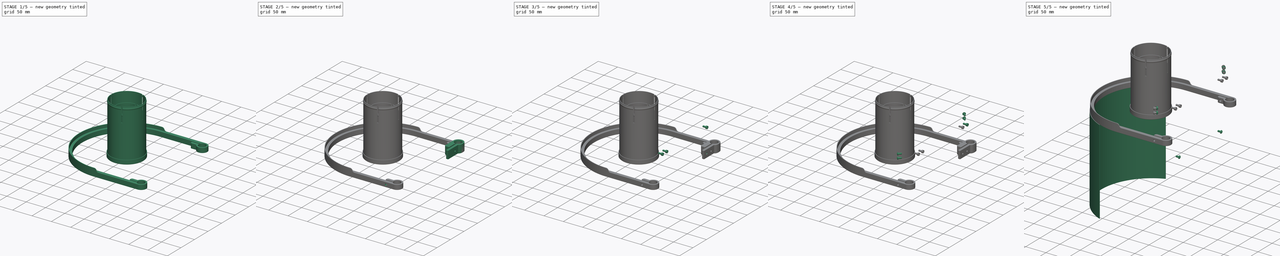
[diagram: build sequence overview — one tinted view per stage of 5, left to right]
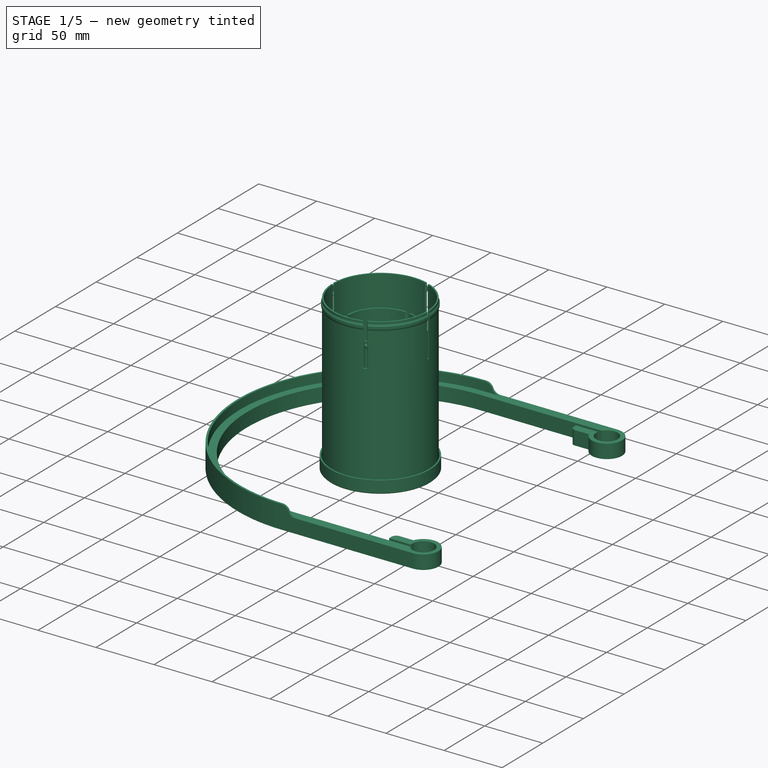
[diagram: stage 1 of 5 — iso view after this stage's code; geometry added in this stage tinted green]
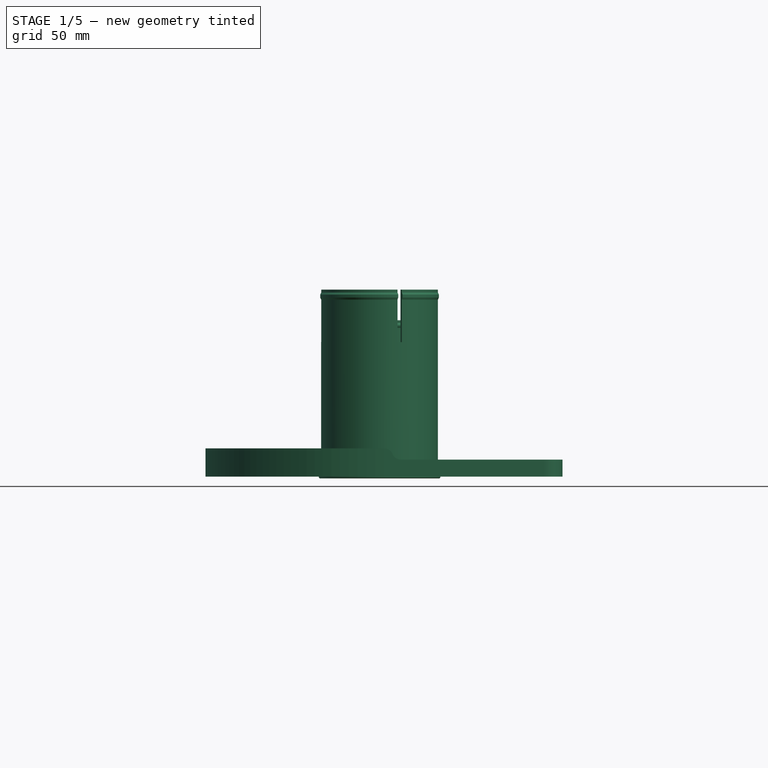
[diagram: stage 1 of 5 — front view after this stage's code; geometry added in this stage tinted green]
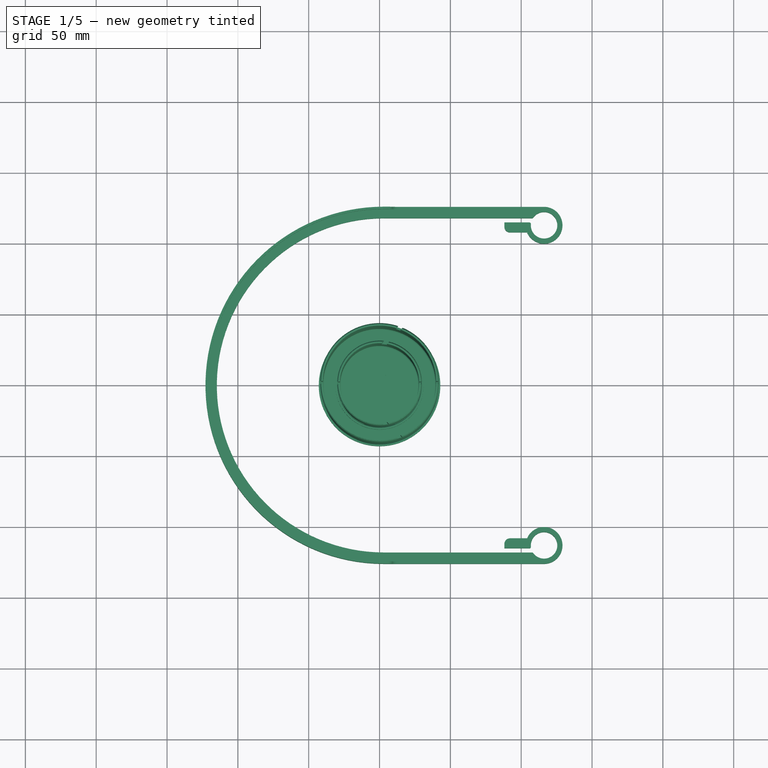
[diagram: stage 1 of 5 — top view after this stage's code; geometry added in this stage tinted green]
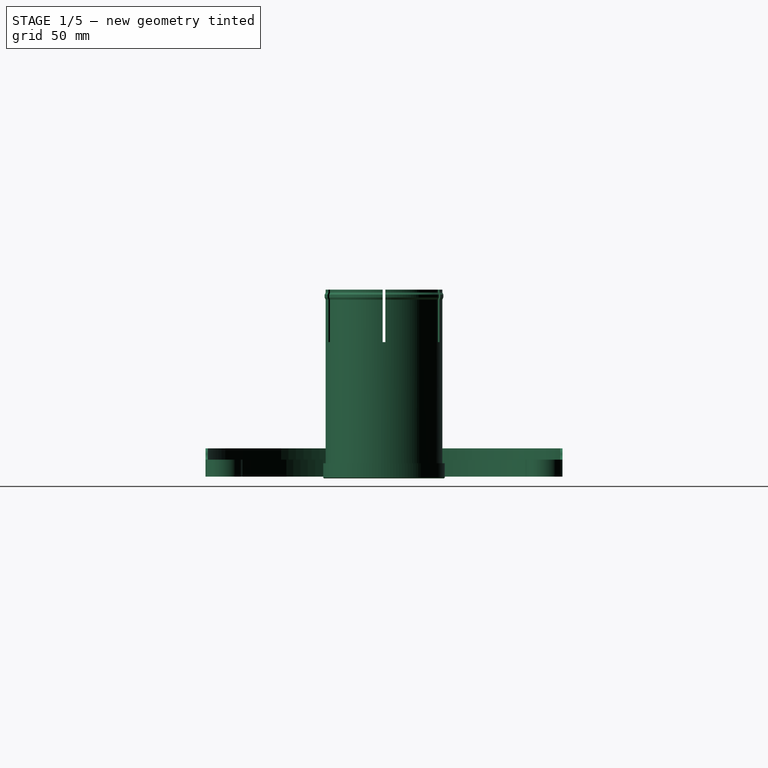
[diagram: stage 1 of 5 — right view after this stage's code; geometry added in this stage tinted green]
FCSTD DOCUMENT  (FreeCAD 0.21RUnknown)
Label: Secondary
License: All rights reserved
LicenseURL: http://en.wikipedia.org/wiki/All_rights_reserved
objects: PartDesign::CoordinateSystem×29, Sketcher::SketchObject×28, Part::FeaturePython×26, App::Link×24, PartDesign::Body×10, PartDesign::Pad×8, App::DocumentObjectGroup×7, PartDesign::ShapeBinder×7, PartDesign::Hole×6, PartDesign::Pocket×6, PartDesign::Plane×5, PartDesign::Revolution×4, PartDesign::Chamfer×3, PartDesign::Line×2, PartDesign::Groove×2, PartDesign::SubShapeBinder×1, PartDesign::Mirrored×1, App::FeaturePython×1, App::Part×1, Part::Extrusion×1
note: 168 computed .brp shape members not serialized (recipe doc carries the construction recipe); baked Part::Feature solids carry a one-line shape summary decoded from their .brp
EXTERNAL_REF file=Common.FCStd obj=Spreadsheet
EXTERNAL_REF file=Common.FCStd obj=Body022062
EXTERNAL_REF file=SecondaryMirrorCell.FCStd obj=LCS_Origin
EXTERNAL_REF file=SecondaryMirrorCell.FCStd obj=Assembly
EXTERNAL_REF file=Focuser.FCStd obj=LCS_Origin
EXTERNAL_REF file=Focuser.FCStd obj=Assembly
EXTERNAL_REF file=Focuser.FCStd obj=LCS_FocuserPlate_ZA
EXTERNAL_REF file=SecondaryMirrorCell.FCStd obj=LCS_Spider_AZ
EXTERNAL_REF file=Focuser.FCStd obj=LCS_FocuserPlate_NA
EXTERNAL_REF file=Focuser.FCStd obj=LCS_FocuserPlate_ZF
EXTERNAL_REF file=SecondaryMirrorCell.FCStd obj=LCS_Spider_FZ
EXTERNAL_REF file=Focuser.FCStd obj=LCS_FocuserPlate_NF
EXTERNAL_REF file=Common.FCStd obj=Local_CS318
EXTERNAL_REF file=Common.FCStd obj=Body022061
EXTERNAL_REF file=Common.FCStd obj=Local_CS237
EXTERNAL_REF file=Common.FCStd obj=Body005

FEATURE [PartDesign::CoordinateSystem] Local_CS270  label="LCS_LowerSideNut"
  AttacherType = Attacher::AttachEngine3D
  MapMode = 11
  Placement = pos=(118.125,74,10) rot=(0.57735,0.57735,-0.57735;4.18879rad)
  Support = -> [Hole054]
FEATURE [PartDesign::CoordinateSystem] Local_CS271  label="LCS_LowerSideBolt"
  AttacherType = Attacher::AttachEngine3D
  AttachmentOffset = pos=(0,0,1) rot=(0,0,1;0rad)
  MapMode = 11
  Placement = pos=(125.125,74,10) rot=(0.57735,-0.57735,0.57735;4.18879rad)
  Support = -> [Hole054]
  expr: .AttachmentOffset.Base.z = <<Common>>#<<Parameters>>.sec_spthick
FEATURE [PartDesign::CoordinateSystem] Local_CS272  label="LCS_LowerClampNut"
  AttacherType = Attacher::AttachEngine3D
  MapMode = 11
  Placement = pos=(103.125,90,10) rot=(0.57735,0.57735,-0.57735;4.18879rad)
  Support = -> [Hole054]
FEATURE [PartDesign::CoordinateSystem] Local_CS273  label="LCS_LowerClampBolt"
  AttacherType = Attacher::AttachEngine3D
  AttachmentOffset = pos=(0,0,1) rot=(0,0,1;0rad)
  MapMode = 11
  Placement = pos=(125.125,90,10) rot=(0.57735,-0.57735,0.57735;4.18879rad)
  Support = -> [Hole054]
  expr: .AttachmentOffset.Base.z = <<Common>>#<<Parameters>>.sec_spthick
FEATURE [PartDesign::CoordinateSystem] Local_CS274  label="LCS_LowerClamp_SidePlate"
  AttacherType = Attacher::AttachEngine3D
  AttachmentOffset = pos=(0,0,0) rot=(0,0,1;3.14159rad)
  MapMode = 11
  Placement = pos=(124.125,90,10) rot=(-0.57735,-0.57735,-0.57735;4.18879rad)
  Support = -> [Hole054]
FEATURE [PartDesign::ShapeBinder] ShapeBinder  label="UpperArc_ShapeBinder"
  Support = -> [Binder]
  TraceSupport = false
FEATURE [Sketcher::SketchObject] Sketch297  label="UpperArc_Base_Sketch"
  ExternalGeometry = -> [ShapeBinder]
  FullyConstrained = true
  MapMode = 5
  Support = -> [XY_Plane104]
  expr: Constraints[18] = <<Common>>#<<Parameters>>.sec_fillet * 2
  expr: Constraints[19] = <<Common>>#<<Parameters>>.sec_fthick
  expr: Constraints[55] = <<Common>>#<<Parameters>>.sec_sidebolt * 4
  expr: Constraints[60] = <<Common>>#<<Parameters>>.sec_fthick
  expr: Constraints[63] = <<Common>>#<<Parameters>>.sec_toparc_width
  expr: Constraints[68] = <<Common>>#<<Parameters>>.sec_fthick
  sketch-geometry (29):
    g0: LineSegment StartX=3.125 StartY=126 StartZ=0 EndX=116.125 EndY=126 EndZ=0
    g1: LineSegment StartX=3.125 StartY=118 StartZ=0 EndX=107.692 EndY=118 EndZ=0
    g2: ArcOfCircle CenterX=116.125 CenterY=113 CenterZ=0 NormalX=0 NormalY=0 NormalZ=1 AngleXU=0 Radius=13 StartAngle=3.53638 EndAngle=7.85398
    g3: ArcOfCircle CenterX=116.125 CenterY=113 CenterZ=0 NormalX=0 NormalY=0 NormalZ=1 AngleXU=0 Radius=9.35 StartAngle=3.04482 EndAngle=8.80641
    g4: LineSegment StartX=116.125 StartY=113 StartZ=0 EndX=116.125 EndY=126 EndZ=0
    g5: LineSegment StartX=105.823 StartY=115 StartZ=0 EndX=88.125 EndY=115 EndZ=0
    g6: LineSegment StartX=88.125 StartY=115 StartZ=0 EndX=88.125 EndY=112 EndZ=0
    g7: LineSegment StartX=104.125 StartY=108 StartZ=0 EndX=92.125 EndY=108 EndZ=0
    g8: ArcOfCircle CenterX=92.125 CenterY=112 CenterZ=0 NormalX=0 NormalY=0 NormalZ=1 AngleXU=0 Radius=4 StartAngle=3.14159 EndAngle=4.71239
    g9: LineSegment StartX=88.125 StartY=112 StartZ=0 EndX=92.125 EndY=112 EndZ=0
    g10: LineSegment StartX=92.125 StartY=112 StartZ=0 EndX=92.125 EndY=108 EndZ=0
    g11: LineSegment StartX=3.125 StartY=-126 StartZ=0 EndX=3.125 EndY=126 EndZ=0
    g12: ArcOfCircle CenterX=3.125 CenterY=-3.7e-15 CenterZ=0 NormalX=0 NormalY=0 NormalZ=1 AngleXU=0 Radius=126 StartAngle=1.5708 EndAngle=4.71239
    g13: ArcOfCircle CenterX=3.125 CenterY=-3.7e-15 CenterZ=0 NormalX=0 NormalY=0 NormalZ=1 AngleXU=0 Radius=118 StartAngle=1.5708 EndAngle=4.71239
    g14: ArcOfCircle CenterX=116.125 CenterY=-113 CenterZ=0 NormalX=0 NormalY=0 NormalZ=1 AngleXU=0 Radius=9.35 StartAngle=3.75997 EndAngle=9.52155
    g15: ArcOfCircle CenterX=116.125 CenterY=-113 CenterZ=0 NormalX=0 NormalY=0 NormalZ=1 AngleXU=0 Radius=13 StartAngle=4.71239 EndAngle=9.02999
    g16: LineSegment StartX=3.125 StartY=-126 StartZ=0 EndX=116.125 EndY=-126 EndZ=0
    g17: LineSegment StartX=116.125 StartY=-126 StartZ=0 EndX=116.125 EndY=-113 EndZ=0
    g18: LineSegment StartX=3.125 StartY=-118 StartZ=0 EndX=107.692 EndY=-118 EndZ=0
    g19: LineSegment StartX=104.125 StartY=-108 StartZ=0 EndX=92.125 EndY=-108 EndZ=0
    g20: LineSegment StartX=105.823 StartY=-115 StartZ=0 EndX=88.125 EndY=-115 EndZ=0
    g21: LineSegment StartX=88.125 StartY=-115 StartZ=0 EndX=88.125 EndY=-112 EndZ=0
    g22: ArcOfCircle CenterX=92.125 CenterY=-112 CenterZ=0 NormalX=0 NormalY=0 NormalZ=1 AngleXU=0 Radius=4 StartAngle=1.5708 EndAngle=3.14159
    g23: LineSegment StartX=88.125 StartY=-112 StartZ=0 EndX=92.125 EndY=-112 EndZ=0
    g24: LineSegment StartX=92.125 StartY=-108 StartZ=0 EndX=92.125 EndY=-112 EndZ=0
    g25: ArcOfCircle CenterX=107.692 CenterY=119 CenterZ=0 NormalX=0 NormalY=0 NormalZ=1 AngleXU=0 Radius=1 StartAngle=4.71239 EndAngle=5.66481
    g26: ArcOfCircle CenterX=105.823 CenterY=114 CenterZ=0 NormalX=0 NormalY=0 NormalZ=1 AngleXU=0 Radius=1 StartAngle=6.18642 EndAngle=7.85398
    g27: ArcOfCircle CenterX=105.823 CenterY=-114 CenterZ=0 NormalX=0 NormalY=0 NormalZ=1 AngleXU=0 Radius=1 StartAngle=4.71239 EndAngle=6.37995
    g28: ArcOfCircle CenterX=107.692 CenterY=-119 CenterZ=0 NormalX=0 NormalY=0 NormalZ=1 AngleXU=0 Radius=1 StartAngle=0.618373 EndAngle=1.5708
  constraints (78):
    c: Horizontal(g0)
    c: Horizontal(g1)
    c: Coincident(g3,g2)
    c: Coincident(g4,g2)
    c: Vertical(g4)
    c: Horizontal(g5)
    c: Coincident(g6,g5)
    c: Vertical(g6)
    c: Coincident(g7,g2)
    c: Horizontal(g7)
    c: Coincident(g8,g6)
    c: Coincident(g8,g7)
    c: Coincident(g9,g6)
    c: Coincident(g9,g8)
    c: Coincident(g10,g8)
    c: Coincident(g10,g7)
    c: Vertical(g10)
    c: Horizontal(g9)
    c: Radius(g8) = 4
    c: DistanceY(g6,g6) = 3
    c: Coincident(g4,g0)
    c: Coincident(g2,g0)
    c: Vertical(g11)
    c: Coincident(g11,g0)
    c: PointOnObject(g1,g11)
    c: Coincident(g12,g0)
    c: Coincident(g13,g1)
    c: Coincident(g13,g12)
    c: PointOnObject(g12,g11)
    c: Coincident(g11,g12)
    c: PointOnObject(g13,g11)
    c: Coincident(g15,g14)
    c: Coincident(g16,g12)
    c: Horizontal(g16)
    c: Coincident(g15,g16)
    c: Coincident(g17,g15)
    c: Coincident(g17,g14)
    c: Coincident(g18,g13)
    c: Horizontal(g18)
    c: Coincident(g19,g15)
    c: Horizontal(g19)
    c: Horizontal(g20)
    c: Coincident(g21,g20)
    c: Vertical(g21)
    c: Coincident(g22,g21)
    c: Coincident(g22,g19)
    c: Equal(g8,g22)
    c: Equal(g21,g6)
    c: Equal(g20,g5)
    c: Coincident(g23,g21)
    c: Coincident(g23,g22)
    c: Coincident(g24,g19)
    c: Coincident(g24,g22)
    c: Vertical(g24)
    c: Horizontal(g23)
    c: DistanceX(g6,g2) = 16
    c: Tangent(g3,g25) = 1.5708
    c: Tangent(g1,g25) = -1.5708
    c: Tangent(g5,g26) = -1.5708
    c: Tangent(g3,g26) = 1.5708
    c: DistanceY(g5,g1) = 3
    c: Equal(g26,g25)
    c: Radius(g26) = 1
    c: DistanceY(g1,g0) = 8
    c: Tangent(g20,g27) = 1.5708
    c: Tangent(g14,g27) = 1.5708
    c: Tangent(g18,g28) = 1.5708
    c: Tangent(g14,g28) = 1.5708
    c: DistanceY(g18,g20) = 3
    c: Equal(g27,g28)
    c: Equal(g27,g26)
    c: Coincident(g12,g-3)
    c: Coincident(g2,g-5)
    c: PointOnObject(g3,g-4)
    c: PointOnObject(g0,g-5)
    c: PointOnObject(g14,g-6)
    c: PointOnObject(g15,g-7)
    c: Coincident(g14,g-7)
FEATURE [Sketcher::SketchObject] Sketch298  label="UpperArc_ClampHole_Sketch"
  ExternalGeometry = -> [Sketch297]
  FullyConstrained = true
  MapMode = 5
  Placement = pos=(0,108,0) rot=(1,0,0;1.5708rad)
  expr: Constraints[0] = <<Common>>#<<Parameters>>.sec_sidebolt * 1.1
  expr: Constraints[1] = <<Common>>#<<Parameters>>.sec_toparc_height / 2
  expr: Constraints[2] = <<Common>>#<<Parameters>>.sec_sidebolt * 2
  sketch-geometry (1):
    g0: Circle CenterX=96.125 CenterY=6 CenterZ=0 NormalX=0 NormalY=0 NormalZ=1 AngleXU=0 Radius=2.2
  constraints (3):
    c: Diameter(g0) = 4.4
    c: DistanceY(g0) = 6
    c: DistanceX(g-3,g0) = 8
FEATURE [Sketcher::SketchObject] Sketch299  label="UpperArc_Tab_Sketch"
  AttachmentOffset = pos=(0,0,12) rot=(0,0,1;0rad)
  ExternalGeometry = -> [ShapeBinder]
  FullyConstrained = true
  MapMode = 5
  Placement = pos=(0,0,12) rot=(0,0,1;0rad)
  Support = -> [XY_Plane104]
  expr: .AttachmentOffset.Base.z = <<Common>>#<<Parameters>>.sec_toparc_height
  expr: Constraints[9] = <<Common>>#<<Parameters>>.sec_sidebolt * 3
  sketch-geometry (10):
    g0: ArcOfCircle CenterX=3.125 CenterY=-3.7e-15 CenterZ=0 NormalX=0 NormalY=0 NormalZ=1 AngleXU=0 Radius=126 StartAngle=1.5708 EndAngle=4.71239
    g1: ArcOfCircle CenterX=3.125 CenterY=-3.7e-15 CenterZ=0 NormalX=0 NormalY=0 NormalZ=1 AngleXU=0 Radius=124.4 StartAngle=1.5708 EndAngle=4.71239
    g2: LineSegment StartX=3.125 StartY=126 StartZ=0 EndX=15.125 EndY=126 EndZ=0
    g3: LineSegment StartX=15.125 StartY=126 StartZ=0 EndX=15.125 EndY=124.4 EndZ=0
    g4: LineSegment StartX=15.125 StartY=124.4 StartZ=0 EndX=3.125 EndY=124.4 EndZ=0
    g5: GeomPoint X=-122.875 Y=0 Z=0
    g6: LineSegment StartX=3.125 StartY=126 StartZ=0 EndX=3.125 EndY=-126 EndZ=0
    g7: LineSegment StartX=3.125 StartY=-124.4 StartZ=0 EndX=15.125 EndY=-124.4 EndZ=0
    g8: LineSegment StartX=15.125 StartY=-124.4 StartZ=0 EndX=15.125 EndY=-126 EndZ=0
    g9: LineSegment StartX=15.125 StartY=-126 StartZ=0 EndX=3.125 EndY=-126 EndZ=0
  constraints (28):
    c: Coincident(g1,g0)
    c: DistanceY(g1,g0) = 1.6
    c: Coincident(g2,g0)
    c: Horizontal(g2)
    c: Coincident(g3,g2)
    c: Vertical(g3)
    c: Coincident(g4,g3)
    c: Coincident(g4,g1)
    c: Horizontal(g4)
    c: DistanceX(g2,g2) = 12
    c: PointOnObject(g5,g-1)
    c: PointOnObject(g5,g0)
    c: Coincident(g6,g0)
    c: Vertical(g6)
    c: PointOnObject(g1,g6)
    c: PointOnObject(g1,g6)
    c: Coincident(g0,g6)
    c: PointOnObject(g0,g6)
    c: Coincident(g7,g1)
    c: Horizontal(g7)
    c: Coincident(g8,g7)
    c: Vertical(g8)
    c: Coincident(g9,g8)
    c: Coincident(g9,g0)
    c: Horizontal(g9)
    c: Equal(g7,g4)
    c: Coincident(g0,g-4)
    c: PointOnObject(g5,g-3)
FEATURE [Sketcher::SketchObject] Sketch300  label="UpperArc_Tabcurve_Sketch"
  FullyConstrained = true
  MapMode = 5
  Placement = pos=(0,0,0) rot=(1,0,0;1.5708rad)
  Support = -> [XZ_Plane105]
  expr: Constraints[23] = <<Common>>#<<Parameters>>.sec_offset_x
  expr: Constraints[24] = <<Common>>#<<Parameters>>.sec_stalkheight
  expr: Constraints[25] = <<Common>>#<<Parameters>>.sec_sidebolt * 3
  expr: Constraints[26] = <<Common>>#<<Parameters>>.sec_toparc_height
  sketch-geometry (10):
    g0: ArcOfCircle CenterX=3.125 CenterY=13.5 CenterZ=0 NormalX=0 NormalY=0 NormalZ=1 AngleXU=0 Radius=6.5 StartAngle=0.394791 EndAngle=1.5708
    g1: ArcOfCircle CenterX=15.125 CenterY=18.5 CenterZ=0 NormalX=0 NormalY=0 NormalZ=1 AngleXU=0 Radius=6.5 StartAngle=3.53638 EndAngle=4.71239
    g2: LineSegment StartX=3.125 StartY=13.5 StartZ=0 EndX=15.125 EndY=18.5 EndZ=0
    g3: LineSegment StartX=3.125 StartY=20 StartZ=0 EndX=3.125 EndY=21 EndZ=0
    g4: LineSegment StartX=3.125 StartY=21 StartZ=0 EndX=15.125 EndY=21 EndZ=0
    g5: LineSegment StartX=15.125 StartY=21 StartZ=0 EndX=15.125 EndY=12 EndZ=0
    g6: LineSegment StartX=3.125 StartY=0 StartZ=0 EndX=3.125 EndY=20 EndZ=0
    g7: LineSegment StartX=0 StartY=12 StartZ=0 EndX=15.125 EndY=12 EndZ=0
    g8: LineSegment StartX=15.125 StartY=12 StartZ=0 EndX=15.125 EndY=20 EndZ=0
    g9: LineSegment StartX=15.125 StartY=20 StartZ=0 EndX=3.125 EndY=20 EndZ=0
  constraints (30):
    c: Coincident(g1,g0)
    c: Equal(g1,g0)
    c: Coincident(g2,g0)
    c: Coincident(g2,g1)
    c: PointOnObject(g0,g2)
    c: Coincident(g3,g0)
    c: Vertical(g3)
    c: Coincident(g4,g3)
    c: Horizontal(g4)
    c: Coincident(g5,g4)
    c: Vertical(g5)
    c: DistanceY(g3,g3) = 1
    c: PointOnObject(g6,g-1)
    c: Coincident(g6,g0)
    c: Vertical(g6)
    c: PointOnObject(g7,g-2)
    c: Coincident(g7,g1)
    c: Horizontal(g7)
    c: Coincident(g8,g1)
    c: Vertical(g8)
    c: Coincident(g9,g8)
    c: Coincident(g9,g0)
    c: Horizontal(g9)
    c: DistanceX(g6) = 3.125
    c: DistanceY(g0) = 20
    c: DistanceX(g9,g9) = 12
    c: DistanceY(g7) = 12
    c: PointOnObject(g0,g6)
    c: PointOnObject(g1,g8)
    c: Coincident(g5,g1)
FEATURE [Sketcher::SketchObject] Sketch301  label="UpperArc_Cut"
  ExternalGeometry = -> [ShapeBinder]
  FullyConstrained = true
  MapMode = 5
  Support = -> [XY_Plane104]
  expr: Constraints[17] = <<Common>>#<<Parameters>>.sec_toparc_width
  expr: Constraints[24] = <<Common>>#<<Parameters>>.sec_sidebolt * 4
  expr: Constraints[25] = <<Common>>#<<Parameters>>.sec_toparc_width / 2
  sketch-geometry (14):
    g0: LineSegment StartX=-78.2845 StartY=-101.403 StartZ=0 EndX=-73.2762 EndY=-95.1647 EndZ=0
    g1: LineSegment StartX=-78.2845 StartY=101.403 StartZ=0 EndX=-73.2762 EndY=95.1647 EndZ=0
    g2: LineSegment StartX=-60.1698 StartY=104.342 StartZ=0 EndX=3.125 EndY=0 EndZ=0
    g3: LineSegment StartX=-60.1698 StartY=-104.342 StartZ=0 EndX=3.125 EndY=0 EndZ=0
    g4: ArcOfCircle CenterX=3.125 CenterY=0 CenterZ=0 NormalX=0 NormalY=0 NormalZ=1 AngleXU=0 Radius=122.039 StartAngle=2.11606 EndAngle=2.24726
    g5: ArcOfCircle CenterX=3.125 CenterY=0 CenterZ=0 NormalX=0 NormalY=0 NormalZ=1 AngleXU=0 Radius=122.039 StartAngle=4.03592 EndAngle=4.16712
    g6: ArcOfCircle CenterX=3.125 CenterY=0 CenterZ=0 NormalX=0 NormalY=0 NormalZ=1 AngleXU=0 Radius=126.039 StartAngle=1.59559 EndAngle=4.68759
    g7: LineSegment StartX=-4.9e-15 StartY=126 StartZ=0 EndX=116.125 EndY=126 EndZ=0
    g8: LineSegment StartX=116.125 StartY=126 StartZ=0 EndX=116.125 EndY=113 EndZ=0
    g9: LineSegment StartX=-73.2762 StartY=95.1647 StartZ=0 EndX=-62.8363 EndY=94.2025 EndZ=0
    g10: LineSegment StartX=-60.1698 StartY=104.342 StartZ=0 EndX=-62.8363 EndY=94.2025 EndZ=0
    g11: GeomPoint X=-75.7804 Y=98.2838 Z=0
    g12: LineSegment StartX=-73.2762 StartY=-95.1647 StartZ=0 EndX=-62.8363 EndY=-94.2025 EndZ=0
    g13: LineSegment StartX=-62.8363 StartY=-94.2025 StartZ=0 EndX=-60.1698 EndY=-104.342 EndZ=0
  constraints (37):
    c: Coincident(g2,g3)
    c: Coincident(g4,g2)
    c: Coincident(g4,g2)
    c: Coincident(g4,g1)
    c: Coincident(g5,g2)
    c: Coincident(g5,g3)
    c: Coincident(g5,g0)
    c: Coincident(g6,g2)
    c: PointOnObject(g7,g-2)
    c: Horizontal(g7)
    c: Coincident(g6,g7)
    c: Coincident(g8,g7)
    c: Vertical(g8)
    c: PointOnObject(g6,g-2)
    c: PointOnObject(g2,g1)
    c: PointOnObject(g2,g0)
    c: Equal(g0,g1)
    c: Distance(g1) = 8
    c: Coincident(g9,g1)
    c: Coincident(g10,g2)
    c: Coincident(g10,g9)
    c: Equal(g9,g10)
    c: PointOnObject(g11,g1)
    c: PointOnObject(g11,g6)
    c: Distance(g1,g2) = 16
    c: Distance(g11,g1) = 4
    c: Coincident(g12,g0)
    c: Coincident(g13,g12)
    c: Coincident(g13,g3)
    c: Equal(g13,g12)
    c: Equal(g13,g9)
    c: Equal(g2,g3)
    c: PointOnObject(g7,g-5)
    c: Coincident(g9,g-3)
    c: Coincident(g12,g-4)
    c: Coincident(g2,g-4)
    c: Coincident(g8,g-5)
FEATURE [PartDesign::Pad] Pad074  label="UpperArc_Base"
  Direction = (0,0,1)
  Length = 12
  Length2 = 10
  Profile = -> Sketch297
  ReferenceAxis = -> Sketch297 [N_Axis]
  Type = 0
  expr: Length = <<Common>>#<<Parameters>>.sec_toparc_height
FEATURE [PartDesign::Pad] Pad075  label="UpperArc_Tab"
  BaseFeature = -> Pad074
  Direction = (0,0,1)
  Length = 8
  Length2 = 10
  Profile = -> Sketch299
  ReferenceAxis = -> Sketch299 [N_Axis]
  Type = 0
  expr: Length = <<Common>>#<<Parameters>>.sec_stalkheight - <<Common>>#<<Parameters>>.sec_toparc_height
FEATURE [PartDesign::Pocket] Pocket001  label="UpperArc_Tabcurve"
  BaseFeature = -> Pad075
  Direction = (0,1,2e-16)
  Length = 5
  Length2 = 5
  Midplane = true
  Profile = -> Sketch300
  ReferenceAxis = -> Sketch300 [N_Axis]
  Type = 1
FEATURE [App::DocumentObjectGroup] GrExplode_Slice  label="Exploded Slice"
  Group = -> [Slice_child0,Slice_child1,Slice_child2]
FEATURE [PartDesign::ShapeBinder] ShapeBinder010  label="MirrorCover500_ShapeBinder_Spider"
  Support = -> [Binder]
  TraceSupport = false
FEATURE [Sketcher::SketchObject] Sketch302
  FullyConstrained = true
  MapMode = 5
  Placement = pos=(0,0,0) rot=(1,0,0;1.5708rad)
  Support = -> [XZ_Plane107]
  sketch-geometry (13):
    g0: LineSegment StartX=28 StartY=0.6 StartZ=0 EndX=28 EndY=110.443 EndZ=0
    g1: LineSegment StartX=28 StartY=110.443 StartZ=0 EndX=29.2 EndY=110.443 EndZ=0
    g2: LineSegment StartX=0 StartY=-1.2 StartZ=0 EndX=0 EndY=0 EndZ=0
    g3: LineSegment StartX=29.2 StartY=110.443 StartZ=0 EndX=29.2 EndY=108.443 EndZ=0
    g4: LineSegment StartX=29.2 StartY=105 StartZ=0 EndX=29.2 EndY=-0.6 EndZ=0
    g5: LineSegment StartX=0 StartY=0 StartZ=0 EndX=27.4 EndY=0 EndZ=0
    g6: LineSegment StartX=27.4 StartY=0 StartZ=0 EndX=28 EndY=0.6 EndZ=0
    g7: LineSegment StartX=29.2 StartY=-0.6 StartZ=0 EndX=28.6 EndY=-1.2 EndZ=0
    g8: LineSegment StartX=28.6 StartY=-1.2 StartZ=0 EndX=0 EndY=-1.2 EndZ=0
    g9: LineSegment StartX=29.2 StartY=108.443 StartZ=0 EndX=29.6454 EndY=107.672 EndZ=0
    g10: LineSegment StartX=29.2 StartY=105 StartZ=0 EndX=29.6454 EndY=105.772 EndZ=0
    g11: ArcOfCircle CenterX=28 CenterY=106.722 CenterZ=0 NormalX=0 NormalY=0 NormalZ=1 AngleXU=0 Radius=1.9 StartAngle=5.75959 EndAngle=6.80678
    g12: LineSegment StartX=28 StartY=106.722 StartZ=0 EndX=29.9 EndY=106.722 EndZ=0
  constraints (38):
    c: Coincident(g5,g-1)
    c: Coincident(g0,g6)
    c: Vertical(g0)
    c: Coincident(g1,g0)
    c: Horizontal(g1)
    c: Coincident(g3,g1)
    c: Coincident(g7,g4)
    c: Coincident(g2,g8)
    c: Coincident(g2,g5)
    c: Vertical(g2)
    c: Equal(g2,g1)
    c: DistanceY(g2,g2) = 1.2
    c: DistanceX(g0) = 28
    c: Vertical(g3)
    c: Vertical(g4)
    c: DistanceY(g3,g3) = 2
    c: PointOnObject(g4,g3)
    c: DistanceY(g4) = 105
    c: Coincident(g5,g6)
    c: Horizontal(g5)
    c: Coincident(g7,g8)
    c: Horizontal(g8)
    c: Angle(g0,g6) = 2.35619
    c: Parallel(g7,g6)
    c: Equal(g7,g6)
    c: DistanceY(g7,g4) = 0.6
    c: Coincident(g9,g3)
    c: Coincident(g10,g4)
    c: Angle(g4,g10) = 2.61799
    c: Angle(g9,g3) = 2.61799
    c: PointOnObject(g11,g0)
    c: Coincident(g12,g11)
    c: PointOnObject(g12,g11)
    c: Horizontal(g12)
    c: DistanceX(g1,g12) = 0.7
    c: Tangent(g11,g9) = 1.5708
    c: Tangent(g11,g10) = -1.5708
    c: DistanceX(g12) = 29.9
FEATURE [PartDesign::Revolution] Revolution
  Angle = 360
  Axis = (1e-16,1e-16,1)
  Base = (0,0,0)
  Placement = pos=(0,0,0) rot=(1,0,0;1.5708rad)
  Profile = -> Sketch302
  ReferenceAxis = -> Z_Axis107
FEATURE [Sketcher::SketchObject] Sketch303
  AttachmentOffset = pos=(0,0,75) rot=(0,0,1;0rad)
  ExternalGeometry = -> [ShapeBinder010,Revolution]
  FullyConstrained = true
  MapMode = 5
  Placement = pos=(0,0,75) rot=(0,0,1;0rad)
  Support = -> [XY_Plane106]
  sketch-geometry (20):
    g0: LineSegment StartX=5.49564 StartY=32.0691 StartZ=0 EndX=7.61696 EndY=29.9478 EndZ=0
    g1: LineSegment StartX=7.61696 StartY=29.9478 StartZ=0 EndX=3.51322 EndY=25.8441 EndZ=0
    g2: LineSegment StartX=3.51322 StartY=25.8441 StartZ=0 EndX=1.3919 EndY=27.9654 EndZ=0
    g3: LineSegment StartX=1.3919 StartY=27.9654 StartZ=0 EndX=5.49564 EndY=32.0691 EndZ=0
    g4: LineSegment StartX=5.49564 StartY=-32.0691 StartZ=0 EndX=7.61696 EndY=-29.9478 EndZ=0
    g5: LineSegment StartX=7.61696 StartY=-29.9478 StartZ=0 EndX=3.51322 EndY=-25.8441 EndZ=0
    g6: LineSegment StartX=3.51322 StartY=-25.8441 StartZ=0 EndX=1.3919 EndY=-27.9654 EndZ=0
    g7: LineSegment StartX=1.3919 StartY=-27.9654 StartZ=0 EndX=5.49564 EndY=-32.0691 EndZ=0
    g8: LineSegment StartX=2.51777 StartY=29.0913 StartZ=0 EndX=4.63909 EndY=26.9699 EndZ=0
    g9: GeomPoint X=3.93198 Y=27.677 Z=0
    g10: LineSegment StartX=2.51777 StartY=-29.0913 StartZ=0 EndX=4.63909 EndY=-26.9699 EndZ=0
    g11: GeomPoint X=3.93198 Y=-27.677 Z=0
    g12: LineSegment StartX=-31.2 StartY=1 StartZ=0 EndX=31.2 EndY=1 EndZ=0
    g13: LineSegment StartX=31.2 StartY=1 StartZ=0 EndX=31.2 EndY=-1 EndZ=0
    g14: LineSegment StartX=31.2 StartY=-1 StartZ=0 EndX=-31.2 EndY=-1 EndZ=0
    g15: LineSegment StartX=-31.2 StartY=-1 StartZ=0 EndX=-31.2 EndY=1 EndZ=0
    g16: GeomPoint X=-29.2 Y=0 Z=0
    g17: GeomPoint X=29.2 Y=0 Z=0
    g18: GeomPoint X=6.20275 Y=28.5336 Z=0
    g19: GeomPoint X=6.20275 Y=-28.5336 Z=0
  constraints (55):
    c: Coincident(g0,g1)
    c: Coincident(g1,g2)
    c: Coincident(g2,g3)
    c: Coincident(g3,g0)
    c: Coincident(g4,g5)
    c: Coincident(g5,g6)
    c: Coincident(g6,g7)
    c: Coincident(g7,g4)
    c: Perpendicular(g-3,g0)
    c: Perpendicular(g-3,g2)
    c: Parallel(g1,g3)
    c: Parallel(g-3,g3)
    c: Parallel(g5,g7)
    c: Parallel(g7,g-4)
    c: Parallel(g4,g6)
    c: PointOnObject(g8,g3)
    c: PointOnObject(g8,g1)
    c: Perpendicular(g-3,g8)
    c: PointOnObject(g9,g8)
    c: PointOnObject(g9,g-3)
    c: Distance(g8,g9) = 1
    c: Distance(g8,g9) = 2
    c: Perpendicular(g-4,g6)
    c: PointOnObject(g10,g5)
    c: Perpendicular(g-4,g10)
    c: PointOnObject(g11,g10)
    c: PointOnObject(g11,g-4)
    c: Distance(g10,g11) = 1
    c: Distance(g10,g11) = 2
    c: Coincident(g12,g13)
    c: Coincident(g13,g14)
    c: Coincident(g14,g15)
    c: Coincident(g15,g12)
    c: Horizontal(g12)
    c: Horizontal(g14)
    c: Vertical(g13)
    c: Symmetric(g12,g14,g-1)
    c: DistanceY(g13,g13) = 2
    c: PointOnObject(g16,g-6)
    c: PointOnObject(g17,g-1)
    c: PointOnObject(g17,g-6)
    c: DistanceX(g17,g12) = 2
    c: DistanceX(g12,g16) = 2
    c: PointOnObject(g16,g-1)
    c: PointOnObject(g2,g-5)
    c: PointOnObject(g8,g-6)
    c: PointOnObject(g18,g-6)
    c: PointOnObject(g18,g1)
    c: Distance(g18,g0) = 2
    c: PointOnObject(g6,g-5)
    c: PointOnObject(g10,g7)
    c: PointOnObject(g10,g-6)
    c: PointOnObject(g19,g5)
    c: PointOnObject(g19,g-6)
    c: Distance(g19,g4) = 2
FEATURE [PartDesign::Pocket] Pocket002
  BaseFeature = -> Revolution
  Direction = (0,0,-1)
  Length = 5
  Length2 = 5
  Placement = pos=(0,0,0) rot=(1,0,0;1.5708rad)
  Profile = -> Sketch303
  ReferenceAxis = -> Sketch303 [N_Axis]
  Reversed = true
  Type = 1
FEATURE [PartDesign::Body] Body022053  label="MirrorCover_500"
  Group = -> [ShapeBinder010,Sketch302,Revolution,Sketch303,Pocket002]
  Origin = -> Origin108
  Tip = -> Pocket002
FEATURE [Sketcher::SketchObject] Sketch304
  FullyConstrained = true
  MapMode = 5
  Placement = pos=(0,0,0) rot=(1,0,0;1.5708rad)
  Support = -> [XZ_Plane108]
  sketch-geometry (12):
    g0: LineSegment StartX=29.9 StartY=8.20854 StartZ=0 EndX=31.1 EndY=8.20854 EndZ=0
    g1: LineSegment StartX=31.1 StartY=8.20854 StartZ=0 EndX=31.1 EndY=-0.6 EndZ=0
    g2: LineSegment StartX=8.5 StartY=-1.2 StartZ=0 EndX=8.5 EndY=0 EndZ=0
    g3: LineSegment StartX=29.7565 StartY=8.06504 StartZ=0 EndX=29.9 EndY=8.20854 EndZ=0
    g4: LineSegment StartX=29.9 StartY=0.6 StartZ=0 EndX=29.9 EndY=5 EndZ=0
    g5: LineSegment StartX=29.9 StartY=5 StartZ=0 EndX=29.4546 EndY=5.77154 EndZ=0
    g6: LineSegment StartX=8.5 StartY=0 StartZ=0 EndX=29.3 EndY=0 EndZ=0
    g7: LineSegment StartX=29.3 StartY=0 StartZ=0 EndX=29.9 EndY=0.6 EndZ=0
    g8: LineSegment StartX=31.1 StartY=-0.6 StartZ=0 EndX=30.5 EndY=-1.2 EndZ=0
    g9: LineSegment StartX=30.5 StartY=-1.2 StartZ=0 EndX=8.5 EndY=-1.2 EndZ=0
    g10: LineSegment StartX=31.1 StartY=6.72154 StartZ=0 EndX=29.2 EndY=6.72154 EndZ=0
    g11: ArcOfCircle CenterX=31.1 CenterY=6.72154 CenterZ=0 NormalX=0 NormalY=0 NormalZ=1 AngleXU=0 Radius=1.9 StartAngle=2.35619 EndAngle=3.66519
  constraints (35):
    c: PointOnObject(g6,g-1)
    c: Coincident(g4,g7)
    c: Coincident(g0,g3)
    c: Coincident(g1,g0)
    c: Vertical(g1)
    c: Coincident(g8,g1)
    c: Coincident(g2,g9)
    c: Coincident(g2,g6)
    c: Horizontal(g0)
    c: Vertical(g2)
    c: Equal(g2,g0)
    c: DistanceY(g2,g2) = 1.2
    c: DistanceX(g9) = 8.5
    c: Coincident(g4,g5)
    c: Vertical(g4)
    c: PointOnObject(g0,g4)
    c: Coincident(g6,g7)
    c: Horizontal(g6)
    c: Coincident(g8,g9)
    c: Horizontal(g9)
    c: DistanceY(g6,g4) = 5
    c: Equal(g8,g7)
    c: Parallel(g8,g7)
    c: Angle(g4,g7) = 2.35619
    c: DistanceY(g8,g1) = 0.6
    c: PointOnObject(g10,g1)
    c: Horizontal(g10)
    c: Coincident(g11,g10)
    c: PointOnObject(g10,g11)
    c: Tangent(g11,g5) = 1.5708
    c: DistanceX(g10) = 29.2
    c: Tangent(g11,g3) = 1.5708
    c: Angle(g3,g0) = 2.35619
    c: DistanceX(g10,g0) = 0.7
    c: Angle(g5,g4) = 2.61799
FEATURE [PartDesign::Revolution] Revolution001
  Angle = 360
  Axis = (1e-16,1e-16,1)
  Base = (0,0,0)
  Placement = pos=(0,0,0) rot=(1,0,0;1.5708rad)
  Profile = -> Sketch304
  ReferenceAxis = -> Z_Axis108
  Reversed = true
FEATURE [PartDesign::ShapeBinder] ShapeBinder011  label="MirrorCover625_ShapeBinder_Spider"
  Support = -> [Binder]
  TraceSupport = false
FEATURE [Sketcher::SketchObject] Sketch305
  FullyConstrained = true
  MapMode = 5
  Placement = pos=(0,0,0) rot=(1,0,0;1.5708rad)
  Support = -> [XZ_Plane107]
  sketch-geometry (12):
    g0: LineSegment StartX=40 StartY=0.6 StartZ=0 EndX=40 EndY=132 EndZ=0
    g1: LineSegment StartX=40 StartY=132 StartZ=0 EndX=41.2 EndY=132 EndZ=0
    g2: LineSegment StartX=0 StartY=-1.2 StartZ=0 EndX=0 EndY=0 EndZ=0
    g3: LineSegment StartX=41.2 StartY=132 StartZ=0 EndX=41.2 EndY=130 EndZ=0
    g4: LineSegment StartX=41.2 StartY=130 StartZ=0 EndX=41.9 EndY=128.5 EndZ=0
    g5: LineSegment StartX=41.9 StartY=128.5 StartZ=0 EndX=41.9 EndY=126.5 EndZ=0
    g6: LineSegment StartX=41.9 StartY=126.5 StartZ=0 EndX=41.2 EndY=125 EndZ=0
    g7: LineSegment StartX=41.2 StartY=125 StartZ=0 EndX=41.2 EndY=-0.6 EndZ=0
    g8: LineSegment StartX=0 StartY=0 StartZ=0 EndX=39.4 EndY=0 EndZ=0
    g9: LineSegment StartX=39.4 StartY=0 StartZ=0 EndX=40 EndY=0.6 EndZ=0
    g10: LineSegment StartX=41.2 StartY=-0.6 StartZ=0 EndX=40.6 EndY=-1.2 EndZ=0
    g11: LineSegment StartX=40.6 StartY=-1.2 StartZ=0 EndX=0 EndY=-1.2 EndZ=0
  constraints (36):
    c: Coincident(g8,g-1)
    c: Coincident(g0,g9)
    c: Vertical(g0)
    c: Coincident(g1,g0)
    c: Horizontal(g1)
    c: Coincident(g3,g1)
    c: Coincident(g10,g7)
    c: Coincident(g2,g11)
    c: Coincident(g2,g8)
    c: Vertical(g2)
    c: DistanceY(g2,g2) = 1.2
    c: DistanceX(g0) = 40
    c: Coincident(g3,g4)
    c: Vertical(g3)
    c: Coincident(g4,g5)
    c: Coincident(g5,g6)
    c: Vertical(g5)
    c: Coincident(g6,g7)
    c: Vertical(g7)
    c: DistanceY(g5,g5) = 2
    c: Equal(g4,g6)
    c: DistanceY(g3,g3) = 2
    c: PointOnObject(g6,g3)
    c: DistanceX(g3,g4) = 0.7
    c: DistanceY(g6,g5) = 1.5
    c: DistanceY(g6) = 125
    c: DistanceX(g5) = 41.9
    c: Equal(g1,g2)
    c: Coincident(g8,g9)
    c: Horizontal(g8)
    c: Coincident(g10,g11)
    c: Horizontal(g11)
    c: Angle(g0,g9) = 2.35619
    c: Parallel(g10,g9)
    c: DistanceY(g10,g7) = 0.6
    c: Equal(g9,g10)
FEATURE [PartDesign::Revolution] Revolution002
  Angle = 360
  Axis = (1e-16,1e-16,1)
  Base = (0,0,0)
  Placement = pos=(0,0,0) rot=(1,0,0;1.5708rad)
  Profile = -> Sketch305
  ReferenceAxis = -> Z_Axis107
FEATURE [Sketcher::SketchObject] Sketch306
  AttachmentOffset = pos=(0,0,95) rot=(0,0,1;0rad)
  ExternalGeometry = -> [ShapeBinder011,Revolution002]
  FullyConstrained = true
  MapMode = 5
  Placement = pos=(0,0,95) rot=(0,0,1;0rad)
  Support = -> [XY_Plane106]
  sketch-geometry (18):
    g0: LineSegment StartX=14.1566 StartY=40.7301 StartZ=0 EndX=16.2779 EndY=38.6088 EndZ=0
    g1: LineSegment StartX=16.2779 StartY=38.6088 StartZ=0 EndX=13.8038 EndY=36.1347 EndZ=0
    g2: LineSegment StartX=13.8038 StartY=36.1347 StartZ=0 EndX=11.6825 EndY=38.256 EndZ=0
    g3: LineSegment StartX=11.6825 StartY=38.256 StartZ=0 EndX=14.1566 EndY=40.7301 EndZ=0
    g4: LineSegment StartX=14.1566 StartY=-40.7301 StartZ=0 EndX=16.2779 EndY=-38.6088 EndZ=0
    g5: LineSegment StartX=16.2779 StartY=-38.6088 StartZ=0 EndX=13.8038 EndY=-36.1347 EndZ=0
    g6: LineSegment StartX=13.8038 StartY=-36.1347 StartZ=0 EndX=11.6825 EndY=-38.256 EndZ=0
    g7: LineSegment StartX=11.6825 StartY=-38.256 StartZ=0 EndX=14.1566 EndY=-40.7301 EndZ=0
    g8: LineSegment StartX=13.8582 StartY=40.4317 StartZ=0 EndX=15.9795 EndY=38.3104 EndZ=0
    g9: GeomPoint X=15.2724 Y=39.0175 Z=0
    g10: LineSegment StartX=13.8582 StartY=-40.4317 StartZ=0 EndX=15.9795 EndY=-38.3104 EndZ=0
    g11: GeomPoint X=15.2724 Y=-39.0175 Z=0
    g12: LineSegment StartX=-41.9 StartY=1 StartZ=0 EndX=41.9 EndY=1 EndZ=0
    g13: LineSegment StartX=41.9 StartY=1 StartZ=0 EndX=41.9 EndY=-1 EndZ=0
    g14: LineSegment StartX=41.9 StartY=-1 StartZ=0 EndX=-41.9 EndY=-1 EndZ=0
    g15: LineSegment StartX=-41.9 StartY=-1 StartZ=0 EndX=-41.9 EndY=1 EndZ=0
    g16: GeomPoint X=-41.9 Y=0 Z=0
    g17: GeomPoint X=41.9 Y=0 Z=0
  constraints (51):
    c: Coincident(g0,g1)
    c: Coincident(g1,g2)
    c: Coincident(g2,g3)
    c: Coincident(g3,g0)
    c: Coincident(g4,g5)
    c: Coincident(g5,g6)
    c: Coincident(g6,g7)
    c: Coincident(g7,g4)
    c: Perpendicular(g-3,g0)
    c: Perpendicular(g-3,g2)
    c: Parallel(g1,g3)
    c: Parallel(g-3,g3)
    c: Parallel(g5,g7)
    c: Parallel(g7,g-4)
    c: Parallel(g4,g6)
    c: PointOnObject(g8,g3)
    c: PointOnObject(g8,g1)
    c: Perpendicular(g-3,g8)
    c: PointOnObject(g9,g8)
    c: PointOnObject(g9,g-3)
    c: Distance(g8,g9) = 1
    c: Distance(g8,g9) = 2
    c: PointOnObject(g2,g-5)
    c: Perpendicular(g-4,g6)
    c: PointOnObject(g6,g-5)
    c: PointOnObject(g10,g7)
    c: PointOnObject(g10,g5)
    c: Perpendicular(g-4,g10)
    c: PointOnObject(g11,g10)
    c: PointOnObject(g11,g-4)
    c: Distance(g10,g11) = 1
    c: Distance(g10,g11) = 2
    c: PointOnObject(g4,g-6)
    c: PointOnObject(g11,g-6)
    c: PointOnObject(g0,g-6)
    c: PointOnObject(g9,g-6)
    c: Coincident(g12,g13)
    c: Coincident(g13,g14)
    c: Coincident(g14,g15)
    c: Coincident(g15,g12)
    c: Horizontal(g12)
    c: Horizontal(g14)
    c: Vertical(g13)
    c: Symmetric(g12,g14,g-1)
    c: DistanceY(g13,g13) = 2
    c: PointOnObject(g16,g15)
    c: PointOnObject(g16,g-6)
    c: PointOnObject(g16,g-1)
    c: PointOnObject(g17,g13)
    c: PointOnObject(g17,g-1)
    c: PointOnObject(g17,g-6)
FEATURE [PartDesign::Pocket] Pocket003
  BaseFeature = -> Revolution002
  Direction = (0,0,-1)
  Length = 5
  Length2 = 5
  Placement = pos=(0,0,0) rot=(1,0,0;1.5708rad)
  Profile = -> Sketch306
  ReferenceAxis = -> Sketch306 [N_Axis]
  Reversed = true
  Type = 1
FEATURE [PartDesign::Body] Body022055  label="MirrorCover_625"
  Group = -> [ShapeBinder011,Sketch305,Revolution002,Sketch306,Pocket003]
  Origin = -> Origin110
  Placement = pos=(-3.125,0,0) rot=(0,0,1;0rad)
  Tip = -> Pocket003
  expr: .Placement.Base.x = -<<Common>>#<<Parameters>>.sec_offset_x
FEATURE [Sketcher::SketchObject] Sketch307
  FullyConstrained = true
  MapMode = 5
  Placement = pos=(0,0,0) rot=(1,0,0;1.5708rad)
  Support = -> [XZ_Plane108]
  sketch-geometry (11):
    g0: LineSegment StartX=41.7 StartY=9.5 StartZ=0 EndX=42.9 EndY=9.5 EndZ=0
    g1: LineSegment StartX=42.9 StartY=9.5 StartZ=0 EndX=42.9 EndY=-0.6 EndZ=0
    g2: LineSegment StartX=8.5 StartY=-1.2 StartZ=0 EndX=8.5 EndY=0 EndZ=0
    g3: LineSegment StartX=41.2 StartY=8.5 StartZ=0 EndX=41.7 EndY=9.5 EndZ=0
    g4: LineSegment StartX=41.2 StartY=6.5 StartZ=0 EndX=41.2 EndY=8.5 EndZ=0
    g5: LineSegment StartX=41.7 StartY=0.6 StartZ=0 EndX=41.7 EndY=5 EndZ=0
    g6: LineSegment StartX=41.7 StartY=5 StartZ=0 EndX=41.2 EndY=6.5 EndZ=0
    g7: LineSegment StartX=8.5 StartY=0 StartZ=0 EndX=41.1 EndY=0 EndZ=0
    g8: LineSegment StartX=41.1 StartY=0 StartZ=0 EndX=41.7 EndY=0.6 EndZ=0
    g9: LineSegment StartX=42.9 StartY=-0.6 StartZ=0 EndX=42.3 EndY=-1.2 EndZ=0
    g10: LineSegment StartX=42.3 StartY=-1.2 StartZ=0 EndX=8.5 EndY=-1.2 EndZ=0
  constraints (33):
    c: PointOnObject(g7,g-1)
    c: Coincident(g5,g8)
    c: Coincident(g0,g3)
    c: Coincident(g1,g0)
    c: Vertical(g1)
    c: Coincident(g9,g1)
    c: Coincident(g2,g10)
    c: Coincident(g2,g7)
    c: Horizontal(g0)
    c: Vertical(g2)
    c: DistanceY(g2,g2) = 1.2
    c: DistanceX(g10) = 8.5
    c: Coincident(g4,g3)
    c: Coincident(g6,g4)
    c: Vertical(g4)
    c: Coincident(g5,g6)
    c: Vertical(g5)
    c: DistanceY(g4,g4) = 2
    c: DistanceX(g3,g0) = 0.5
    c: PointOnObject(g0,g5)
    c: DistanceY(g3,g0) = 1
    c: DistanceY(g6,g6) = 1.5
    c: DistanceX(g4) = 41.2
    c: Equal(g0,g2)
    c: Coincident(g7,g8)
    c: Horizontal(g7)
    c: Coincident(g9,g10)
    c: Horizontal(g10)
    c: DistanceY(g7,g5) = 5
    c: Equal(g9,g8)
    c: Parallel(g8,g9)
    c: Angle(g5,g8) = 2.35619
    c: DistanceY(g9,g1) = 0.6
FEATURE [PartDesign::Revolution] Revolution003
  Angle = 360
  Axis = (1e-16,1e-16,1)
  Base = (0,0,0)
  Placement = pos=(0,0,0) rot=(1,0,0;1.5708rad)
  Profile = -> Sketch307
  ReferenceAxis = -> Z_Axis108
  Reversed = true
FEATURE [Sketcher::SketchObject] Sketch308
  AttachmentOffset = pos=(0,0,5) rot=(0,0,1;0rad)
  ExternalGeometry = -> [Revolution003]
  FullyConstrained = true
  MapMode = 5
  Placement = pos=(0,0,5) rot=(0,0,1;0rad)
  Support = -> [XY_Plane107]
  sketch-geometry (17):
    g0: ArcOfCircle CenterX=1.1e-15 CenterY=1.1e-15 CenterZ=0 NormalX=0 NormalY=0 NormalZ=1 AngleXU=0 Radius=41.7 StartAngle=0.392699 EndAngle=1.1781
    g1: LineSegment StartX=38.5258 StartY=15.9579 StartZ=0 EndX=22.5679 EndY=0 EndZ=0
    g2: LineSegment StartX=22.5679 StartY=1.8e-15 StartZ=0 EndX=38.5258 EndY=-15.9579 EndZ=0
    g3: ArcOfCircle CenterX=1.1e-15 CenterY=1.1e-15 CenterZ=0 NormalX=0 NormalY=0 NormalZ=1 AngleXU=0 Radius=41.7 StartAngle=5.10509 EndAngle=5.89049
    g4: LineSegment StartX=15.9579 StartY=-38.5258 StartZ=0 EndX=1.8e-15 EndY=-22.5679 EndZ=0
    g5: LineSegment StartX=1.8e-15 StartY=-22.5679 StartZ=0 EndX=-15.9579 EndY=-38.5258 EndZ=0
    g6: ArcOfCircle CenterX=1.1e-15 CenterY=1.1e-15 CenterZ=0 NormalX=0 NormalY=0 NormalZ=1 AngleXU=0 Radius=41.7 StartAngle=3.53429 EndAngle=4.31969
    g7: LineSegment StartX=-38.5258 StartY=-15.9579 StartZ=0 EndX=-22.5679 EndY=0 EndZ=0
    g8: LineSegment StartX=-22.5679 StartY=0 StartZ=0 EndX=-38.5258 EndY=15.9579 EndZ=0
    g9: ArcOfCircle CenterX=1.1e-15 CenterY=1.1e-15 CenterZ=0 NormalX=0 NormalY=0 NormalZ=1 AngleXU=0 Radius=41.7 StartAngle=1.9635 EndAngle=2.74889
    g10: LineSegment StartX=-15.9579 StartY=38.5258 StartZ=0 EndX=0 EndY=22.5679 EndZ=0
    g11: LineSegment StartX=0 StartY=22.5679 StartZ=0 EndX=15.9579 EndY=38.5258 EndZ=0
    g12: LineSegment StartX=-15.9579 StartY=38.5258 StartZ=0 EndX=15.9579 EndY=38.5258 EndZ=0
    g13: LineSegment StartX=38.5258 StartY=15.9579 StartZ=0 EndX=38.5258 EndY=-15.9579 EndZ=0
    g14: LineSegment StartX=15.9579 StartY=-38.5258 StartZ=0 EndX=-15.9579 EndY=-38.5258 EndZ=0
    g15: LineSegment StartX=-38.5258 StartY=-15.9579 StartZ=0 EndX=-38.5258 EndY=15.9579 EndZ=0
    g16: LineSegment StartX=-38.5258 StartY=15.9579 StartZ=0 EndX=-15.9579 EndY=38.5258 EndZ=0
  constraints (46):
    c: Coincident(g0,g-3)
    c: Coincident(g1,g0)
    c: Perpendicular(g1,g2)
    c: Coincident(g2,g1)
    c: Equal(g2,g1)
    c: Coincident(g3,g0)
    c: Coincident(g3,g2)
    c: Coincident(g4,g3)
    c: Coincident(g5,g4)
    c: Coincident(g6,g0)
    c: Coincident(g6,g5)
    c: Coincident(g7,g6)
    c: Coincident(g8,g7)
    c: Coincident(g9,g0)
    c: Coincident(g9,g8)
    c: Coincident(g10,g9)
    c: Coincident(g11,g10)
    c: Coincident(g11,g0)
    c: Coincident(g12,g9)
    c: Coincident(g12,g0)
    c: Coincident(g13,g0)
    c: Coincident(g13,g2)
    c: Coincident(g14,g3)
    c: Coincident(g14,g5)
    c: Coincident(g15,g6)
    c: Coincident(g15,g8)
    c: Equal(g14,g15)
    c: Equal(g15,g13)
    c: Equal(g13,g12)
    c: Equal(g11,g10)
    c: Equal(g8,g7)
    c: Equal(g5,g4)
    c: Equal(g2,g5)
    c: Equal(g5,g8)
    c: Equal(g8,g11)
    c: PointOnObject(g2,g-3)
    c: PointOnObject(g5,g-3)
    c: PointOnObject(g8,g-3)
    c: PointOnObject(g0,g-3)
    c: PointOnObject(g10,g-2)
    c: PointOnObject(g7,g-1)
    c: PointOnObject(g1,g-1)
    c: PointOnObject(g4,g-2)
    c: Coincident(g16,g8)
    c: Coincident(g16,g9)
    c: Equal(g16,g12)
FEATURE [PartDesign::Pocket] Pocket004
  BaseFeature = -> Revolution003
  Direction = (0,0,-1)
  Length = 5
  Length2 = 5
  Placement = pos=(0,0,0) rot=(1,0,0;1.5708rad)
  Profile = -> Sketch308
  ReferenceAxis = -> Sketch308 [N_Axis]
  Reversed = true
  Type = 1
FEATURE [PartDesign::Body] Body022056  label="MirrorCoverCap_625"
  Group = -> [Sketch307,Revolution003,Sketch308,Pocket004]
  Origin = -> Origin111
  Tip = -> Pocket004
FEATURE [Sketcher::SketchObject] Sketch309
  AttachmentOffset = pos=(0,0,5) rot=(0,0,1;0rad)
  ExternalGeometry = -> [Revolution001]
  FullyConstrained = true
  MapMode = 5
  Placement = pos=(0,0,5) rot=(0,0,1;0rad)
  Support = -> [XY_Plane107]
  sketch-geometry (17):
    g0: ArcOfCircle CenterX=1e-16 CenterY=1e-16 CenterZ=0 NormalX=0 NormalY=0 NormalZ=1 AngleXU=0 Radius=29.9 StartAngle=0.392699 EndAngle=1.1781
    g1: LineSegment StartX=27.624 StartY=11.4422 StartZ=0 EndX=16.1818 EndY=0 EndZ=0
    g2: LineSegment StartX=16.1818 StartY=0 StartZ=0 EndX=27.624 EndY=-11.4422 EndZ=0
    g3: ArcOfCircle CenterX=1e-16 CenterY=1e-16 CenterZ=0 NormalX=0 NormalY=0 NormalZ=1 AngleXU=0 Radius=29.9 StartAngle=5.10509 EndAngle=5.89049
    g4: LineSegment StartX=11.4422 StartY=-27.624 StartZ=0 EndX=0 EndY=-16.1818 EndZ=0
    g5: LineSegment StartX=0 StartY=-16.1818 StartZ=0 EndX=-11.4422 EndY=-27.624 EndZ=0
    g6: ArcOfCircle CenterX=1e-16 CenterY=1e-16 CenterZ=0 NormalX=0 NormalY=0 NormalZ=1 AngleXU=0 Radius=29.9 StartAngle=3.53429 EndAngle=4.31969
    g7: LineSegment StartX=-27.624 StartY=-11.4422 StartZ=0 EndX=-16.1818 EndY=0 EndZ=0
    g8: LineSegment StartX=-16.1818 StartY=0 StartZ=0 EndX=-27.624 EndY=11.4422 EndZ=0
    g9: ArcOfCircle CenterX=1e-16 CenterY=1e-16 CenterZ=0 NormalX=0 NormalY=0 NormalZ=1 AngleXU=0 Radius=29.9 StartAngle=1.9635 EndAngle=2.74889
    g10: LineSegment StartX=-11.4422 StartY=27.624 StartZ=0 EndX=0 EndY=16.1818 EndZ=0
    g11: LineSegment StartX=0 StartY=16.1818 StartZ=0 EndX=11.4422 EndY=27.624 EndZ=0
    g12: LineSegment StartX=-11.4422 StartY=27.624 StartZ=0 EndX=11.4422 EndY=27.624 EndZ=0
    g13: LineSegment StartX=27.624 StartY=11.4422 StartZ=0 EndX=27.624 EndY=-11.4422 EndZ=0
    g14: LineSegment StartX=11.4422 StartY=-27.624 StartZ=0 EndX=-11.4422 EndY=-27.624 EndZ=0
    g15: LineSegment StartX=-27.624 StartY=-11.4422 StartZ=0 EndX=-27.624 EndY=11.4422 EndZ=0
    g16: LineSegment StartX=-27.624 StartY=11.4422 StartZ=0 EndX=-11.4422 EndY=27.624 EndZ=0
  constraints (46):
    c: Coincident(g1,g0)
    c: Perpendicular(g1,g2)
    c: Coincident(g2,g1)
    c: Equal(g2,g1)
    c: Coincident(g3,g0)
    c: Coincident(g3,g2)
    c: Coincident(g4,g3)
    c: Coincident(g5,g4)
    c: Coincident(g6,g0)
    c: Coincident(g6,g5)
    c: Coincident(g7,g6)
    c: Coincident(g8,g7)
    c: Coincident(g9,g0)
    c: Coincident(g9,g8)
    c: Coincident(g10,g9)
    c: Coincident(g11,g10)
    c: Coincident(g11,g0)
    c: Coincident(g12,g9)
    c: Coincident(g12,g0)
    c: Coincident(g13,g0)
    c: Coincident(g13,g2)
    c: Coincident(g14,g3)
    c: Coincident(g14,g5)
    c: Coincident(g15,g6)
    c: Coincident(g15,g8)
    c: Equal(g14,g15)
    c: Equal(g15,g13)
    c: Equal(g13,g12)
    c: Equal(g11,g10)
    c: Equal(g8,g7)
    c: Equal(g5,g4)
    c: Equal(g2,g5)
    c: Equal(g5,g8)
    c: Equal(g8,g11)
    c: PointOnObject(g10,g-2)
    c: PointOnObject(g7,g-1)
    c: PointOnObject(g1,g-1)
    c: PointOnObject(g4,g-2)
    c: Coincident(g16,g8)
    c: Coincident(g16,g9)
    c: Equal(g16,g12)
    c: PointOnObject(g2,g-3)
    c: PointOnObject(g5,g-3)
    c: PointOnObject(g8,g-3)
    c: PointOnObject(g0,g-3)
    c: Coincident(g0,g-3)
FEATURE [PartDesign::Pocket] Pocket005
  BaseFeature = -> Revolution001
  Direction = (0,0,-1)
  Length = 5
  Length2 = 5
  Placement = pos=(0,0,0) rot=(1,0,0;1.5708rad)
  Profile = -> Sketch309
  ReferenceAxis = -> Sketch309 [N_Axis]
  Reversed = true
  Type = 1
FEATURE [PartDesign::Body] Body022054  label="MirrorCoverCap_500"
  Group = -> [Sketch304,Revolution001,Sketch309,Pocket005]
  Origin = -> Origin109
  Tip = -> Pocket005
FEATURE [App::DocumentObjectGroup] Group002  label="Extras"
  Group = -> [Body022053,Body022054,Body022055,Body022056]

RESOLVED EXTERNAL PARTS (link-assembly join: the EXTERNAL_REF files above that resolve inside this repo's crawl, each included once):
---- part Common.FCStd = doc fcstd_f532bfd99702 (72826 chars; too large to inline — full recipe in that document) ----
---- part Focuser.FCStd = doc fcstd_2cfa7f147fb8 (96601 chars; too large to inline — full recipe in that document) ----
---- part SecondaryMirrorCell.FCStd = doc fcstd_5a9ebd944cdc (159434 chars; too large to inline — full recipe in that document) ----
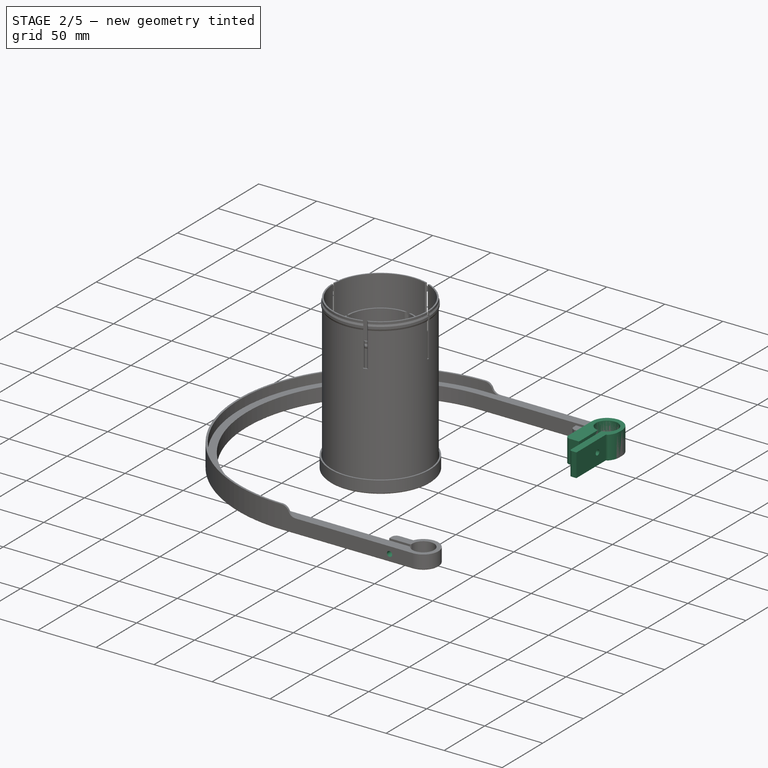
[diagram: stage 2 of 5 — iso view after this stage's code; geometry added in this stage tinted green]
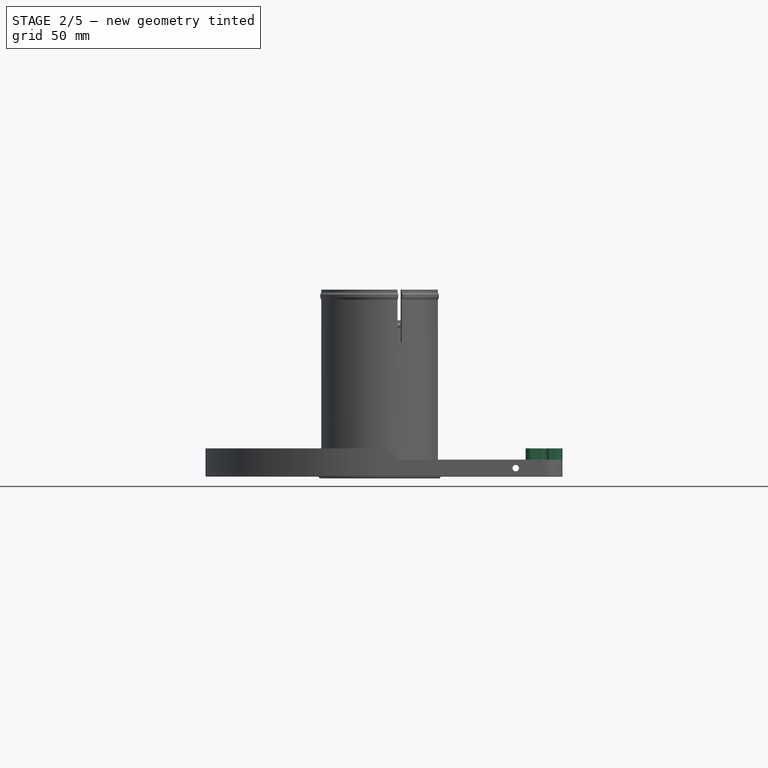
[diagram: stage 2 of 5 — front view after this stage's code; geometry added in this stage tinted green]
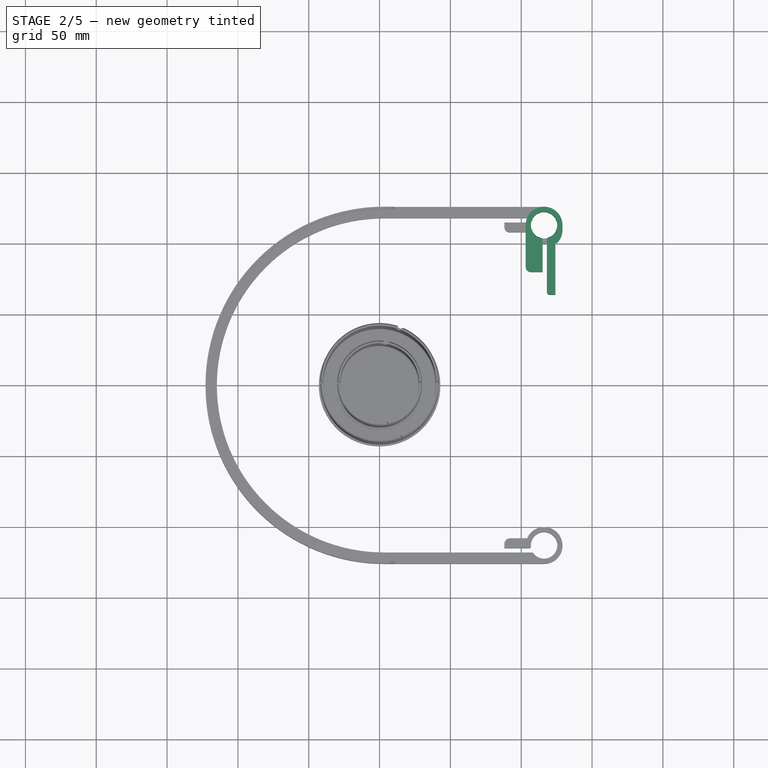
[diagram: stage 2 of 5 — top view after this stage's code; geometry added in this stage tinted green]
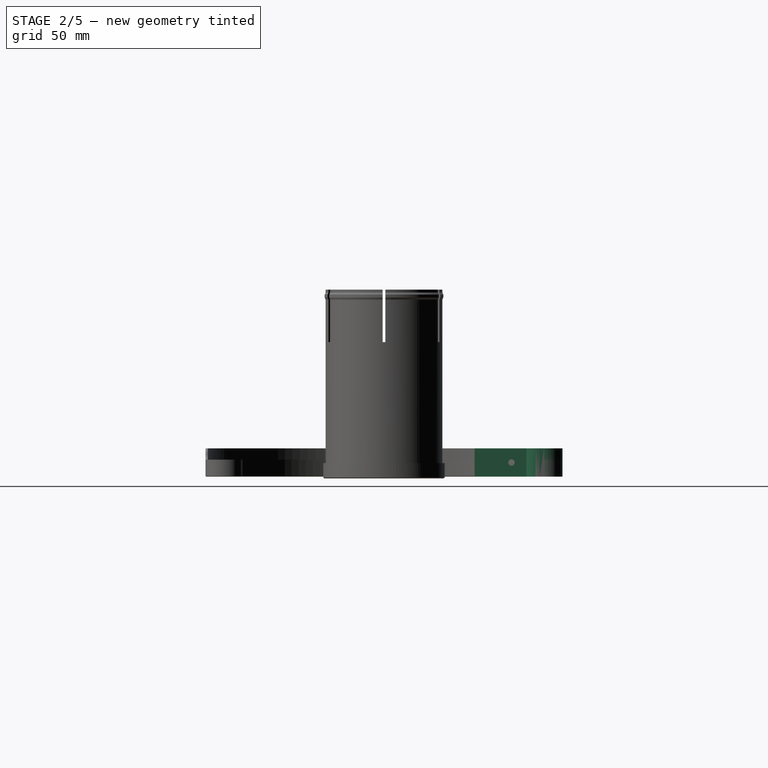
[diagram: stage 2 of 5 — right view after this stage's code; geometry added in this stage tinted green]
FEATURE [PartDesign::Plane] DatumPlane026  label="UpperClamp_DatumPlane_Spider"
  Length = 236.529
  MapMode = 14
  Placement = pos=(-11.8725,11.8725,0) rot=(-0.281085,0.678598,0.678598;3.68962rad)
  ResizeMode = 0
  Support = -> [ShapeBinder002,Z_Axis060]
  Width = 70.7729
FEATURE [Sketcher::SketchObject] Sketch087  label="UpperClamp_SpiderHole_Sketch"
  ExternalGeometry = -> [ShapeBinder002]
  FullyConstrained = true
  MapMode = 5
  Placement = pos=(-11.8725,11.8725,0) rot=(-0.281085,0.678598,0.678598;3.68962rad)
  Support = -> [DatumPlane026]
  expr: Constraints[0] = <<Common>>#<<Parameters>>.sec_collbolt * 1.1
  expr: Constraints[2] = <<Common>>#<<Parameters>>.sec_stalkheight / 2
  expr: Constraints[7] = <<Common>>#<<Parameters>>.sec_stalkheight / 4
  expr: Constraints[8] = <<Common>>#<<Parameters>>.sec_sidebolt * 1.25 + <<Common>>#<<Parameters>>.sec_spiderwidth * 1.5
  sketch-geometry (3):
    g0: Circle CenterX=-154.901 CenterY=5 CenterZ=0 NormalX=0 NormalY=0 NormalZ=1 AngleXU=0 Radius=2.2
    g1: Circle CenterX=-154.901 CenterY=15 CenterZ=0 NormalX=0 NormalY=0 NormalZ=1 AngleXU=0 Radius=2.2
    g2: LineSegment StartX=-154.901 StartY=15 StartZ=0 EndX=-154.901 EndY=0 EndZ=0
  constraints (9):
    c: Diameter(g0) = 4.4
    c: Equal(g0,g1)
    c: DistanceY(g0,g1) = 10
    c: Coincident(g2,g1)
    c: PointOnObject(g2,g-1)
    c: PointOnObject(g0,g2)
    c: Vertical(g2)
    c: DistanceY(g2,g0) = 5
    c: DistanceX(g-3,g2) = 6.5
FEATURE [PartDesign::Plane] DatumPlane032  label="UpperClamp_DatumPlane_SpiderNut"
  AttachmentOffset = pos=(0,0,-3) rot=(0,0,1;0rad)
  Length = 236.529
  MapMode = 5
  Placement = pos=(-9.75121,9.75121,0) rot=(-0.281085,0.678598,0.678598;3.68962rad)
  ResizeMode = 0
  Support = -> [DatumPlane026]
  Width = 70.7729
  expr: .AttachmentOffset.Base.z = -<<Common>>#<<Parameters>>.sec_fthick
FEATURE [PartDesign::ShapeBinder] ShapeBinder008  label="LowerClamp_ShapeBinder"
  Support = -> [Binder]
  TraceSupport = false
FEATURE [PartDesign::Plane] DatumPlane049  label="LowerClamp_DatumPlane_Inner"
  Length = 168.378
  MapMode = 14
  Placement = pos=(103.125,0,0) rot=(0.57735,-0.57735,-0.57735;2.0944rad)
  ResizeMode = 0
  Support = -> [ShapeBinder008,Z_Axis102]
  Width = 67.3781
FEATURE [PartDesign::Plane] DatumPlane050  label="LowerClamp_DatumPlane_Outer"
  AttachmentOffset = pos=(0,0,0) rot=(0,0,1;1.5708rad)
  Length = 67.3781
  MapMode = 14
  Placement = pos=(129.125,0,0) rot=(0.707107,0,0.707107;3.14159rad)
  ResizeMode = 0
  Support = -> [ShapeBinder008,Z_Axis102]
  Width = 168.378
FEATURE [Sketcher::SketchObject] Sketch213  label="LowerClamp_Base_Sketch"
  ExternalGeometry = -> [ShapeBinder008]
  FullyConstrained = true
  MapMode = 5
  Support = -> [XY_Plane101]
  expr: .Constraints.ClampGap = <<Common>>#<<Parameters>>.sec_fthick
  expr: Constraints[17] = <<Common>>#<<Parameters>>.sec_fillet * 2
  expr: Constraints[22] = <<Common>>#<<Parameters>>.sec_spthick
  expr: Constraints[34] = <<Common>>#<<Parameters>>.sec_fthick - <<Common>>#<<Parameters>>.pri_tol
  expr: Constraints[35] = <<Common>>#<<Parameters>>.sec_sidebolt_y - <<Common>>#<<Parameters>>.sec_sidebolt * 6
  expr: Constraints[36] = <<Common>>#<<Parameters>>.sec_fillet
  expr: Constraints[40] = <<Common>>#<<Parameters>>.sec_sidebolt * 4
  expr: Constraints[48] = <<Common>>#<<Parameters>>.sec_fthick * 2
  expr: Constraints[49] = <<Common>>#<<Parameters>>.sec_fillet / 2
  sketch-geometry (18):
    g0: ArcOfCircle CenterX=116.125 CenterY=113 CenterZ=0 NormalX=0 NormalY=0 NormalZ=1 AngleXU=0 Radius=9.35 StartAngle=5.00646 EndAngle=10.8011
    g1: ArcOfCircle CenterX=116.125 CenterY=113 CenterZ=0 NormalX=0 NormalY=0 NormalZ=1 AngleXU=0 Radius=13 StartAngle=1.5e-15 EndAngle=3.14159
    g2: LineSegment StartX=129.125 StartY=113 StartZ=0 EndX=129.125 EndY=109.881 EndZ=0
    g3: LineSegment StartX=118.125 StartY=103.094 StartZ=0 EndX=118.125 EndY=66 EndZ=0
    g4: LineSegment StartX=115.125 StartY=102.845 StartZ=0 EndX=115.125 EndY=80 EndZ=0
    g5: LineSegment StartX=103.125 StartY=113 StartZ=0 EndX=103.125 EndY=84 EndZ=0
    g6: ArcOfCircle CenterX=116.125 CenterY=109.881 CenterZ=0 NormalX=0 NormalY=0 NormalZ=1 AngleXU=0 Radius=13 StartAngle=5.47707 EndAngle=6.28319
    g7: ArcOfCircle CenterX=107.125 CenterY=84 CenterZ=0 NormalX=0 NormalY=0 NormalZ=1 AngleXU=0 Radius=4 StartAngle=3.14159 EndAngle=4.71239
    g8: LineSegment StartX=107.125 StartY=80 StartZ=0 EndX=115.125 EndY=80 EndZ=0
    g9: LineSegment StartX=120.125 StartY=64 StartZ=0 EndX=124.125 EndY=64 EndZ=0
    g10: LineSegment StartX=107.125 StartY=84 StartZ=0 EndX=103.125 EndY=84 EndZ=0
    g11: LineSegment StartX=107.125 StartY=84 StartZ=0 EndX=107.125 EndY=80 EndZ=0
    g12: ArcOfCircle CenterX=120.125 CenterY=66 CenterZ=0 NormalX=0 NormalY=0 NormalZ=1 AngleXU=0 Radius=2 StartAngle=3.14159 EndAngle=4.71239
    g13: LineSegment StartX=124.125 StartY=64 StartZ=0 EndX=124.125 EndY=100.5 EndZ=0
    g14: LineSegment StartX=124.125 StartY=100.5 StartZ=0 EndX=125.125 EndY=100.5 EndZ=0
    g15: LineSegment StartX=103.125 StartY=113 StartZ=0 EndX=129.125 EndY=113 EndZ=0
    g16: ArcOfCircle CenterX=114.125 CenterY=102.845 CenterZ=0 NormalX=0 NormalY=0 NormalZ=1 AngleXU=0 Radius=1 StartAngle=5.9e-15 EndAngle=1.37634
    g17: ArcOfCircle CenterX=119.125 CenterY=103.094 CenterZ=0 NormalX=0 NormalY=0 NormalZ=1 AngleXU=0 Radius=1 StartAngle=1.86487 EndAngle=3.14159
  constraints (50):
    c: Vertical(g2)
    c: Vertical(g3)
    c: Vertical(g4)
    c: Vertical(g5)
    c: Coincident(g7,g5)
    c: Coincident(g8,g7)
    c: Coincident(g8,g4)
    c: Coincident(g10,g7)
    c: Coincident(g10,g5)
    c: Horizontal(g10)
    c: Coincident(g11,g10)
    c: Coincident(g11,g7)
    c: Vertical(g11)
    c: Horizontal(g9)
    c: Horizontal(g8)
    c: Tangent(g3,g12) = -1.5708
    c: Tangent(g9,g12) = -1.5708
    c: Radius(g7) = 4
    c: Coincident(g13,g9)
    c: Vertical(g13)
    c: Coincident(g14,g13)
    c: Horizontal(g14)
    c: DistanceX(g14,g14) = 1
    c: Coincident(g0,g1)
    c: Coincident(g0,g-4)
    c: Equal(g0,g-3)
    c: Equal(g1,g-4)
    c: Coincident(g15,g1)
    c: Coincident(g15,g1)
    c: PointOnObject(g-4,g15)
    c: Horizontal(g15)
    c: Coincident(g5,g15)
    c: Coincident(g2,g15)
    c: PointOnObject(g-5,g13)
    c: DistanceY(g13,g-5) = 2.5
    c: DistanceY(g3) = 66
    c: Radius(g12) = 2
    c: Coincident(g6,g14)
    c: Equal(g-4,g6)
    c: Tangent(g6,g2) = 1.5708
    c: DistanceY(g9,g4) = 16
    c: DistanceX(g5,g3) = 15  'ClampSpace'
    c: DistanceX(g4,g3) = 3  'ClampGap'
    c: Tangent(g4,g16) = 1.5708
    c: Tangent(g0,g16) = 1.5708
    c: Tangent(g3,g17) = -1.5708
    c: Tangent(g0,g17) = 1.5708
    c: Equal(g17,g16)
    c: DistanceX(g3,g9) = 6
    c: Radius(g16) = 1
FEATURE [PartDesign::Pad] Pad057  label="LowerClamp_Base"
  Direction = (0,0,1)
  Length = 20
  Length2 = 100
  Profile = -> Sketch213
  Type = 0
  expr: Length = <<Common>>#<<Parameters>>.sec_clampheight
FEATURE [Sketcher::SketchObject] Sketch286  label="LowerClamp_ClampBump_Sketch"
  AttachmentOffset = pos=(0,0,10) rot=(0,0,1;0rad)
  ExternalGeometry = -> [ShapeBinder008]
  FullyConstrained = true
  MapMode = 5
  Placement = pos=(0,0,10) rot=(0,0,1;0rad)
  Support = -> [XY_Plane101]
  expr: .AttachmentOffset.Base.z = <<Common>>#<<Parameters>>.sec_stalkheight / 2
  expr: Constraints[54] = <<Common>>#<<Parameters>>.sec_poledia
  sketch-geometry (26):
    g0: LineSegment StartX=107.487 StartY=116.578 StartZ=0 EndX=124.763 EndY=109.422 EndZ=0
    g1: LineSegment StartX=112.547 StartY=121.638 StartZ=0 EndX=119.703 EndY=104.362 EndZ=0
    g2: LineSegment StartX=119.703 StartY=121.638 StartZ=0 EndX=112.547 EndY=104.362 EndZ=0
    g3: LineSegment StartX=124.763 StartY=116.578 StartZ=0 EndX=107.487 EndY=109.422 EndZ=0
    g4: LineSegment StartX=107.487 StartY=116.578 StartZ=0 EndX=112.547 EndY=121.638 EndZ=0
    g5: LineSegment StartX=112.547 StartY=121.638 StartZ=0 EndX=119.703 EndY=121.638 EndZ=0
    g6: LineSegment StartX=119.703 StartY=121.638 StartZ=0 EndX=124.763 EndY=116.578 EndZ=0
    g7: LineSegment StartX=124.763 StartY=116.578 StartZ=0 EndX=124.763 EndY=109.422 EndZ=0
    g8: ArcOfCircle CenterX=119.703 CenterY=104.362 CenterZ=0 NormalX=0 NormalY=0 NormalZ=1 AngleXU=0 Radius=0.35 StartAngle=0.411417 EndAngle=3.51557
    g9: ArcOfCircle CenterX=124.763 CenterY=109.422 CenterZ=0 NormalX=0 NormalY=0 NormalZ=1 AngleXU=0 Radius=0.35 StartAngle=1.19681 EndAngle=4.30097
    g10: ArcOfCircle CenterX=124.763 CenterY=116.578 CenterZ=0 NormalX=0 NormalY=0 NormalZ=1 AngleXU=0 Radius=0.35 StartAngle=1.98221 EndAngle=5.08637
    g11: ArcOfCircle CenterX=119.703 CenterY=121.638 CenterZ=0 NormalX=0 NormalY=0 NormalZ=1 AngleXU=0 Radius=0.35 StartAngle=2.76761 EndAngle=5.87177
    g12: ArcOfCircle CenterX=112.547 CenterY=121.638 CenterZ=0 NormalX=0 NormalY=0 NormalZ=1 AngleXU=0 Radius=0.35 StartAngle=3.55301 EndAngle=6.65717
    g13: ArcOfCircle CenterX=107.487 CenterY=116.578 CenterZ=0 NormalX=0 NormalY=0 NormalZ=1 AngleXU=0 Radius=0.35 StartAngle=4.33841 EndAngle=7.44256
    g14: ArcOfCircle CenterX=107.487 CenterY=109.422 CenterZ=0 NormalX=0 NormalY=0 NormalZ=1 AngleXU=0 Radius=0.35 StartAngle=5.12381 EndAngle=8.22796
    g15: ArcOfCircle CenterX=112.547 CenterY=104.362 CenterZ=0 NormalX=0 NormalY=0 NormalZ=1 AngleXU=0 Radius=0.35 StartAngle=5.9092 EndAngle=9.01336
    g16: ArcOfCircle CenterX=116.125 CenterY=113 CenterZ=0 NormalX=0 NormalY=0 NormalZ=1 AngleXU=0 Radius=9.35 StartAngle=5.06765 EndAngle=5.14252
    g17: ArcOfCircle CenterX=116.125 CenterY=113 CenterZ=0 NormalX=0 NormalY=0 NormalZ=1 AngleXU=0 Radius=9.35 StartAngle=5.85305 EndAngle=5.92792
    g18: ArcOfCircle CenterX=116.125 CenterY=113 CenterZ=0 NormalX=0 NormalY=0 NormalZ=1 AngleXU=0 Radius=9.35 StartAngle=0.355264 EndAngle=0.430134
    g19: ArcOfCircle CenterX=116.125 CenterY=113 CenterZ=0 NormalX=0 NormalY=0 NormalZ=1 AngleXU=0 Radius=9.35 StartAngle=1.14066 EndAngle=1.21553
    g20: ArcOfCircle CenterX=116.125 CenterY=113 CenterZ=0 NormalX=0 NormalY=0 NormalZ=1 AngleXU=0 Radius=9.35 StartAngle=1.92606 EndAngle=2.00093
    g21: ArcOfCircle CenterX=116.125 CenterY=113 CenterZ=0 NormalX=0 NormalY=0 NormalZ=1 AngleXU=0 Radius=9.35 StartAngle=2.71146 EndAngle=2.78633
    g22: ArcOfCircle CenterX=116.125 CenterY=113 CenterZ=0 NormalX=0 NormalY=0 NormalZ=1 AngleXU=0 Radius=9.35 StartAngle=3.49686 EndAngle=3.57173
    g23: ArcOfCircle CenterX=116.125 CenterY=113 CenterZ=0 NormalX=0 NormalY=0 NormalZ=1 AngleXU=0 Radius=9.35 StartAngle=4.28225 EndAngle=4.35713
    g24: GeomPoint X=119.569 Y=104.685 Z=0
    g25: GeomPoint X=112.681 Y=121.315 Z=0
  constraints (76):
    c: Coincident(g4,g0)
    c: Coincident(g5,g1)
    c: Coincident(g6,g2)
    c: Coincident(g7,g3)
    c: Coincident(g4,g1)
    c: Coincident(g5,g2)
    c: Coincident(g6,g3)
    c: Equal(g4,g5)
    c: Equal(g5,g6)
    c: Coincident(g7,g0)
    c: Equal(g7,g5)
    c: Horizontal(g5)
    c: Coincident(g8,g1)
    c: Coincident(g9,g0)
    c: Coincident(g10,g3)
    c: Coincident(g11,g2)
    c: Coincident(g12,g1)
    c: Coincident(g13,g0)
    c: Coincident(g14,g3)
    c: Coincident(g15,g2)
    c: Coincident(g16,g8)
    c: Coincident(g16,g8)
    c: Coincident(g17,g16)
    c: Coincident(g17,g9)
    c: Coincident(g17,g9)
    c: Coincident(g18,g16)
    c: Coincident(g18,g10)
    c: Coincident(g18,g10)
    c: Coincident(g19,g16)
    c: Coincident(g19,g11)
    c: Coincident(g19,g11)
    c: Coincident(g20,g16)
    c: Coincident(g20,g12)
    c: Coincident(g20,g12)
    c: Coincident(g21,g16)
    c: Coincident(g21,g13)
    c: Coincident(g21,g13)
    c: Coincident(g22,g16)
    c: Coincident(g22,g14)
    c: Coincident(g22,g14)
    c: Coincident(g23,g16)
    c: Coincident(g23,g15)
    c: Coincident(g23,g15)
    c: Equal(g8,g9)
    c: Equal(g9,g10)
    c: Equal(g10,g11)
    c: Equal(g11,g12)
    c: Equal(g12,g13)
    c: Equal(g13,g14)
    c: Equal(g14,g15)
    c: PointOnObject(g24,g8)
    c: PointOnObject(g24,g1)
    c: PointOnObject(g25,g12)
    c: PointOnObject(g25,g1)
    c: Distance(g25,g24) = 18
    c: PointOnObject(g16,g0)
    c: PointOnObject(g16,g1)
    c: PointOnObject(g16,g2)
    c: PointOnObject(g16,g3)
    c: PointOnObject(g15,g-3)
    c: PointOnObject(g14,g-3)
    c: PointOnObject(g13,g-3)
    c: PointOnObject(g12,g-3)
    c: PointOnObject(g11,g-3)
    c: PointOnObject(g10,g-3)
    c: PointOnObject(g9,g-3)
    c: PointOnObject(g8,g-3)
    c: PointOnObject(g8,g-3)
    c: PointOnObject(g15,g-3)
    c: PointOnObject(g14,g-3)
    c: PointOnObject(g13,g-3)
    c: PointOnObject(g12,g-3)
    c: PointOnObject(g11,g-3)
    c: PointOnObject(g10,g-3)
    c: PointOnObject(g9,g-3)
    c: Coincident(g16,g-3)
FEATURE [Sketcher::SketchObject] Sketch287  label="LowerClamp_BumpGrad_Sketch"
  AttachmentOffset = pos=(0,0,0) rot=(1,0,0;1.5708rad)
  ExternalGeometry = -> [ShapeBinder008]
  FullyConstrained = true
  MapMode = 11
  Placement = pos=(116.125,113,0) rot=(0.57735,0.57735,0.57735;2.0944rad)
  Support = -> [ShapeBinder008]
  expr: Constraints[21] = <<Common>>#<<Parameters>>.sec_clampheight
  expr: Constraints[23] = <<Common>>#<<Parameters>>.sec_poledia / 2
  expr: Constraints[24] = <<Common>>#<<Parameters>>.sec_clamptol * 5
  sketch-geometry (10):
    g0: LineSegment StartX=0 StartY=0 StartZ=0 EndX=0 EndY=20 EndZ=0
    g1: LineSegment StartX=0 StartY=20 StartZ=0 EndX=9.75 EndY=20 EndZ=0
    g2: LineSegment StartX=0 StartY=0 StartZ=0 EndX=9.75 EndY=0 EndZ=0
    g3: LineSegment StartX=9.75 StartY=20 StartZ=0 EndX=9.35 EndY=19.6 EndZ=0
    g4: LineSegment StartX=9.35 StartY=19.6 StartZ=0 EndX=9.35 EndY=19.2 EndZ=0
    g5: LineSegment StartX=9.35 StartY=19.2 StartZ=0 EndX=9 EndY=15.7 EndZ=0
    g6: LineSegment StartX=9 StartY=15.7 StartZ=0 EndX=9 EndY=4.3 EndZ=0
    g7: LineSegment StartX=9 StartY=4.3 StartZ=0 EndX=9.35 EndY=0.8 EndZ=0
    g8: LineSegment StartX=9.35 StartY=0.8 StartZ=0 EndX=9.35 EndY=0.4 EndZ=0
    g9: LineSegment StartX=9.35 StartY=0.4 StartZ=0 EndX=9.75 EndY=0 EndZ=0
  constraints (29):
    c: Coincident(g0,g-1)
    c: Vertical(g0)
    c: Coincident(g1,g0)
    c: Horizontal(g1)
    c: Coincident(g2,g0)
    c: Horizontal(g2)
    c: Coincident(g3,g1)
    c: Coincident(g4,g3)
    c: Vertical(g4)
    c: Coincident(g5,g4)
    c: Coincident(g6,g5)
    c: Vertical(g6)
    c: Coincident(g7,g6)
    c: Coincident(g8,g7)
    c: Vertical(g8)
    c: Coincident(g9,g8)
    c: Coincident(g9,g2)
    c: Equal(g9,g3)
    c: Equal(g8,g4)
    c: Equal(g5,g7)
    c: Equal(g2,g1)
    c: DistanceY(g0,g0) = 20
    c: DistanceY(g4,g4) = 0.4
    c: DistanceX(g5) = 9
    c: DistanceY(g5,g4) = 3.5
    c: Angle(g1,g3) = 0.785398
    c: DistanceY(g3,g1) = 0.4
    c: PointOnObject(g-3,g8)
    c: PointOnObject(g-3,g4)
FEATURE [PartDesign::Line] DatumLine001  label="LowerClamp_DatumLine_Pole"
  AttacherType = Attacher::AttachEngineLine
  Length = 20
  MapMode = 19
  Placement = pos=(116.125,113,0) rot=(0,0,1;0rad)
  ResizeMode = 0
  Support = -> [ShapeBinder008]
FEATURE [PartDesign::Pad] Pad073  label="LowerClamp_ClampBump"
  BaseFeature = -> Pad057
  Direction = (0,0,1)
  Length = 18.4
  Length2 = 10
  Midplane = true
  Profile = -> Sketch286
  ReferenceAxis = -> Sketch286 [N_Axis]
  Type = 0
  expr: Length = <<Common>>#<<Parameters>>.sec_clampheight - 1.6
FEATURE [PartDesign::Groove] Groove001  label="LowerClamp_BumpGrad"
  Angle = 360
  Axis = (0,0,1)
  Base = (116.125,113,0)
  BaseFeature = -> Pad073
  Profile = -> Sketch287
  ReferenceAxis = -> DatumLine001
FEATURE [PartDesign::Hole] Hole053  label="LowerClamp_ClampNut"
  BaseFeature = -> Groove001
  CustomThreadClearance = 0
  Depth = 141.688
  DepthType = 1
  Diameter = 4.5
  DrillForDepth = false
  DrillPoint = 1
  DrillPointAngle = 118
  HoleCutCountersinkAngle = 90
  HoleCutCustomValues = false
  HoleCutDepth = 4
  HoleCutDiameter = 5.6
  HoleCutType = 1
  ModelThread = false
  Profile = -> Sketch216
  Tapered = false
  TaperedAngle = 90
  ThreadClass = 0
  ThreadDepth = 141.688
  ThreadDepthType = 0
  ThreadDirection = 0
  ThreadFit = 0
  ThreadSize = 11
  ThreadType = 1
  Threaded = false
  UseCustomThreadClearance = false
  expr: HoleCutDiameter = <<Common>>#<<Parameters>>.acc_M4Bore
FEATURE [PartDesign::Hole] Hole055  label="UpperArc_ClampHole"
  BaseFeature = -> Pocket001
  CustomThreadClearance = 0
  Depth = 720.915
  DepthType = 1
  Diameter = 4.5
  DrillForDepth = false
  DrillPoint = 1
  DrillPointAngle = 118
  HoleCutCountersinkAngle = 90
  HoleCutCustomValues = false
  HoleCutDepth = 4
  HoleCutDiameter = 5.6
  HoleCutType = 1
  ModelThread = false
  Profile = -> Sketch298
  Tapered = false
  TaperedAngle = 90
  ThreadClass = 0
  ThreadDepth = 720.915
  ThreadDepthType = 0
  ThreadDirection = 0
  ThreadFit = 0
  ThreadSize = 11
  ThreadType = 1
  Threaded = false
  UseCustomThreadClearance = false
  expr: HoleCutDiameter = <<Common>>#<<Parameters>>.acc_M4Bore
FEATURE [PartDesign::Mirrored] Mirrored  label="UpperArc_Mirrored"
  BaseFeature = -> Hole055
  MirrorPlane = -> XZ_Plane105
  Originals = -> [Hole055]
FEATURE [PartDesign::Body] Body022048  label="LowerClamp"
  Group = -> [Sketch213,Pad057,DatumPlane049,Sketch214,Sketch215,DatumPlane050,Sketch216,Local_CS270,Local_CS271,Local_CS272,Local_CS273,Local_CS274,ShapeBinder008,Sketch286,Sketch287,DatumLine001,Pad073,Groove001,Hole053,Hole054,Chamfer001]
  Origin = -> Origin102
  Placement = pos=(-3.125,0,781) rot=(0,0,1;0rad)
  Tip = -> Chamfer001
  expr: .Placement.Base.x = -<<Common>>#<<Parameters>>.sec_offset_x
  expr: .Placement.Base.z = <<Common>>#<<Parameters>>.datum_sec_lowerclamp
FEATURE [PartDesign::Chamfer] Chamfer002  label="UpperArc_Chamfer"
  Angle = 45
  Base = -> Mirrored [Face3]
  BaseFeature = -> Mirrored
  ChamferType = 0
  FlipDirection = false
  Size = 0.4
  Size2 = 1
  SupportTransform = false
  UseAllEdges = false
FEATURE [PartDesign::Body] Body022052  label="UpperArc"
  Group = -> [ShapeBinder,Sketch297,Sketch298,Sketch299,Sketch300,Sketch301,Pad074,Pad075,Pocket001,Hole055,Mirrored,Local_CS,Local_CS292,Local_CS293,Local_CS294,Local_CS295,Local_CS296,Chamfer002]
  Origin = -> Origin106
  Placement = pos=(-3.125,0,916) rot=(0,0,1;0rad)
  Tip = -> Chamfer002
  expr: .Placement.Base.x = -<<Common>>#<<Parameters>>.sec_offset_x
  expr: .Placement.Base.z = <<Common>>#<<Parameters>>.datum_sec_upperhub + <<Common>>#<<Parameters>>.sec_stalkheight
FEATURE [App::DocumentObjectGroup] Parts
  Group = -> [Body011,Body022007,Body022048,Body022050,Body,Body022052]
FEATURE [Part::Extrusion] Extrude
  Base = -> Sketch301
  Dir = (0,0,1)
  DirMode = 2
  FaceMakerClass = Part::FaceMakerBullseye
  LengthFwd = 50
  LengthRev = 0
  Solid = false
  Symmetric = true
FEATURE [Part::FeaturePython] Slice  # WARN: FeaturePython — macro-defined, semantics opaque (R4)
  Base = -> Chamfer002
  Mode = 1
  Tolerance = 0
  Tools = -> [Extrude]
FEATURE [Part::FeaturePython] Slice_child0  label="Slice.0"  # WARN: FeaturePython — macro-defined, semantics opaque (R4)
  Base = -> Slice
  FilterType = 1
  Invert = false
  OverrideMaxVal = 0
  WindowFrom = 80
  WindowTo = 100
  items = 0
FEATURE [Part::FeaturePython] Slice_child1  label="Slice.1"  # WARN: FeaturePython — macro-defined, semantics opaque (R4)
  Base = -> Slice
  FilterType = 1
  Invert = false
  OverrideMaxVal = 0
  WindowFrom = 80
  WindowTo = 100
  items = 1
FEATURE [Part::FeaturePython] Slice_child2  label="Slice.2"  # WARN: FeaturePython — macro-defined, semantics opaque (R4)
  Base = -> Slice
  FilterType = 1
  Invert = false
  OverrideMaxVal = 0
  WindowFrom = 80
  WindowTo = 100
  items = 2
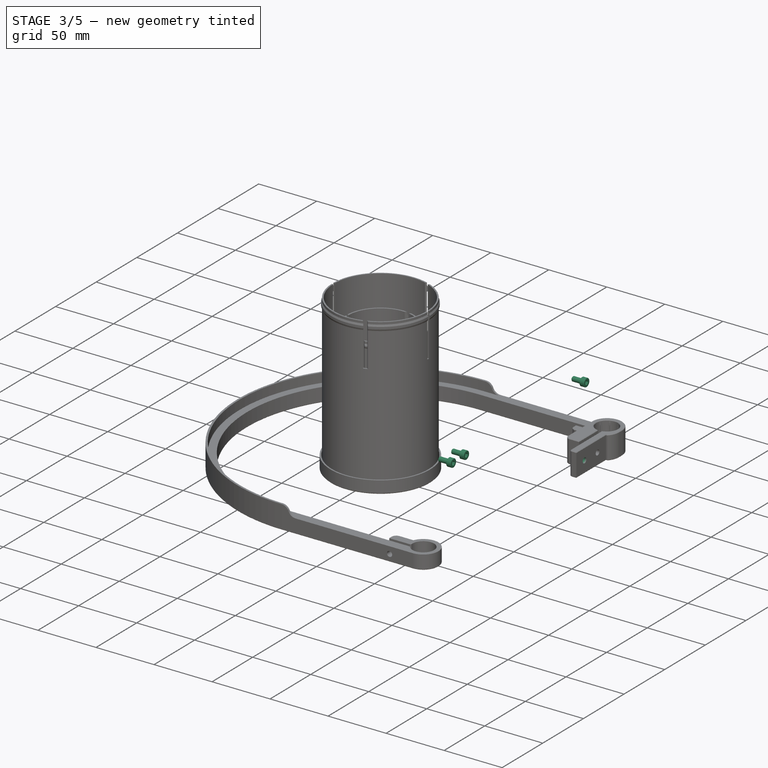
[diagram: stage 3 of 5 — iso view after this stage's code; geometry added in this stage tinted green]
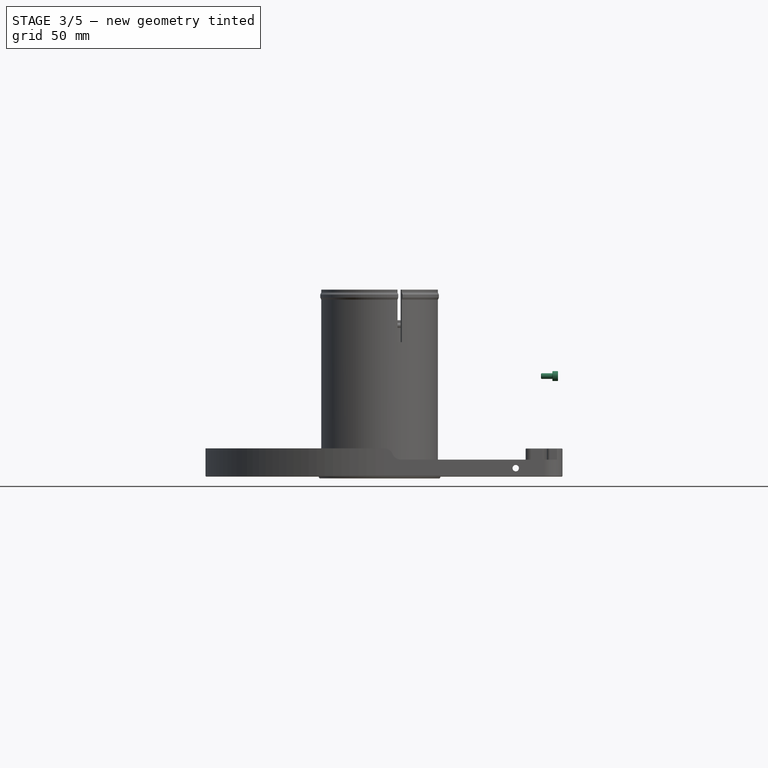
[diagram: stage 3 of 5 — front view after this stage's code; geometry added in this stage tinted green]
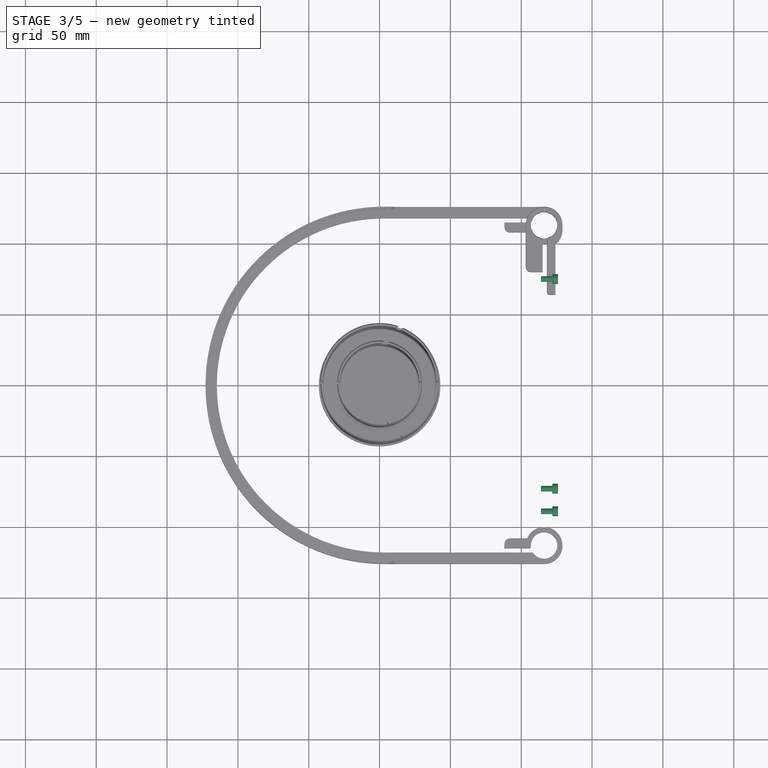
[diagram: stage 3 of 5 — top view after this stage's code; geometry added in this stage tinted green]
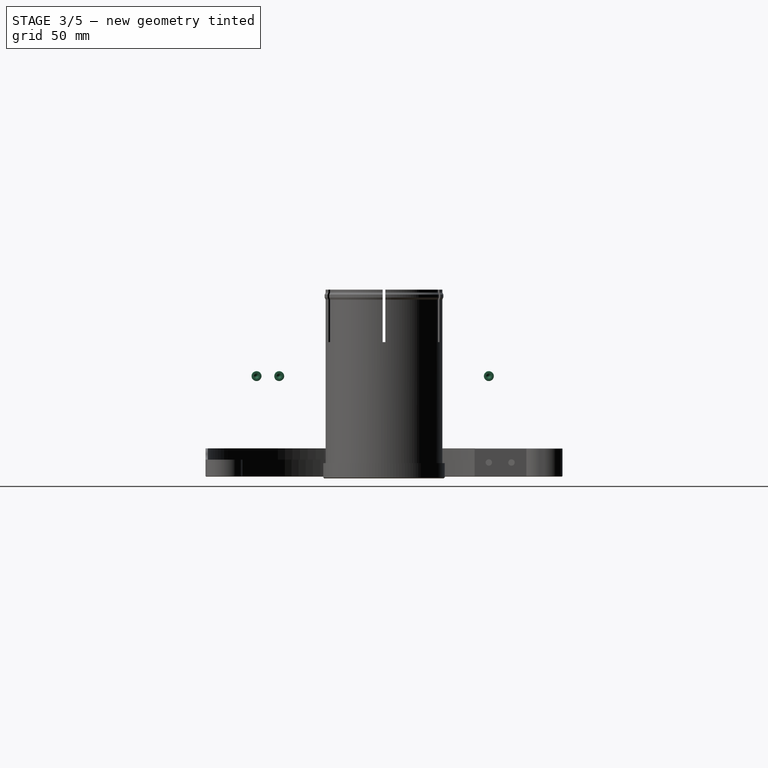
[diagram: stage 3 of 5 — right view after this stage's code; geometry added in this stage tinted green]
FEATURE [PartDesign::CoordinateSystem] Local_CS146  label="LCS_Vane_HubZF"
  AttacherType = Attacher::AttachEngine3D
  MapMode = 11
  Placement = pos=(-8.43122,-16.728,15) rot=(0.281085,0.678598,-0.678598;3.68962rad)
  Support = -> [Hole032]
FEATURE [PartDesign::CoordinateSystem] Local_CS147  label="LCS_Vane_HubZA"
  AttacherType = Attacher::AttachEngine3D
  MapMode = 11
  Placement = pos=(-7.72411,-16.0209,15) rot=(-0.862856,0.357407,-0.357407;1.71777rad)
  Support = -> [Hole032]
FEATURE [PartDesign::CoordinateSystem] Local_CS148  label="LCS_Vane_HubNF"
  AttacherType = Attacher::AttachEngine3D
  MapMode = 11
  Placement = pos=(-8.43122,-16.728,5) rot=(0.281085,0.678598,-0.678598;3.68962rad)
  Support = -> [Hole032]
FEATURE [PartDesign::CoordinateSystem] Local_CS149  label="LCS_Vane_HubNA"
  AttacherType = Attacher::AttachEngine3D
  MapMode = 11
  Placement = pos=(-7.72411,-16.0209,5) rot=(-0.862856,0.357407,-0.357407;1.71777rad)
  Support = -> [Hole032]
FEATURE [PartDesign::CoordinateSystem] Local_CS150  label="LCS_Vane_ClampZF"
  AttacherType = Attacher::AttachEngine3D
  MapMode = 11
  Placement = pos=(96.9516,-122.111,15) rot=(0.281085,0.678598,-0.678598;3.68962rad)
  Support = -> [Hole032]
FEATURE [PartDesign::CoordinateSystem] Local_CS151  label="LCS_Vane_ClampZA"
  AttacherType = Attacher::AttachEngine3D
  MapMode = 11
  Placement = pos=(97.6587,-121.404,15) rot=(-0.862856,0.357407,-0.357407;1.71777rad)
  Support = -> [Hole032]
FEATURE [PartDesign::CoordinateSystem] Local_CS152  label="LCS_Vane_ClampNF"
  AttacherType = Attacher::AttachEngine3D
  MapMode = 11
  Placement = pos=(96.9516,-122.111,5) rot=(0.281085,0.678598,-0.678598;3.68962rad)
  Support = -> [Hole032]
FEATURE [PartDesign::CoordinateSystem] Local_CS153  label="LCS_Vane_ClampNA"
  AttacherType = Attacher::AttachEngine3D
  MapMode = 11
  Placement = pos=(97.6587,-121.404,5) rot=(-0.862856,0.357407,-0.357407;1.71777rad)
  Support = -> [Hole032]
FEATURE [PartDesign::Body] Body011  label="SpiderVane"
  Group = -> [Sketch075,Pad011,Sketch076,Local_CS146,Local_CS147,Local_CS148,Local_CS149,Local_CS150,Local_CS151,Local_CS152,Local_CS153,Hole032,ShapeBinder001]
  Origin = -> Origin013
  Placement = pos=(-3.125,0,896) rot=(0,0,1;0rad)
  Tip = -> Hole032
  expr: .Placement.Base.x = -<<Common>>#<<Parameters>>.sec_offset_x
  expr: .Placement.Base.z = <<Common>>#<<Parameters>>.datum_sec_upperhub
FEATURE [PartDesign::ShapeBinder] ShapeBinder002  label="UpperClamp_ShapeBinder_Spider"
  Support = -> [Binder]
  TraceSupport = false
FEATURE [Sketcher::SketchObject] Sketch086  label="UpperClamp_Structure_Sketch"
  ExternalGeometry = -> [ShapeBinder002]
  FullyConstrained = true
  MapMode = 5
  Support = -> [XY_Plane060]
  expr: Constraints[18] = <<Common>>#<<Parameters>>.sec_fthick - <<Common>>#<<Parameters>>.pri_tol
  expr: Constraints[19] = <<Common>>#<<Parameters>>.sec_spthick
  expr: Constraints[31] = <<Common>>#<<Parameters>>.sec_fthick + 4 - <<Common>>#<<Parameters>>.sec_sidebolt * 1.25
  expr: Constraints[38] = <<Common>>#<<Parameters>>.sec_fillet
  expr: Constraints[39] = <<Common>>#<<Parameters>>.sec_sidebolt * 5.5
  expr: Constraints[40] = <<Common>>#<<Parameters>>.sec_fillet
  expr: Constraints[47] = <<Common>>#<<Parameters>>.sec_fthick / 2
  expr: Constraints[58] = <<Common>>#<<Parameters>>.sec_fillet / 2
  expr: Constraints[59] = <<Common>>#<<Parameters>>.sec_fthick * 1.5
  expr: Constraints[60] = <<Common>>#<<Parameters>>.sec_fthick * 2
  expr: Constraints[68] = <<Common>>#<<Parameters>>.sec_sidebolt_y
  expr: Constraints[6] = <<Common>>#<<Parameters>>.sec_sidebolt * 2.5 + <<Common>>#<<Parameters>>.sec_spiderwidth * 1.5
  expr: Constraints[70] = <<Common>>#<<Parameters>>.sec_fthick * 2
  expr: Constraints[88] = <<Common>>#<<Parameters>>.sec_sidebolt * 3.5 - <<Common>>#<<Parameters>>.sec_fillet
  expr: Constraints[93] = <<Common>>#<<Parameters>>.sec_sidebolt_y - <<Common>>#<<Parameters>>.sec_sidebolt * 6
  sketch-geometry (34):
    g0: LineSegment StartX=124.125 StartY=100.5 StartZ=0 EndX=124.125 EndY=64 EndZ=0
    g1: LineSegment StartX=118.125 StartY=103.094 StartZ=0 EndX=118.125 EndY=86 EndZ=0
    g2: ArcOfCircle CenterX=116.125 CenterY=113 CenterZ=0 NormalX=0 NormalY=0 NormalZ=1 AngleXU=0 Radius=13 StartAngle=0 EndAngle=1.5708
    g3: LineSegment StartX=116.125 StartY=126 StartZ=0 EndX=102.255 EndY=126 EndZ=0
    g4: LineSegment StartX=94.1232 StartY=117.868 StartZ=0 EndX=106.508 EndY=104.253 EndZ=0
    g5: LineSegment StartX=102.255 StartY=126 StartZ=0 EndX=94.1232 EndY=117.868 EndZ=0
    g6: LineSegment StartX=120.125 StartY=64 StartZ=0 EndX=124.125 EndY=64 EndZ=0
    g7: LineSegment StartX=116.125 StartY=126 StartZ=0 EndX=116.125 EndY=113 EndZ=0
    g8: LineSegment StartX=116.125 StartY=113 StartZ=0 EndX=129.125 EndY=113 EndZ=0
    g9: LineSegment StartX=124.125 StartY=100.5 StartZ=0 EndX=125.125 EndY=100.5 EndZ=0
    g10: LineSegment StartX=129.125 StartY=113 StartZ=0 EndX=129.125 EndY=109.881 EndZ=0
    g11: ArcOfCircle CenterX=116.125 CenterY=109.881 CenterZ=0 NormalX=0 NormalY=0 NormalZ=1 AngleXU=0 Radius=13 StartAngle=5.47707 EndAngle=6.28319
    g12: LineSegment StartX=116.125 StartY=109.881 StartZ=0 EndX=129.125 EndY=109.881 EndZ=0
    g13: LineSegment StartX=102.255 StartY=126 StartZ=0 EndX=92.709 EndY=116.454 EndZ=0
    g14: LineSegment StartX=92.709 StartY=116.454 StartZ=0 EndX=111.539 EndY=97.6238 EndZ=0
    g15: LineSegment StartX=112.125 StartY=96.2096 StartZ=0 EndX=112.125 EndY=83.6569 EndZ=0
    g16: LineSegment StartX=116.625 StartY=102.662 StartZ=0 EndX=116.625 EndY=86 EndZ=0
    g17: ArcOfCircle CenterX=120.125 CenterY=66 CenterZ=0 NormalX=0 NormalY=0 NormalZ=1 AngleXU=0 Radius=2 StartAngle=3.14159 EndAngle=4.71239
    g18: ArcOfCircle CenterX=110.125 CenterY=96.2096 CenterZ=0 NormalX=0 NormalY=0 NormalZ=1 AngleXU=0 Radius=2 StartAngle=1.6e-15 EndAngle=0.785398
    g19: ArcOfCircle CenterX=116.125 CenterY=113 CenterZ=0 NormalX=0 NormalY=0 NormalZ=1 AngleXU=0 Radius=9.35 StartAngle=5.00646 EndAngle=10.9472
    g20: LineSegment StartX=118.125 StartY=86 StartZ=0 EndX=116.625 EndY=86 EndZ=0
    g21: LineSegment StartX=118.125 StartY=66 StartZ=0 EndX=120.125 EndY=66 EndZ=0
    g22: LineSegment StartX=120.125 StartY=66 StartZ=0 EndX=120.125 EndY=64 EndZ=0
    g23: ArcOfCircle CenterX=115.625 CenterY=102.662 CenterZ=0 NormalX=0 NormalY=0 NormalZ=1 AngleXU=0 Radius=1 StartAngle=1.2e-15 EndAngle=1.52247
    g24: ArcOfCircle CenterX=119.125 CenterY=103.094 CenterZ=0 NormalX=0 NormalY=0 NormalZ=1 AngleXU=0 Radius=1 StartAngle=1.86487 EndAngle=3.14159
    g25: LineSegment StartX=112.125 StartY=90 StartZ=0 EndX=116.625 EndY=90 EndZ=0
    g26: ArcOfCircle CenterX=114.125 CenterY=83.6569 CenterZ=0 NormalX=0 NormalY=0 NormalZ=1 AngleXU=0 Radius=2 StartAngle=3.14159 EndAngle=3.92699
    g27: ArcOfCircle CenterX=116.125 CenterY=76 CenterZ=0 NormalX=0 NormalY=0 NormalZ=1 AngleXU=0 Radius=2 StartAngle=-1.8e-15 EndAngle=0.785398
    g28: LineSegment StartX=112.711 StartY=82.2426 StartZ=0 EndX=117.539 EndY=77.4142 EndZ=0
    g29: LineSegment StartX=118.125 StartY=76 StartZ=0 EndX=118.125 EndY=66 EndZ=0
    g30: LineSegment StartX=112.125 StartY=83.6569 StartZ=0 EndX=114.125 EndY=83.6569 EndZ=0
    g31: LineSegment StartX=114.125 StartY=83.6569 StartZ=0 EndX=112.711 EndY=82.2426 EndZ=0
    g32: LineSegment StartX=117.539 StartY=77.4142 StartZ=0 EndX=116.125 EndY=76 EndZ=0
    g33: LineSegment StartX=116.125 StartY=76 StartZ=0 EndX=118.125 EndY=76 EndZ=0
  constraints (96):
    c: Vertical(g0)
    c: Vertical(g1)
    c: Coincident(g3,g2)
    c: Horizontal(g3)
    c: Coincident(g5,g3)
    c: Coincident(g5,g4)
    c: Distance(g5) = 11.5
    c: Horizontal(g6)
    c: Vertical(g7)
    c: Coincident(g7,g2)
    c: PointOnObject(g4,g-6)
    c: Parallel(g5,g-6)
    c: Coincident(g2,g-4)
    c: PointOnObject(g0,g-5)
    c: Coincident(g8,g2)
    c: Horizontal(g8)
    c: Coincident(g9,g0)
    c: Horizontal(g9)
    c: DistanceY(g0,g-5) = 2.5
    c: DistanceX(g9,g9) = 1
    c: Coincident(g10,g2)
    c: Vertical(g10)
    c: Coincident(g11,g10)
    c: Coincident(g11,g9)
    c: Coincident(g12,g11)
    c: Coincident(g12,g10)
    c: Horizontal(g12)
    c: Equal(g11,g2)
    c: PointOnObject(g2,g-4)
    c: Coincident(g13,g3)
    c: PointOnObject(g13,g-6)
    c: Distance(g13,g4) = 2
    c: Coincident(g14,g13)
    c: Tangent(g4,g-4)
    c: PointOnObject(g4,g-4)
    c: Perpendicular(g-6,g14)
    c: Vertical(g15)
    c: Vertical(g16)
    c: Radius(g17) = 2
    c: DistanceY(g6,g16) = 22
    c: Radius(g18) = 2
    c: Tangent(g18,g15) = 1.5708
    c: Tangent(g18,g14) = 1.5708
    c: Coincident(g19,g2)
    c: Coincident(g20,g1)
    c: Coincident(g20,g16)
    c: Horizontal(g20)
    c: DistanceX(g20,g20) = 1.5
    c: Coincident(g17,g6)
    c: Coincident(g21,g17)
    c: Horizontal(g21)
    c: Coincident(g22,g17)
    c: Coincident(g22,g6)
    c: Vertical(g22)
    c: Coincident(g7,g2)
    c: Coincident(g7,g8)
    c: Tangent(g19,g23) = 1.5708
    c: Tangent(g16,g23) = 1.5708
    c: Radius(g23) = 1
    c: DistanceX(g15,g16) = 4.5
    c: DistanceX(g1,g0) = 6
    c: Tangent(g19,g24) = 1.5708
    c: Tangent(g1,g24) = -1.5708
    c: Equal(g24,g23)
    c: PointOnObject(g19,g-3)
    c: PointOnObject(g25,g15)
    c: Horizontal(g25)
    c: PointOnObject(g25,g16)
    c: DistanceY(g25) = 90
    c: Coincident(g17,g21)
    c: DistanceX(g17,g0) = 6
    c: Coincident(g26,g15)
    c: Coincident(g28,g26)
    c: Coincident(g28,g27)
    c: Coincident(g29,g27)
    c: Coincident(g29,g17)
    c: Vertical(g29)
    c: Coincident(g30,g15)
    c: Coincident(g30,g26)
    c: Coincident(g31,g26)
    c: Coincident(g31,g26)
    c: Coincident(g32,g27)
    c: Coincident(g32,g27)
    c: Coincident(g33,g27)
    c: Coincident(g33,g27)
    c: Horizontal(g33)
    c: Horizontal(g30)
    c: Equal(g26,g27)
    c: DistanceY(g6,g27) = 12
    c: Perpendicular(g28,g32)
    c: Perpendicular(g28,g31)
    c: Angle(g30,g31) = 0.785398
    c: DistanceX(g15,g17) = 6  'ClampHeight'
    c: DistanceY(g17) = 66
    c: Coincident(g6,g0)
    c: Equal(g27,g17)
FEATURE [PartDesign::Plane] DatumPlane025  label="UpperClamp_DatumPlane_Side"
  AttachmentOffset = pos=(0,0,0) rot=(0,0,1;1.5708rad)
  Length = 67.3781
  MapMode = 14
  Placement = pos=(124.125,0,0) rot=(0.707107,0,0.707107;3.14159rad)
  ResizeMode = 0
  Support = -> [ShapeBinder002,X_Axis060]
  Width = 168.378
FEATURE [Sketcher::SketchObject] Sketch085  label="UpperClamp_SideHole_Sketch"
  FullyConstrained = true
  MapMode = 5
  Placement = pos=(124.125,0,0) rot=(0.707107,0,0.707107;3.14159rad)
  Support = -> [DatumPlane025]
  expr: Constraints[0] = <<Common>>#<<Parameters>>.sec_sidebolt * 1.1
  expr: Constraints[5] = <<Common>>#<<Parameters>>.sec_stalkheight / 2
  expr: Constraints[6] = <<Common>>#<<Parameters>>.sec_sidebolt * 4
  expr: Constraints[7] = <<Common>>#<<Parameters>>.sec_sidebolt_y
  sketch-geometry (3):
    g0: Circle CenterX=10 CenterY=-74 CenterZ=0 NormalX=0 NormalY=0 NormalZ=1 AngleXU=0 Radius=2.2
    g1: Circle CenterX=10 CenterY=-90 CenterZ=0 NormalX=0 NormalY=0 NormalZ=1 AngleXU=0 Radius=2.2
    g2: LineSegment StartX=10 StartY=-74 StartZ=0 EndX=10 EndY=-90 EndZ=0
  constraints (8):
    c: Diameter(g0) = 4.4
    c: Equal(g0,g1)
    c: Coincident(g2,g0)
    c: Coincident(g2,g1)
    c: Vertical(g2)
    c: DistanceX(g2) = 10
    c: DistanceY(g2,g2) = 16
    c: DistanceY(g1,g-1) = 90
FEATURE [PartDesign::Pad] Pad031  label="UpperClamp_Structure"
  Direction = (0,0,1)
  Length = 20
  Length2 = 100
  Profile = -> Sketch086
  Type = 0
  expr: Length = <<Common>>#<<Parameters>>.sec_stalkheight
FEATURE [PartDesign::Body] Body022050  label="Shroud"
  Group = -> [ShapeBinder009,Local_CS291,Sketch217,Pad058]
  Origin = -> Origin104
  Placement = pos=(-3.125,0,936) rot=(0,0,1;0rad)
  Tip = -> Pad058
  expr: .Placement.Base.x = -<<Common>>#<<Parameters>>.sec_offset_x
  expr: .Placement.Base.z = <<Common>>#<<Parameters>>.datum_sec_upperhub + <<Common>>#<<Parameters>>.sec_stalkheight + <<Common>>#<<Parameters>>.sec_toparc_height + 8
FEATURE [Sketcher::SketchObject] Sketch284  label="UpperClamp_SpiderNut_Sketch"
  AttachmentOffset = pos=(0,0,-3) rot=(0,0,1;0rad)
  ExternalGeometry = -> [Sketch087]
  FullyConstrained = true
  MapMode = 5
  Placement = pos=(-9.75121,9.75121,0) rot=(-0.281085,0.678598,0.678598;3.68962rad)
  Support = -> [DatumPlane026]
  expr: Constraints[14] = 7 + Common#<<Parameters>>.acc_FDMtol
  expr: Constraints[28] = <<Common>>#<<Parameters>>.sec_stalkheight / 4 + 1
  sketch-geometry (21):
    g0: LineSegment StartX=-158.551 StartY=21 StartZ=0 EndX=-158.551 EndY=11.35 EndZ=0
    g1: LineSegment StartX=-158.551 StartY=11.35 StartZ=0 EndX=-151.251 EndY=11.35 EndZ=0
    g2: LineSegment StartX=-151.251 StartY=11.35 StartZ=0 EndX=-151.251 EndY=21 EndZ=0
    g3: LineSegment StartX=-151.251 StartY=21 StartZ=0 EndX=-158.551 EndY=21 EndZ=0
    g4: LineSegment StartX=-158.551 StartY=-1 StartZ=0 EndX=-158.551 EndY=8.65 EndZ=0
    g5: LineSegment StartX=-158.551 StartY=8.65 StartZ=0 EndX=-151.251 EndY=8.65 EndZ=0
    g6: LineSegment StartX=-151.251 StartY=8.65 StartZ=0 EndX=-151.251 EndY=-1 EndZ=0
    g7: LineSegment StartX=-151.251 StartY=-1 StartZ=0 EndX=-158.551 EndY=-1 EndZ=0
    g8: LineSegment StartX=-154.901 StartY=15 StartZ=0 EndX=-154.901 EndY=5 EndZ=0
    g9: LineSegment StartX=-158.551 StartY=8.65 StartZ=0 EndX=-154.901 EndY=5 EndZ=0
    g10: LineSegment StartX=-154.901 StartY=15 StartZ=0 EndX=-151.251 EndY=11.35 EndZ=0
    g11: LineSegment StartX=-158.551 StartY=21 StartZ=0 EndX=-158.551 EndY=12.8927 EndZ=0
    g12: LineSegment StartX=-151.251 StartY=21 StartZ=0 EndX=-151.251 EndY=12.8927 EndZ=0
    g13: LineSegment StartX=-151.251 StartY=-1 StartZ=0 EndX=-151.251 EndY=7.10733 EndZ=0
    g14: LineSegment StartX=-158.551 StartY=-1 StartZ=0 EndX=-158.551 EndY=7.10733 EndZ=0
    g15: LineSegment StartX=-158.551 StartY=7.10733 StartZ=0 EndX=-154.901 EndY=9.21466 EndZ=0
    g16: LineSegment StartX=-151.251 StartY=7.10733 StartZ=0 EndX=-154.901 EndY=9.21466 EndZ=0
    g17: LineSegment StartX=-158.551 StartY=12.8927 StartZ=0 EndX=-154.901 EndY=10.7853 EndZ=0
    g18: LineSegment StartX=-151.251 StartY=12.8927 StartZ=0 EndX=-154.901 EndY=10.7853 EndZ=0
    g19: LineSegment StartX=-154.901 StartY=15 StartZ=0 EndX=-151.251 EndY=12.8927 EndZ=0
    g20: LineSegment StartX=-151.251 StartY=7.10733 StartZ=0 EndX=-154.901 EndY=5 EndZ=0
  constraints (55):
    c: Vertical(g0)
    c: Coincident(g2,g1)
    c: Vertical(g2)
    c: Coincident(g3,g2)
    c: Coincident(g3,g0)
    c: Vertical(g4)
    c: Coincident(g6,g5)
    c: Vertical(g6)
    c: Coincident(g7,g6)
    c: Coincident(g7,g4)
    c: Horizontal(g3)
    c: Equal(g3,g7)
    c: Horizontal(g7)
    c: Equal(g4,g0)
    c: DistanceX(g3,g3) = 7.3
    c: Coincident(g5,g4)
    c: Coincident(g1,g0)
    c: Horizontal(g5)
    c: Symmetric(g0,g1,g8)
    c: PointOnObject(g4,g0)
    c: Coincident(g8,g-4)
    c: Coincident(g8,g-3)
    c: Coincident(g9,g4)
    c: Coincident(g9,g8)
    c: Coincident(g10,g8)
    c: Coincident(g10,g1)
    c: Equal(g9,g10)
    c: Angle(g8,g10) = 0.785398
    c: DistanceY(g8,g2) = 6
    c: Coincident(g11,g3)
    c: Vertical(g11)
    c: Coincident(g12,g3)
    c: Vertical(g12)
    c: Coincident(g13,g7)
    c: Vertical(g13)
    c: Coincident(g14,g7)
    c: Vertical(g14)
    c: Coincident(g15,g14)
    c: PointOnObject(g15,g8)
    c: Coincident(g16,g13)
    c: Coincident(g16,g15)
    c: Coincident(g17,g11)
    c: PointOnObject(g17,g8)
    c: Coincident(g18,g12)
    c: Coincident(g18,g17)
    c: Equal(g18,g17)
    c: Equal(g17,g15)
    c: Equal(g15,g16)
    c: Angle(g18,g17) = 2.0944
    c: Coincident(g19,g8)
    c: Coincident(g19,g12)
    c: Coincident(g20,g13)
    c: Coincident(g20,g8)
    c: Equal(g20,g16)
    c: Equal(g18,g19)
FEATURE [PartDesign::Body] Body  label="SpiderHub_Dummy"
  Group = -> [Binder]
  Origin = -> Origin
  Placement = pos=(-3.125,0,896) rot=(0,0,1;0rad)
  expr: .Placement.Base.x = -<<Common>>#<<Parameters>>.sec_offset_x
  expr: .Placement.Base.z = <<Common>>#<<Parameters>>.datum_sec_upperhub
FEATURE [Sketcher::SketchObject] Sketch  label="UpperClamp_ClampBump_Sketch"
  AttachmentOffset = pos=(0,0,10) rot=(0,0,1;0rad)
  ExternalGeometry = -> [ShapeBinder002]
  FullyConstrained = true
  MapMode = 5
  Placement = pos=(0,0,10) rot=(0,0,1;0rad)
  Support = -> [XY_Plane060]
  expr: .AttachmentOffset.Base.z = <<Common>>#<<Parameters>>.sec_stalkheight / 2
  expr: Constraints[70] = <<Common>>#<<Parameters>>.sec_poledia
  sketch-geometry (26):
    g0: LineSegment StartX=107.487 StartY=116.578 StartZ=0 EndX=124.763 EndY=109.422 EndZ=0
    g1: LineSegment StartX=112.547 StartY=121.638 StartZ=0 EndX=119.703 EndY=104.362 EndZ=0
    g2: LineSegment StartX=119.703 StartY=121.638 StartZ=0 EndX=112.547 EndY=104.362 EndZ=0
    g3: LineSegment StartX=124.763 StartY=116.578 StartZ=0 EndX=107.487 EndY=109.422 EndZ=0
    g4: LineSegment StartX=107.487 StartY=116.578 StartZ=0 EndX=112.547 EndY=121.638 EndZ=0
    g5: LineSegment StartX=112.547 StartY=121.638 StartZ=0 EndX=119.703 EndY=121.638 EndZ=0
    g6: LineSegment StartX=119.703 StartY=121.638 StartZ=0 EndX=124.763 EndY=116.578 EndZ=0
    g7: LineSegment StartX=124.763 StartY=116.578 StartZ=0 EndX=124.763 EndY=109.422 EndZ=0
    g8: ArcOfCircle CenterX=119.703 CenterY=104.362 CenterZ=0 NormalX=0 NormalY=0 NormalZ=1 AngleXU=0 Radius=0.35 StartAngle=0.411417 EndAngle=3.51557
    g9: ArcOfCircle CenterX=124.763 CenterY=109.422 CenterZ=0 NormalX=0 NormalY=0 NormalZ=1 AngleXU=0 Radius=0.35 StartAngle=1.19681 EndAngle=4.30097
    g10: ArcOfCircle CenterX=124.763 CenterY=116.578 CenterZ=0 NormalX=0 NormalY=0 NormalZ=1 AngleXU=0 Radius=0.35 StartAngle=1.98221 EndAngle=5.08637
    g11: ArcOfCircle CenterX=119.703 CenterY=121.638 CenterZ=0 NormalX=0 NormalY=0 NormalZ=1 AngleXU=0 Radius=0.35 StartAngle=2.76761 EndAngle=5.87177
    g12: ArcOfCircle CenterX=112.547 CenterY=121.638 CenterZ=0 NormalX=0 NormalY=0 NormalZ=1 AngleXU=0 Radius=0.35 StartAngle=3.55301 EndAngle=6.65717
    g13: ArcOfCircle CenterX=107.487 CenterY=116.578 CenterZ=0 NormalX=0 NormalY=0 NormalZ=1 AngleXU=0 Radius=0.35 StartAngle=4.33841 EndAngle=7.44256
    g14: ArcOfCircle CenterX=107.487 CenterY=109.422 CenterZ=0 NormalX=0 NormalY=0 NormalZ=1 AngleXU=0 Radius=0.35 StartAngle=5.12381 EndAngle=8.22796
    g15: ArcOfCircle CenterX=112.547 CenterY=104.362 CenterZ=0 NormalX=0 NormalY=0 NormalZ=1 AngleXU=0 Radius=0.35 StartAngle=5.9092 EndAngle=9.01336
    g16: ArcOfCircle CenterX=116.125 CenterY=113 CenterZ=0 NormalX=0 NormalY=0 NormalZ=1 AngleXU=0 Radius=9.35 StartAngle=5.06765 EndAngle=5.14252
    g17: ArcOfCircle CenterX=116.125 CenterY=113 CenterZ=0 NormalX=0 NormalY=0 NormalZ=1 AngleXU=0 Radius=9.35 StartAngle=5.85305 EndAngle=5.92792
    g18: ArcOfCircle CenterX=116.125 CenterY=113 CenterZ=0 NormalX=0 NormalY=0 NormalZ=1 AngleXU=0 Radius=9.35 StartAngle=0.355264 EndAngle=0.430134
    g19: ArcOfCircle CenterX=116.125 CenterY=113 CenterZ=0 NormalX=0 NormalY=0 NormalZ=1 AngleXU=0 Radius=9.35 StartAngle=1.14066 EndAngle=1.21553
    g20: ArcOfCircle CenterX=116.125 CenterY=113 CenterZ=0 NormalX=0 NormalY=0 NormalZ=1 AngleXU=0 Radius=9.35 StartAngle=1.92606 EndAngle=2.00093
    g21: ArcOfCircle CenterX=116.125 CenterY=113 CenterZ=0 NormalX=0 NormalY=0 NormalZ=1 AngleXU=0 Radius=9.35 StartAngle=2.71146 EndAngle=2.78633
    g22: ArcOfCircle CenterX=116.125 CenterY=113 CenterZ=0 NormalX=0 NormalY=0 NormalZ=1 AngleXU=0 Radius=9.35 StartAngle=3.49686 EndAngle=3.57173
    g23: ArcOfCircle CenterX=116.125 CenterY=113 CenterZ=0 NormalX=0 NormalY=0 NormalZ=1 AngleXU=0 Radius=9.35 StartAngle=4.28225 EndAngle=4.35713
    g24: GeomPoint X=119.569 Y=104.685 Z=0
    g25: GeomPoint X=112.681 Y=121.315 Z=0
  constraints (76):
    c: PointOnObject(g0,g-3)
    c: PointOnObject(g0,g-3)
    c: PointOnObject(g1,g-3)
    c: PointOnObject(g1,g-3)
    c: PointOnObject(g2,g-3)
    c: PointOnObject(g2,g-3)
    c: PointOnObject(g3,g-3)
    c: PointOnObject(g3,g-3)
    c: Coincident(g4,g0)
    c: Coincident(g5,g1)
    c: Coincident(g6,g2)
    c: Coincident(g7,g3)
    c: Coincident(g4,g1)
    c: Coincident(g5,g2)
    c: Coincident(g6,g3)
    c: Equal(g4,g5)
    c: Equal(g5,g6)
    c: Coincident(g7,g0)
    c: Equal(g7,g5)
    c: Horizontal(g5)
    c: Coincident(g8,g1)
    c: PointOnObject(g8,g-3)
    c: Coincident(g9,g0)
    c: PointOnObject(g9,g-3)
    c: Coincident(g10,g3)
    c: PointOnObject(g10,g-3)
    c: Coincident(g11,g2)
    c: PointOnObject(g11,g-3)
    c: Coincident(g12,g1)
    c: PointOnObject(g12,g-3)
    c: Coincident(g13,g0)
    c: PointOnObject(g13,g-3)
    c: Coincident(g14,g3)
    c: PointOnObject(g14,g-3)
    c: Coincident(g15,g2)
    c: PointOnObject(g15,g-3)
    c: Coincident(g16,g8)
    c: Coincident(g16,g8)
    c: Coincident(g17,g16)
    c: Coincident(g17,g9)
    c: Coincident(g17,g9)
    c: Coincident(g18,g16)
    c: Coincident(g18,g10)
    c: Coincident(g18,g10)
    c: Coincident(g19,g16)
    c: Coincident(g19,g11)
    c: Coincident(g19,g11)
    c: Coincident(g20,g16)
    c: Coincident(g20,g12)
    c: Coincident(g20,g12)
    c: Coincident(g21,g16)
    c: Coincident(g21,g13)
    c: Coincident(g21,g13)
    c: Coincident(g22,g16)
    c: Coincident(g22,g14)
    c: Coincident(g22,g14)
    c: Coincident(g23,g16)
    c: Coincident(g23,g15)
    c: Coincident(g23,g15)
    c: Equal(g8,g9)
    c: Equal(g9,g10)
    c: Equal(g10,g11)
    c: Equal(g11,g12)
    c: Equal(g12,g13)
    c: Equal(g13,g14)
    c: Equal(g14,g15)
    c: PointOnObject(g24,g8)
    c: PointOnObject(g24,g1)
    c: PointOnObject(g25,g12)
    c: PointOnObject(g25,g1)
    c: Distance(g25,g24) = 18
    c: PointOnObject(g16,g0)
    c: PointOnObject(g16,g1)
    c: PointOnObject(g16,g2)
    c: PointOnObject(g16,g3)
    c: Coincident(g16,g-3)
FEATURE [PartDesign::Pad] Pad  label="UpperClamp_ClampBump"
  BaseFeature = -> Pad031
  Direction = (0,0,1)
  Length = 18.4
  Length2 = 10
  Midplane = true
  Profile = -> Sketch
  ReferenceAxis = -> Sketch [N_Axis]
  Type = 0
  expr: Length = <<Common>>#<<Parameters>>.sec_stalkheight - 1.6
FEATURE [Sketcher::SketchObject] Sketch285  label="UpperClamp_BumpGrad_Sketch"
  AttachmentOffset = pos=(0,0,0) rot=(1,0,0;1.5708rad)
  ExternalGeometry = -> [ShapeBinder002]
  FullyConstrained = true
  MapMode = 11
  Placement = pos=(116.125,113,0) rot=(0.57735,0.57735,0.57735;2.0944rad)
  Support = -> [ShapeBinder002]
  expr: Constraints[21] = <<Common>>#<<Parameters>>.sec_stalkheight
  expr: Constraints[25] = <<Common>>#<<Parameters>>.sec_poledia / 2
  expr: Constraints[26] = <<Common>>#<<Parameters>>.sec_clamptol * 5
  sketch-geometry (10):
    g0: LineSegment StartX=0 StartY=0 StartZ=0 EndX=0 EndY=20 EndZ=0
    g1: LineSegment StartX=0 StartY=20 StartZ=0 EndX=9.75 EndY=20 EndZ=0
    g2: LineSegment StartX=0 StartY=0 StartZ=0 EndX=9.75 EndY=0 EndZ=0
    g3: LineSegment StartX=9.75 StartY=20 StartZ=0 EndX=9.35 EndY=19.6 EndZ=0
    g4: LineSegment StartX=9.35 StartY=19.6 StartZ=0 EndX=9.35 EndY=19.2 EndZ=0
    g5: LineSegment StartX=9.35 StartY=19.2 StartZ=0 EndX=9 EndY=15.7 EndZ=0
    g6: LineSegment StartX=9 StartY=15.7 StartZ=0 EndX=9 EndY=4.3 EndZ=0
    g7: LineSegment StartX=9 StartY=4.3 StartZ=0 EndX=9.35 EndY=0.8 EndZ=0
    g8: LineSegment StartX=9.35 StartY=0.8 StartZ=0 EndX=9.35 EndY=0.4 EndZ=0
    g9: LineSegment StartX=9.35 StartY=0.4 StartZ=0 EndX=9.75 EndY=0 EndZ=0
  constraints (29):
    c: Coincident(g0,g-1)
    c: Vertical(g0)
    c: Coincident(g1,g0)
    c: Horizontal(g1)
    c: Coincident(g2,g0)
    c: Horizontal(g2)
    c: Coincident(g3,g1)
    c: Coincident(g4,g3)
    c: Vertical(g4)
    c: Coincident(g5,g4)
    c: Coincident(g6,g5)
    c: Vertical(g6)
    c: Coincident(g7,g6)
    c: Coincident(g8,g7)
    c: Vertical(g8)
    c: Coincident(g9,g8)
    c: Coincident(g9,g2)
    c: Equal(g9,g3)
    c: Equal(g8,g4)
    c: Equal(g5,g7)
    c: Equal(g2,g1)
    c: DistanceY(g0,g0) = 20
    c: DistanceY(g4,g4) = 0.4
    c: PointOnObject(g-3,g4)
    c: PointOnObject(g-3,g8)
    c: DistanceX(g5) = 9
    c: DistanceY(g5,g4) = 3.5
    c: Angle(g1,g3) = 0.785398
    c: DistanceY(g3,g1) = 0.4
FEATURE [PartDesign::Line] DatumLine  label="UpperClamp_DatumLine_Pole"
  AttacherType = Attacher::AttachEngineLine
  Length = 20
  MapMode = 19
  Placement = pos=(116.125,113,0) rot=(0,0,1;0rad)
  ResizeMode = 0
  Support = -> [ShapeBinder002]
FEATURE [PartDesign::Groove] Groove  label="UpperClamp_BumpGrad"
  Angle = 360
  Axis = (0,0,1)
  Base = (116.125,113,0)
  BaseFeature = -> Pad
  Profile = -> Sketch285
  ReferenceAxis = -> DatumLine
FEATURE [PartDesign::Hole] Hole  label="UpperClamp_SideHole"
  BaseFeature = -> Groove
  CustomThreadClearance = 0
  Depth = 150.759
  DepthType = 1
  Diameter = 4.5
  DrillForDepth = false
  DrillPoint = 1
  DrillPointAngle = 118
  HoleCutCountersinkAngle = 90
  HoleCutCustomValues = false
  HoleCutDepth = 4
  HoleCutDiameter = 5.6
  HoleCutType = 1
  ModelThread = false
  Profile = -> Sketch085
  Tapered = false
  TaperedAngle = 90
  ThreadClass = 0
  ThreadDepth = 150.759
  ThreadDepthType = 0
  ThreadDirection = 0
  ThreadFit = 0
  ThreadSize = 11
  ThreadType = 1
  Threaded = false
  UseCustomThreadClearance = false
  expr: HoleCutDiameter = <<Common>>#<<Parameters>>.acc_M4Bore
FEATURE [PartDesign::CoordinateSystem] Local_CS176  label="LCS_UpperClampNut_I"
  AttacherType = Attacher::AttachEngine3D
  MapMode = 11
  Placement = pos=(124.125,90,10) rot=(0.57735,-0.57735,-0.57735;2.0944rad)
  Support = -> [Hole]
FEATURE [PartDesign::CoordinateSystem] Local_CS177  label="LCS_UpperClampNut_O"
  AttacherType = Attacher::AttachEngine3D
  MapMode = 11
  Placement = pos=(124.125,74,10) rot=(0.57735,-0.57735,-0.57735;2.0944rad)
  Support = -> [Hole]
FEATURE [PartDesign::CoordinateSystem] Local_CS178  label="LCS_UpperClampBolt_I"
  AttacherType = Attacher::AttachEngine3D
  AttachmentOffset = pos=(0,0,1) rot=(0,0,1;0rad)
  MapMode = 11
  Placement = pos=(125.125,90,10) rot=(0.57735,0.57735,0.57735;2.0944rad)
  Support = -> [Hole]
  expr: .AttachmentOffset.Base.z = <<Common>>#<<Parameters>>.sec_spthick
FEATURE [PartDesign::CoordinateSystem] Local_CS179  label="LCS_UpperClampBolt_O"
  AttacherType = Attacher::AttachEngine3D
  AttachmentOffset = pos=(0,0,1) rot=(0,0,1;0rad)
  MapMode = 11
  Placement = pos=(125.125,74,10) rot=(0.57735,0.57735,0.57735;2.0944rad)
  Support = -> [Hole]
  expr: .AttachmentOffset.Base.z = <<Common>>#<<Parameters>>.sec_spthick
FEATURE [PartDesign::CoordinateSystem] Local_CS181  label="LCS_UpperClampPlate"
  AttacherType = Attacher::AttachEngine3D
  MapMode = 11
  Placement = pos=(124.125,90,10) rot=(0.57735,0.57735,0.57735;2.0944rad)
  Support = -> [Hole]
FEATURE [PartDesign::Hole] Hole052  label="UpperClamp_SpiderHole"
  BaseFeature = -> Hole
  CustomThreadClearance = 0
  Depth = 8
  DepthType = 0
  Diameter = 4.5
  DrillForDepth = false
  DrillPoint = 1
  DrillPointAngle = 118
  HoleCutCountersinkAngle = 90
  HoleCutCustomValues = false
  HoleCutDepth = 0
  HoleCutDiameter = 6.1
  HoleCutType = 0
  ModelThread = false
  Profile = -> Sketch087
  Tapered = false
  TaperedAngle = 90
  ThreadClass = 0
  ThreadDepth = 8
  ThreadDepthType = 0
  ThreadDirection = 0
  ThreadFit = 0
  ThreadSize = 11
  ThreadType = 1
  Threaded = false
  UseCustomThreadClearance = false
FEATURE [PartDesign::CoordinateSystem] Local_CS175  label="LCS_ClampSpider_Z"
  AttacherType = Attacher::AttachEngine3D
  MapMode = 11
  Placement = pos=(97.6587,121.404,15) rot=(-0.862856,-0.357407,0.357407;1.71777rad)
  Support = -> [Hole052]
FEATURE [PartDesign::Pocket] Pocket  label="UpperClamp_SpiderNut"
  BaseFeature = -> Hole052
  Direction = (0.707107,-0.707107,0)
  Length = 3.5
  Length2 = 5
  Profile = -> Sketch284
  ReferenceAxis = -> Sketch284 [N_Axis]
  Type = 0
FEATURE [PartDesign::Hole] Hole054  label="LowerClamp_PlateNut"
  BaseFeature = -> Hole053
  CustomThreadClearance = 0
  Depth = 141.688
  DepthType = 1
  Diameter = 4.5
  DrillForDepth = false
  DrillPoint = 1
  DrillPointAngle = 118
  HoleCutCountersinkAngle = 90
  HoleCutCustomValues = false
  HoleCutDepth = 4
  HoleCutDiameter = 5.6
  HoleCutType = 1
  ModelThread = false
  Profile = -> Sketch215
  Tapered = false
  TaperedAngle = 90
  ThreadClass = 0
  ThreadDepth = 141.688
  ThreadDepthType = 0
  ThreadDirection = 0
  ThreadFit = 0
  ThreadSize = 11
  ThreadType = 1
  Threaded = false
  UseCustomThreadClearance = false
  expr: HoleCutDiameter = <<Common>>#<<Parameters>>.acc_M4Bore
FEATURE [Part::FeaturePython] Screw011  label="M4x8-Screw209"  # Fasteners workbench fastener (typed FeaturePython)
  AttachedBy = Origin
  AttachedTo = UpperClamp_A#Local_CS179
  Placement = pos=(122,74,71) rot=(0.57735,0.57735,0.57735;2.0944rad)
  SolverId = Asm4EE
  diameter = 5
  invert = false
  leftHanded = false
  length = 1
  lengthCustom = 8
  matchOuter = false
  offset = 0
  thread = false
  type = 45
  expr: Placement = UpperClamp_A.Placement * Local_CS179.Placement * AttachmentOffset
FEATURE [Part::FeaturePython] Screw012  label="M4x8-Screw210"  # Fasteners workbench fastener (typed FeaturePython)
  AttachedBy = Origin
  AttachedTo = UpperClamp_F#Local_CS178
  Placement = pos=(122,-90,71) rot=(0.57735,-0.57735,0.57735;4.18879rad)
  SolverId = Asm4EE
  diameter = 5
  invert = false
  leftHanded = false
  length = 1
  lengthCustom = 8
  matchOuter = false
  offset = 0
  thread = false
  type = 45
  expr: Placement = UpperClamp_F.Placement * Local_CS178.Placement * AttachmentOffset
FEATURE [Part::FeaturePython] Screw013  label="M4x8-Screw211"  # Fasteners workbench fastener (typed FeaturePython)
  AttachedBy = Origin
  AttachedTo = UpperClamp_F#Local_CS179
  Placement = pos=(122,-74,71) rot=(0.57735,-0.57735,0.57735;4.18879rad)
  SolverId = Asm4EE
  diameter = 5
  invert = false
  leftHanded = false
  length = 1
  lengthCustom = 8
  matchOuter = false
  offset = 0
  thread = false
  type = 45
  expr: Placement = UpperClamp_F.Placement * Local_CS179.Placement * AttachmentOffset
FEATURE [App::Link] GBT834_M4x25
  AttachedBy = #Local_CS237
  AttachedTo = LowerClamp_A#Local_CS273
  LinkPlacement = pos=(122,90,-44) rot=(0.707107,0,0.707107;3.14159rad)
  LinkedObject = -> <external Common.FCStd>#Body005
  Placement = pos=(122,90,-44) rot=(0.707107,0,0.707107;3.14159rad)
  SolverId = Asm4EE
  expr: Placement = LowerClamp_A.Placement * Local_CS273.Placement * AttachmentOffset * Common#Local_CS237.Placement ^ -1
FEATURE [App::Link] GBT834_1
  AttachedBy = #Local_CS237
  AttachedTo = LowerClamp_F#Local_CS273
  LinkPlacement = pos=(122,-90,-44) rot=(0,-1,0;4.71239rad)
  LinkedObject = -> <external Common.FCStd>#Body005
  Placement = pos=(122,-90,-44) rot=(0,-1,0;4.71239rad)
  SolverId = Asm4EE
  expr: Placement = LowerClamp_F.Placement * Local_CS273.Placement * AttachmentOffset * Common#Local_CS237.Placement ^ -1
FEATURE [App::Link] GBT834_2
  AttachedBy = #Local_CS237
  AttachedTo = UpperArc#Local_CS292
  LinkPlacement = pos=(93,126,87) rot=(0,0.707107,0.707107;3.14159rad)
  LinkedObject = -> <external Common.FCStd>#Body005
  Placement = pos=(93,126,87) rot=(0,0.707107,0.707107;3.14159rad)
  SolverId = Asm4EE
  expr: Placement = UpperArc.Placement * Local_CS292.Placement * AttachmentOffset * Common#Local_CS237.Placement ^ -1
FEATURE [App::Link] GBT834_3
  AttachedBy = #Local_CS237
  AttachedTo = UpperArc#Local_CS294
  LinkPlacement = pos=(93,-126,87) rot=(0,0.707107,-0.707107;3.14159rad)
  LinkedObject = -> <external Common.FCStd>#Body005
  Placement = pos=(93,-126,87) rot=(0,0.707107,-0.707107;3.14159rad)
  SolverId = Asm4EE
  expr: Placement = UpperArc.Placement * Local_CS294.Placement * AttachmentOffset * Common#Local_CS237.Placement ^ -1
FEATURE [App::Part] Assembly
  AssemblyType = Part::Link
  DrawingName = Secondary.FCStd
  Group = -> [LCS_Origin,Constraints,Variables,Configurations,SecondaryMirrorCell,Focuser,UpperClamp_A,SpiderVane_A,LowerClamp_A,UpperClamp_F,SpiderVane_F,LowerClamp_F,UpperArc,Shroud,Insert_M4_Short,Insert_M4_Short_2,Insert_M4_Short_1,Insert_M4_Short_3,Insert_M4_Short_4,Insert_M4_Short_5,Insert_M4_Short_6,Insert_M4_Short_7,Insert_M4_Short_8,Insert_M4_Short_9,Nut,Nut001,Nut002,Nut003,Nut004,Nut005,Nut006,+19 more]
  Origin = -> Origin107
  PartID = Secondary
  Type = Assembly
FEATURE [PartDesign::Chamfer] Chamfer  label="UpperClamp_Chamfer"
  Angle = 45
  Base = -> Pocket [Edge53,Edge50,Edge51,Edge52,Edge46,Edge44,Edge42,Edge40,Edge38,Edge12,Edge6,Edge4,Edge48,Edge49,Edge47,Edge45,Edge43,Edge41,Edge39,Edge37,Edge60,Edge59,Edge57,Edge13,Edge15,Edge17,Edge19,Edge21,Edge23,Edge25,Edge36,Edge35,Edge33,Edge5,Edge3,Edge11,Edge24,Edge22,Edge14,Edge16,+6 more]
  BaseFeature = -> Pocket
  ChamferType = 0
  FlipDirection = false
  Size = 0.4
  Size2 = 1
  SupportTransform = false
  UseAllEdges = false
FEATURE [PartDesign::Body] Body022007  label="UpperClamp"
  Group = -> [Sketch085,Sketch086,DatumPlane025,Pad031,Sketch087,Local_CS175,Local_CS176,Local_CS177,Local_CS178,Local_CS179,Local_CS181,DatumPlane026,ShapeBinder002,DatumPlane032,Local_CS275,Local_CS290,Sketch284,Sketch,Pad,Sketch285,DatumLine,Groove,Hole,Hole052,Pocket,Chamfer]
  Origin = -> Origin060
  Placement = pos=(-3.125,0,896) rot=(0,0,1;0rad)
  Tip = -> Chamfer
  expr: .Placement.Base.x = -<<Common>>#<<Parameters>>.sec_offset_x
  expr: .Placement.Base.z = <<Common>>#<<Parameters>>.datum_sec_upperhub
FEATURE [PartDesign::Chamfer] Chamfer001  label="LowerClamp_Chamfer"
  Angle = 45
  Base = -> Hole054 [Edge84,Edge85,Edge86,Edge87,Edge88,Edge89,Edge90,Edge91,Edge92,Edge93,Edge94,Edge95,Edge63,Edge62,Edge64,Edge65,Edge71,Edge70,Edge72,Edge73,Edge69,Edge68,Edge67,Edge66]
  BaseFeature = -> Hole054
  ChamferType = 0
  FlipDirection = false
  Size = 0.4
  Size2 = 1
  SupportTransform = false
  UseAllEdges = false
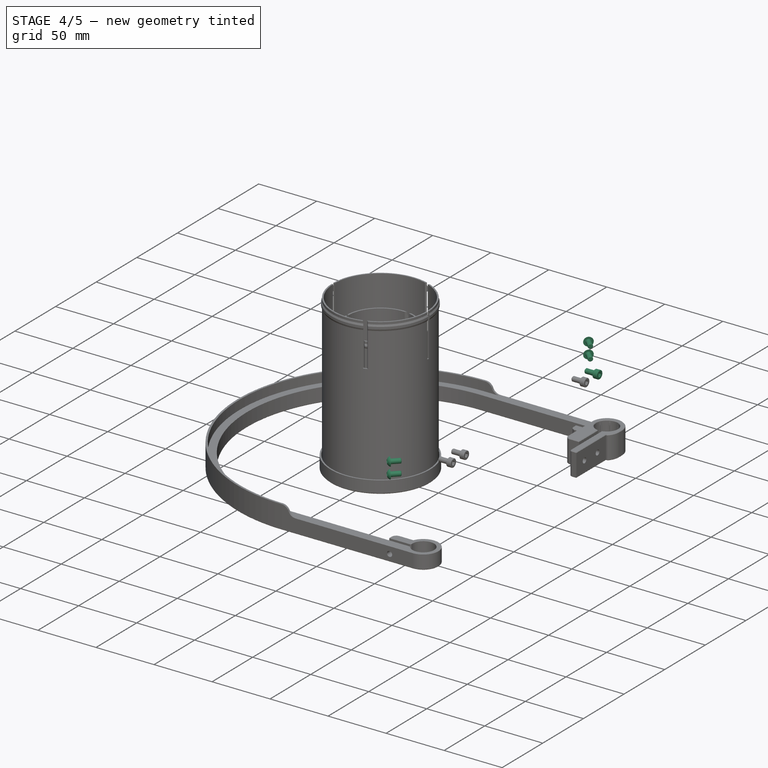
[diagram: stage 4 of 5 — iso view after this stage's code; geometry added in this stage tinted green]
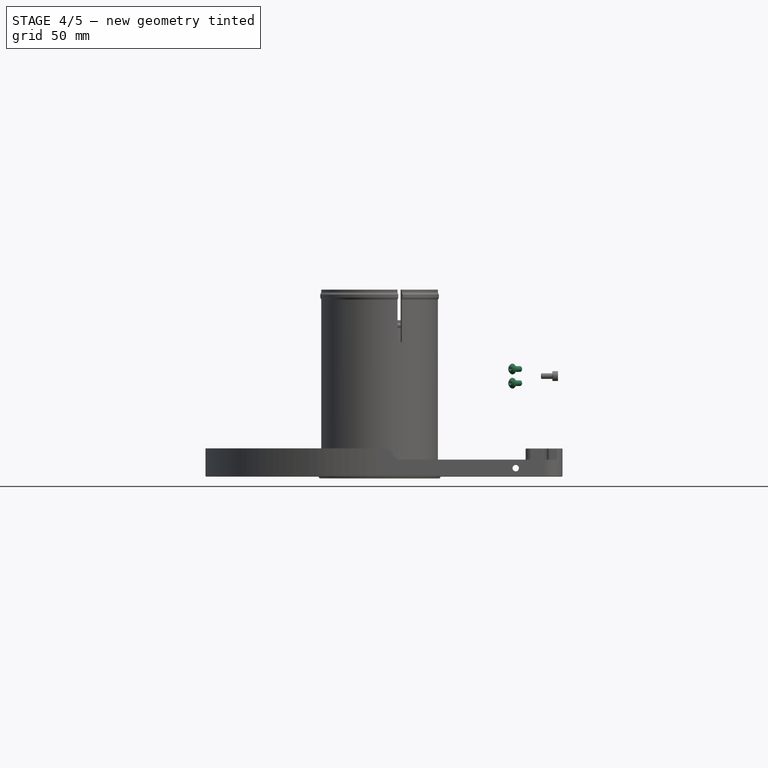
[diagram: stage 4 of 5 — front view after this stage's code; geometry added in this stage tinted green]
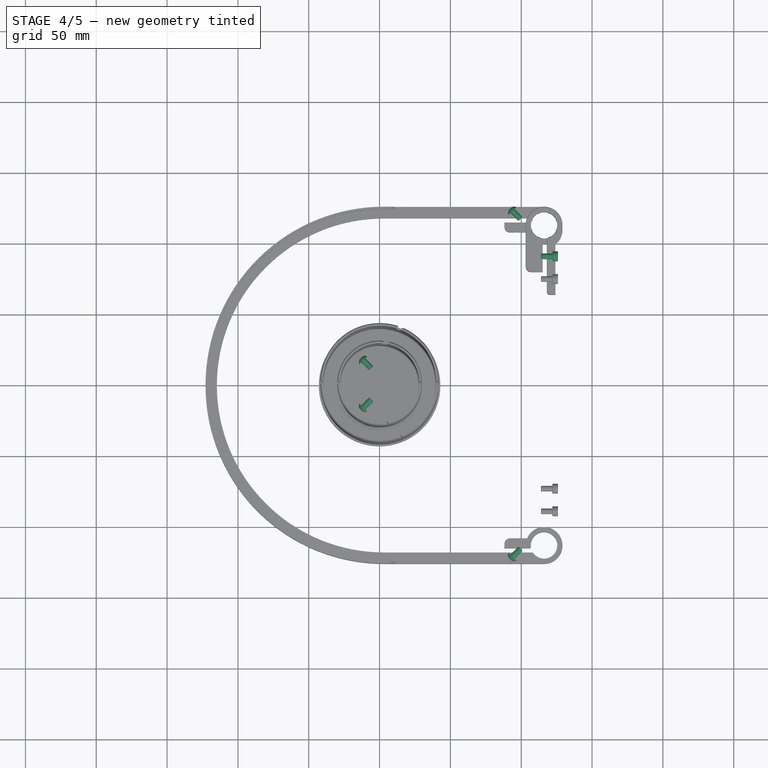
[diagram: stage 4 of 5 — top view after this stage's code; geometry added in this stage tinted green]
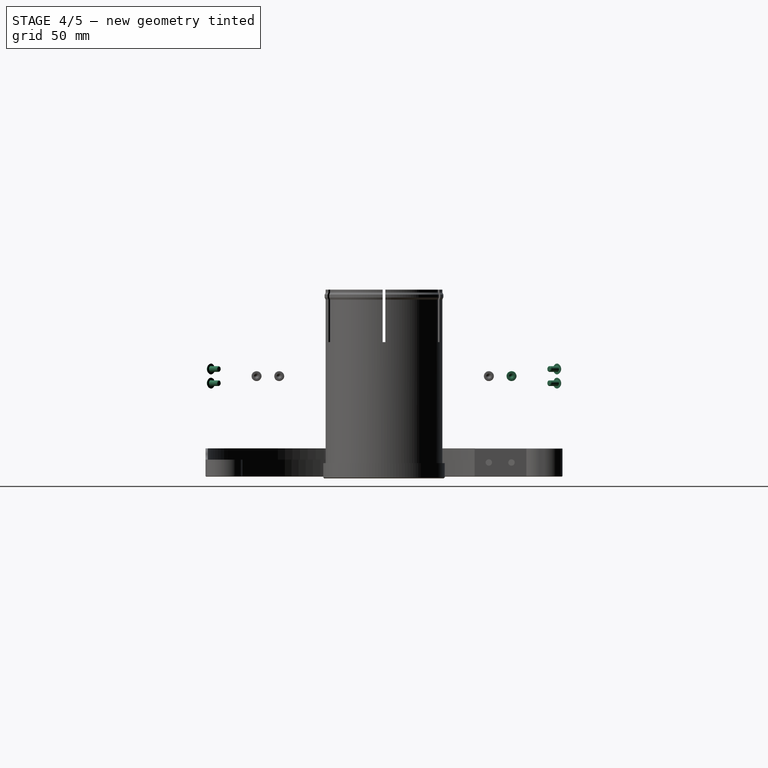
[diagram: stage 4 of 5 — right view after this stage's code; geometry added in this stage tinted green]
FEATURE [App::DocumentObjectGroup] Group  label="OldParts"
FEATURE [App::DocumentObjectGroup] Group001  label="Secondary"
FEATURE [PartDesign::SubShapeBinder] Binder
  BindCopyOnChange = 0
  BindMode = 0
  ClaimChildren = false
  Context = -> Body [Binder.]
  Fuse = false
  MakeFace = true
  OffsetFill = false
  OffsetIntersection = false
  OffsetJoinType = 0
  OffsetOpenResult = false
  PartialLoad = false
  Relative = true
  Support = -> [<external Common.FCStd>#Body022062[Sketch289.]]
  _Version = 2
FEATURE [PartDesign::ShapeBinder] ShapeBinder001  label="SpiderVane_ShapeBinder_Spider"
  Support = -> [Binder]
  TraceSupport = false
FEATURE [Sketcher::SketchObject] Sketch075  label="SpiderVane_Base_Sketch"
  ExternalGeometry = -> [ShapeBinder001]
  FullyConstrained = true
  MapMode = 5
  Support = -> [XY_Plane013]
  expr: Constraints[13] = <<Common>>#<<Parameters>>.sec_spiderwidth * 1.5
  expr: Constraints[5] = <<Common>>#<<Parameters>>.sec_spiderwidth
  expr: Constraints[6] = <<Common>>#<<Parameters>>.sec_sidebolt * 2.5
  sketch-geometry (5):
    g0: LineSegment StartX=-11.9668 StartY=-13.1925 StartZ=0 EndX=100.487 EndY=-125.646 EndZ=0
    g1: LineSegment StartX=100.487 StartY=-125.646 StartZ=0 EndX=101.194 EndY=-124.939 EndZ=0
    g2: LineSegment StartX=-11.9668 StartY=-13.1925 StartZ=0 EndX=-11.2596 EndY=-12.4854 EndZ=0
    g3: GeomPoint X=-4.18858 Y=-19.5565 Z=0
    g4: LineSegment StartX=-11.2596 StartY=-12.4854 StartZ=0 EndX=101.194 EndY=-124.939 EndZ=0
  constraints (15):
    c: Coincident(g2,g0)
    c: Perpendicular(g0,g2)
    c: Coincident(g0,g1)
    c: Coincident(g4,g2)
    c: Coincident(g4,g1)
    c: Distance(g1) = 1
    c: Distance(g2,g3) = 10
    c: Perpendicular(g4,g1)
    c: Parallel(g0,g4)
    c: PointOnObject(g3,g-3)
    c: PointOnObject(g3,g-5)
    c: PointOnObject(g2,g-3)
    c: PointOnObject(g1,g-3)
    c: Distance(g1,g-4) = 1.5
    c: Block(g1)
FEATURE [PartDesign::Pad] Pad011  label="SpiderVane_Base"
  Direction = (0,0,1)
  Length = 20
  Length2 = 100
  Profile = -> Sketch075
  Type = 0
  expr: Length = <<Common>>#<<Parameters>>.sec_stalkheight
FEATURE [Sketcher::SketchObject] Sketch076  label="SpiderVane_Hole_Sketch"
  ExternalGeometry = -> [Pad011]
  FullyConstrained = true
  MapMode = 5
  Placement = pos=(-12.5796,-12.5796,0) rot=(0.862856,-0.357407,-0.357407;1.71777rad)
  Support = -> [Pad011]
  expr: Constraints[0] = <<Common>>#<<Parameters>>.sec_collbolt * 1.1
  expr: Constraints[10] = <<Common>>#<<Parameters>>.sec_stalkheight / 2
  expr: Constraints[11] = <<Common>>#<<Parameters>>.sec_stalkheight / 2
  expr: Constraints[14] = <<Common>>#<<Parameters>>.sec_stalkheight / 4
  expr: Constraints[15] = <<Common>>#<<Parameters>>.sec_stalkheight / 4
  expr: Constraints[16] = <<Common>>#<<Parameters>>.sec_sidebolt * 1.25
  expr: Constraints[17] = <<Common>>#<<Parameters>>.sec_sidebolt * 1.25
  sketch-geometry (6):
    g0: Circle CenterX=5.86674 CenterY=15 CenterZ=0 NormalX=0 NormalY=0 NormalZ=1 AngleXU=0 Radius=2.2
    g1: Circle CenterX=5.86674 CenterY=5 CenterZ=0 NormalX=0 NormalY=0 NormalZ=1 AngleXU=0 Radius=2.2
    g2: Circle CenterX=154.901 CenterY=15 CenterZ=0 NormalX=0 NormalY=0 NormalZ=1 AngleXU=0 Radius=2.2
    g3: Circle CenterX=154.901 CenterY=5 CenterZ=0 NormalX=0 NormalY=0 NormalZ=1 AngleXU=0 Radius=2.2
    g4: LineSegment StartX=5.86674 StartY=15 StartZ=0 EndX=5.86674 EndY=0 EndZ=0
    g5: LineSegment StartX=154.901 StartY=15 StartZ=0 EndX=154.901 EndY=0 EndZ=0
  constraints (18):
    c: Diameter(g2) = 4.4
    c: Equal(g2,g3)
    c: Equal(g2,g0)
    c: Equal(g2,g1)
    c: Coincident(g4,g0)
    c: PointOnObject(g4,g-1)
    c: Vertical(g4)
    c: Coincident(g5,g2)
    c: PointOnObject(g5,g-1)
    c: Vertical(g5)
    c: DistanceY(g1,g0) = 10
    c: DistanceY(g3,g2) = 10
    c: PointOnObject(g1,g4)
    c: PointOnObject(g3,g5)
    c: DistanceY(g4,g1) = 5
    c: DistanceY(g5,g3) = 5
    c: DistanceX(g-3,g4) = 5
    c: DistanceX(g5,g-4) = 5
FEATURE [PartDesign::Hole] Hole032  label="SpiderVane_Hole"
  BaseFeature = -> Pad011
  CustomThreadClearance = 0
  Depth = 25
  DepthType = 1
  Diameter = 4.3
  DrillForDepth = false
  DrillPoint = 1
  DrillPointAngle = 118
  HoleCutCountersinkAngle = 90
  HoleCutCustomValues = false
  HoleCutDepth = 0
  HoleCutDiameter = 6.1
  HoleCutType = 0
  ModelThread = false
  Profile = -> Sketch076
  Tapered = false
  TaperedAngle = 90
  ThreadClass = 0
  ThreadDepth = 23.5
  ThreadDepthType = 0
  ThreadDirection = 0
  ThreadFit = 1
  ThreadSize = 11
  ThreadType = 1
  Threaded = false
  UseCustomThreadClearance = false
FEATURE [Part::FeaturePython] Screw002  label="M4x8-Screw200"  # Fasteners workbench fastener (typed FeaturePython)
  AttachedBy = Origin
  AttachedTo = SpiderVane_A#Local_CS147
  Placement = pos=(-11.5562,16.728,76) rot=(0.862856,0.357407,-0.357407;4.56541rad)
  SolverId = Asm4EE
  diameter = 2
  invert = false
  leftHanded = false
  length = 1
  lengthCustom = 8
  matchOuter = false
  offset = 0
  thread = false
  type = 51
  expr: Placement = SpiderVane_A.Placement * Local_CS147.Placement * AttachmentOffset
FEATURE [Part::FeaturePython] Screw003  label="M4x8-Screw201"  # Fasteners workbench fastener (typed FeaturePython)
  AttachedBy = Origin
  AttachedTo = SpiderVane_A#Local_CS149
  Placement = pos=(-11.5562,16.728,66) rot=(0.862856,0.357407,-0.357407;4.56541rad)
  SolverId = Asm4EE
  diameter = 2
  invert = false
  leftHanded = false
  length = 1
  lengthCustom = 8
  matchOuter = false
  offset = 0
  thread = false
  type = 51
  expr: Placement = SpiderVane_A.Placement * Local_CS149.Placement * AttachmentOffset
FEATURE [Part::FeaturePython] Screw004  label="M4x8-Screw202"  # Fasteners workbench fastener (typed FeaturePython)
  AttachedBy = Origin
  AttachedTo = SpiderVane_A#Local_CS151
  Placement = pos=(93.8266,122.111,76) rot=(0.862856,0.357407,-0.357407;4.56541rad)
  SolverId = Asm4EE
  diameter = 2
  invert = false
  leftHanded = false
  length = 1
  lengthCustom = 8
  matchOuter = false
  offset = 0
  thread = false
  type = 51
  expr: Placement = SpiderVane_A.Placement * Local_CS151.Placement * AttachmentOffset
FEATURE [Part::FeaturePython] Screw005  label="M4x8-Screw203"  # Fasteners workbench fastener (typed FeaturePython)
  AttachedBy = Origin
  AttachedTo = SpiderVane_A#Local_CS153
  Placement = pos=(93.8266,122.111,66) rot=(0.862856,0.357407,-0.357407;4.56541rad)
  SolverId = Asm4EE
  diameter = 2
  invert = false
  leftHanded = false
  length = 1
  lengthCustom = 8
  matchOuter = false
  offset = 0
  thread = false
  type = 51
  expr: Placement = SpiderVane_A.Placement * Local_CS153.Placement * AttachmentOffset
FEATURE [Part::FeaturePython] Screw006  label="M4x8-Screw204"  # Fasteners workbench fastener (typed FeaturePython)
  AttachedBy = Origin
  AttachedTo = SpiderVane_F#Local_CS146
  Placement = pos=(-11.5562,-16.728,76) rot=(-0.281085,-0.678598,0.678598;2.59356rad)
  SolverId = Asm4EE
  diameter = 2
  invert = false
  leftHanded = false
  length = 1
  lengthCustom = 8
  matchOuter = false
  offset = 0
  thread = false
  type = 51
  expr: Placement = SpiderVane_F.Placement * Local_CS146.Placement * AttachmentOffset
FEATURE [Part::FeaturePython] Screw007  label="M4x8-Screw205"  # Fasteners workbench fastener (typed FeaturePython)
  AttachedBy = Origin
  AttachedTo = SpiderVane_F#Local_CS148
  Placement = pos=(-11.5562,-16.728,66) rot=(-0.281085,-0.678598,0.678598;2.59356rad)
  SolverId = Asm4EE
  diameter = 2
  invert = false
  leftHanded = false
  length = 1
  lengthCustom = 8
  matchOuter = false
  offset = 0
  thread = false
  type = 51
  expr: Placement = SpiderVane_F.Placement * Local_CS148.Placement * AttachmentOffset
FEATURE [Part::FeaturePython] Screw008  label="M4x8-Screw206"  # Fasteners workbench fastener (typed FeaturePython)
  AttachedBy = Origin
  AttachedTo = SpiderVane_F#Local_CS150
  Placement = pos=(93.8266,-122.111,76) rot=(-0.281085,-0.678598,0.678598;2.59356rad)
  SolverId = Asm4EE
  diameter = 2
  invert = false
  leftHanded = false
  length = 1
  lengthCustom = 8
  matchOuter = false
  offset = 0
  thread = false
  type = 51
  expr: Placement = SpiderVane_F.Placement * Local_CS150.Placement * AttachmentOffset
FEATURE [Part::FeaturePython] Screw009  label="M4x8-Screw207"  # Fasteners workbench fastener (typed FeaturePython)
  AttachedBy = Origin
  AttachedTo = SpiderVane_F#Local_CS152
  Placement = pos=(93.8266,-122.111,66) rot=(-0.281085,-0.678598,0.678598;2.59356rad)
  SolverId = Asm4EE
  diameter = 2
  invert = false
  leftHanded = false
  length = 1
  lengthCustom = 8
  matchOuter = false
  offset = 0
  thread = false
  type = 51
  expr: Placement = SpiderVane_F.Placement * Local_CS152.Placement * AttachmentOffset
FEATURE [Part::FeaturePython] Screw010  label="M4x8-Screw208"  # Fasteners workbench fastener (typed FeaturePython)
  AttachedBy = Origin
  AttachedTo = UpperClamp_A#Local_CS178
  Placement = pos=(122,90,71) rot=(0.57735,0.57735,0.57735;2.0944rad)
  SolverId = Asm4EE
  diameter = 5
  invert = false
  leftHanded = false
  length = 1
  lengthCustom = 8
  matchOuter = false
  offset = 0
  thread = false
  type = 45
  expr: Placement = UpperClamp_A.Placement * Local_CS178.Placement * AttachmentOffset
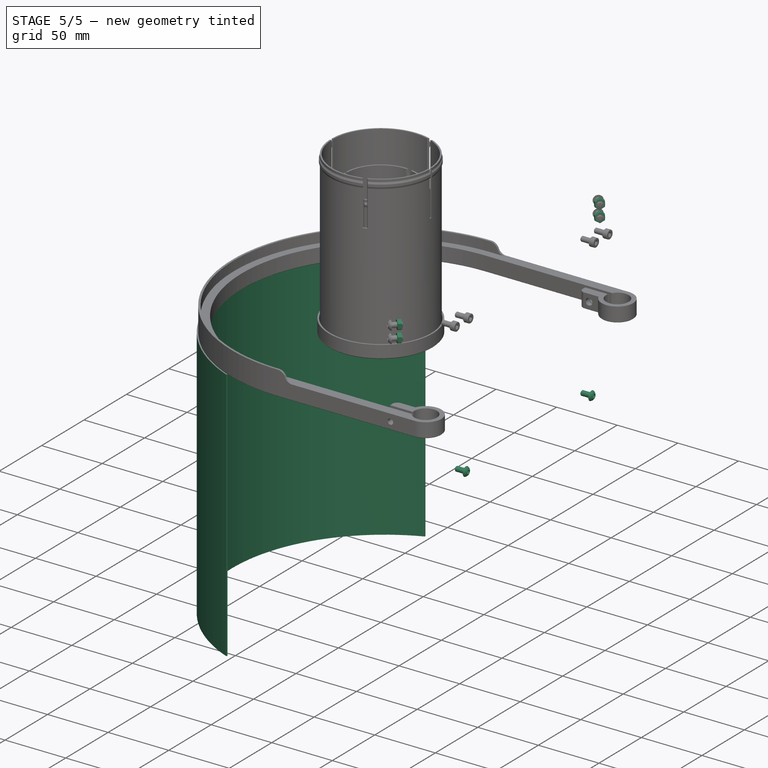
[diagram: stage 5 of 5 — iso view after this stage's code; geometry added in this stage tinted green]
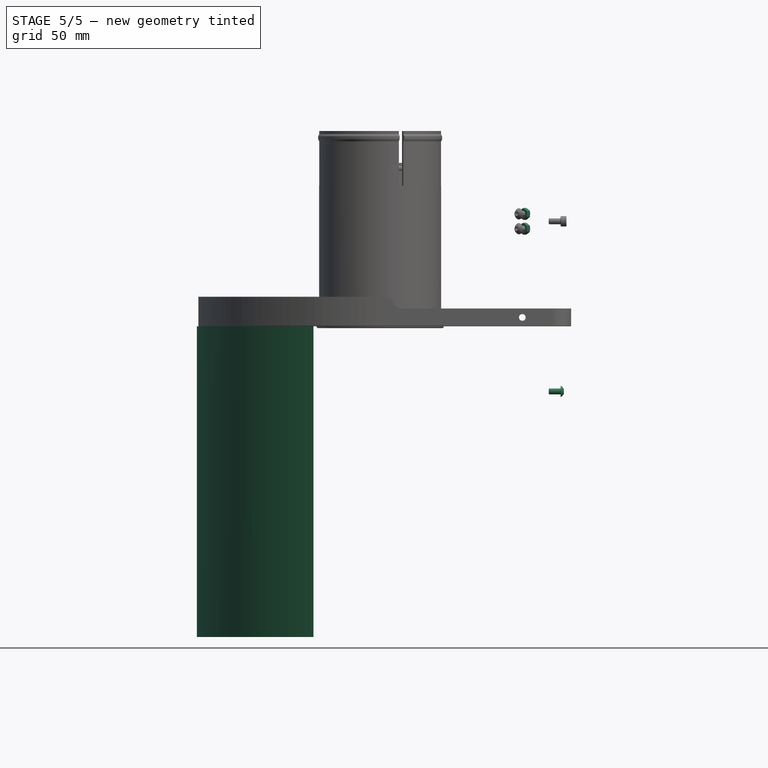
[diagram: stage 5 of 5 — front view after this stage's code; geometry added in this stage tinted green]
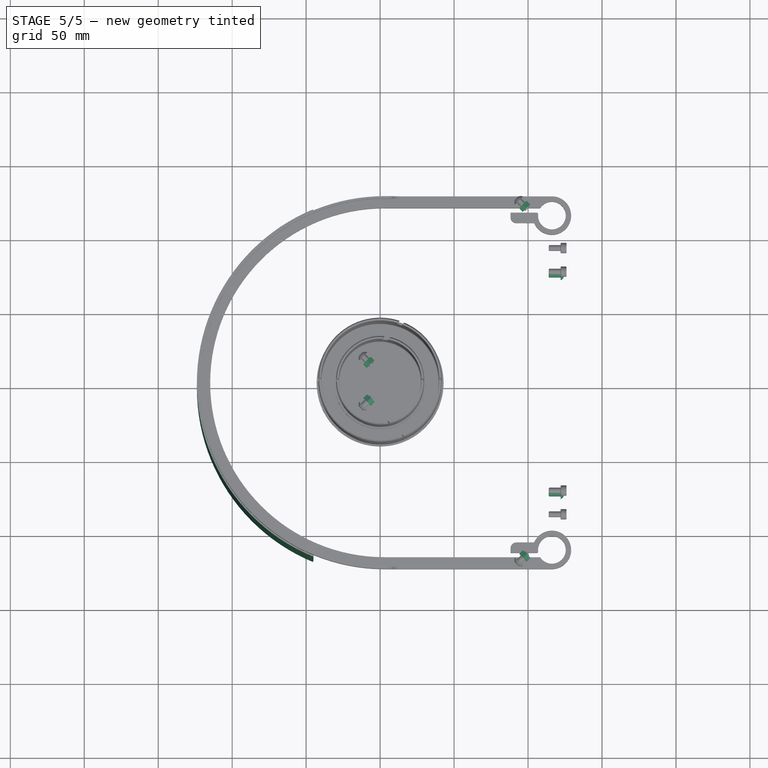
[diagram: stage 5 of 5 — top view after this stage's code; geometry added in this stage tinted green]
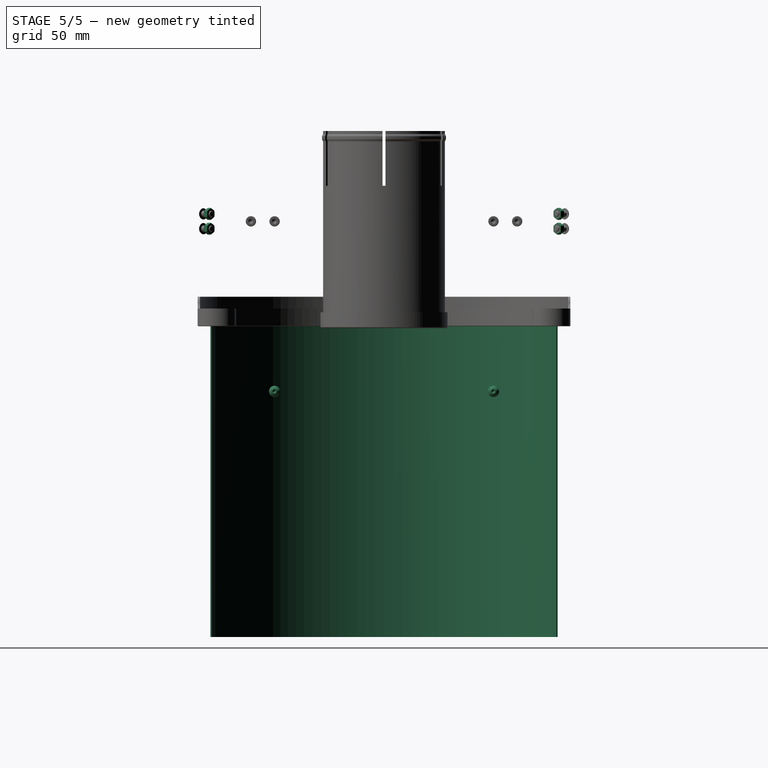
[diagram: stage 5 of 5 — right view after this stage's code; geometry added in this stage tinted green]
FEATURE [Sketcher::SketchObject] Sketch214  label="LowerClamp_SideHoles_Sketch"
  FullyConstrained = true
  MapMode = 5
  Placement = pos=(129.125,0,0) rot=(0.707107,0,0.707107;3.14159rad)
  Support = -> [DatumPlane050]
  expr: Constraints[0] = <<Common>>#<<Parameters>>.sec_sidebolt * 1.1
  expr: Constraints[2] = -<<Common>>#<<Parameters>>.sec_sidebolt_y
  expr: Constraints[3] = <<Common>>#<<Parameters>>.sec_sidebolt * 4
  expr: Constraints[7] = <<Common>>#<<Parameters>>.sec_clampheight / 2
  sketch-geometry (3):
    g0: Circle CenterX=10 CenterY=-90 CenterZ=0 NormalX=0 NormalY=0 NormalZ=1 AngleXU=0 Radius=2.2
    g1: Circle CenterX=10 CenterY=-74 CenterZ=0 NormalX=0 NormalY=0 NormalZ=1 AngleXU=0 Radius=2.2
    g2: LineSegment StartX=10 StartY=-74 StartZ=0 EndX=10 EndY=-90 EndZ=0
  constraints (8):
    c: Diameter(g1) = 4.4
    c: Equal(g1,g0)
    c: DistanceY(g0) = -90
    c: DistanceY(g0,g1) = 16
    c: Coincident(g2,g1)
    c: Coincident(g2,g0)
    c: Vertical(g2)
    c: DistanceX(g2) = 10
FEATURE [Sketcher::SketchObject] Sketch215  label="LowerClamp_PlateNut_Sketch"
  AttachmentOffset = pos=(0,0,-15) rot=(0,0,1;0rad)
  FullyConstrained = true
  MapMode = 5
  Placement = pos=(118.125,0,0) rot=(0.57735,-0.57735,-0.57735;2.0944rad)
  Support = -> [DatumPlane049]
  expr: .AttachmentOffset.Base.z = -Sketch213.Constraints.ClampSpace
  expr: Constraints[0] = -(<<Common>>#<<Parameters>>.sec_sidebolt_y - <<Common>>#<<Parameters>>.sec_sidebolt * 4)
  expr: Constraints[1] = <<Common>>#<<Parameters>>.sec_clampheight / 2
  expr: Constraints[2] = <<Common>>#<<Parameters>>.acc_M4Bore
  sketch-geometry (1):
    g0: Circle CenterX=-74 CenterY=10 CenterZ=0 NormalX=0 NormalY=0 NormalZ=1 AngleXU=0 Radius=2.8
  constraints (3):
    c: DistanceX(g0) = -74
    c: DistanceY(g0) = 10
    c: Diameter(g0) = 5.6
FEATURE [Sketcher::SketchObject] Sketch216  label="LowerClamp_ClampNut_Sketch"
  FullyConstrained = true
  MapMode = 5
  Placement = pos=(103.125,0,0) rot=(0.57735,-0.57735,-0.57735;2.0944rad)
  Support = -> [DatumPlane049]
  expr: Constraints[0] = -<<Common>>#<<Parameters>>.sec_sidebolt_y
  expr: Constraints[1] = <<Common>>#<<Parameters>>.sec_clampheight / 2
  expr: Constraints[2] = <<Common>>#<<Parameters>>.acc_M4Bore
  sketch-geometry (1):
    g0: Circle CenterX=-90 CenterY=10 CenterZ=0 NormalX=0 NormalY=0 NormalZ=1 AngleXU=0 Radius=2.8
  constraints (3):
    c: DistanceX(g0) = -90
    c: DistanceY(g0) = 10
    c: Diameter(g0) = 5.6
FEATURE [PartDesign::CoordinateSystem] Local_CS275  label="LCS_UpperClamp_PoleTop"
  AttacherType = Attacher::AttachEngine3D
  AttachmentOffset = pos=(0,0,20) rot=(0,0,1;0rad)
  MapMode = 11
  Placement = pos=(116.125,113,20) rot=(0,0,1;1.5708rad)
  Support = -> [ShapeBinder002]
  expr: .AttachmentOffset.Base.z = <<Common>>#<<Parameters>>.sec_stalkheight
FEATURE [PartDesign::CoordinateSystem] Local_CS290  label="LCS_UpperClamp_PoleBottom"
  AttacherType = Attacher::AttachEngine3D
  MapMode = 11
  Placement = pos=(116.125,113,0) rot=(0.707107,-0.707107,0;3.14159rad)
  Support = -> [ShapeBinder002]
FEATURE [PartDesign::ShapeBinder] ShapeBinder009  label="Shroud_ShapeBinder"
  Support = -> [Binder]
  TraceSupport = false
FEATURE [PartDesign::CoordinateSystem] Local_CS291  label="LCS_Shroud_FarPoleDatum"
  AttacherType = Attacher::AttachEngine3D
  MapMode = 11
  Placement = pos=(-109.875,0,0) rot=(0,0,1;1.5708rad)
  Support = -> [ShapeBinder009]
FEATURE [Sketcher::SketchObject] Sketch217  label="Shroud_Outline_Sketch"
  ExternalGeometry = -> [ShapeBinder009]
  FullyConstrained = true
  MapMode = 5
  Support = -> [XY_Plane103]
  expr: Constraints[13] = 297 / 126 * 1 rad
  sketch-geometry (6):
    g0: LineSegment StartX=3.125 StartY=0 StartZ=0 EndX=3.125 EndY=-126 EndZ=0
    g1: ArcOfCircle CenterX=3.125 CenterY=0 CenterZ=0 NormalX=0 NormalY=0 NormalZ=1 AngleXU=0 Radius=126 StartAngle=1.96302 EndAngle=4.32016
    g2: ArcOfCircle CenterX=3.125 CenterY=0 CenterZ=0 NormalX=0 NormalY=0 NormalZ=1 AngleXU=0 Radius=127 StartAngle=1.96302 EndAngle=4.32016
    g3: LineSegment StartX=-45.4202 StartY=-117.356 StartZ=0 EndX=-45.0379 EndY=-116.432 EndZ=0
    g4: LineSegment StartX=-45.4202 StartY=117.356 StartZ=0 EndX=-45.0379 EndY=116.432 EndZ=0
    g5: LineSegment StartX=-45.0379 StartY=116.432 StartZ=0 EndX=-45.0379 EndY=-116.432 EndZ=0
  constraints (18):
    c: Coincident(g0,g-5)
    c: Vertical(g0)
    c: PointOnObject(g0,g-4)
    c: Coincident(g1,g0)
    c: Coincident(g2,g1)
    c: Coincident(g3,g2)
    c: Coincident(g3,g1)
    c: Perpendicular(g1,g3)
    c: Coincident(g4,g2)
    c: Coincident(g4,g1)
    c: Perpendicular(g1,g4)
    c: Distance(g4) = 1
    c: PointOnObject(g0,g1)
    c: Angle(g4,g3) = 2.35714
    c: DistanceY(g0,g0) = 126  'OuterArc_Rad'
    c: Coincident(g5,g1)
    c: Coincident(g5,g1)
    c: Vertical(g5)
FEATURE [PartDesign::Pad] Pad058  label="Shroud_Base"
  Direction = (0,0,1)
  Length = 210
  Length2 = 10
  Profile = -> Sketch217
  Reversed = true
  Type = 0
FEATURE [PartDesign::CoordinateSystem] Local_CS  label="LCS_UpperArc_ClampNut_A"
  AttacherType = Attacher::AttachEngine3D
  MapMode = 11
  Placement = pos=(96.125,108,6) rot=(0.57735,0.57735,-0.57735;2.0944rad)
  Support = -> [Mirrored]
FEATURE [PartDesign::CoordinateSystem] Local_CS292  label="LCS_UpperArc_ClampBolt_A"
  AttacherType = Attacher::AttachEngine3D
  MapMode = 11
  Placement = pos=(96.125,126,6) rot=(0.57735,0.57735,0.57735;4.18879rad)
  Support = -> [Mirrored]
FEATURE [PartDesign::CoordinateSystem] Local_CS293  label="LCS_UpperArc_ClampNut_F"
  AttacherType = Attacher::AttachEngine3D
  MapMode = 11
  Placement = pos=(96.125,-108,6) rot=(-0.57735,-0.57735,-0.57735;2.0944rad)
  Support = -> [Mirrored]
FEATURE [PartDesign::CoordinateSystem] Local_CS294  label="LCS_UpperArc_ClampBolt_F"
  AttacherType = Attacher::AttachEngine3D
  MapMode = 11
  Placement = pos=(96.125,-126,6) rot=(0.57735,0.57735,-0.57735;2.0944rad)
  Support = -> [Mirrored]
FEATURE [PartDesign::CoordinateSystem] Local_CS295  label="LCS_UpperArc_Pole_A"
  AttacherType = Attacher::AttachEngine3D
  MapMode = 11
  Placement = pos=(116.125,113,0) rot=(0,0,1;1.5708rad)
  Support = -> [ShapeBinder]
FEATURE [PartDesign::CoordinateSystem] LCS_Origin
  AttacherType = Attacher::AttachEngine3D
  MapMode = 2
  Support = -> [X_Axis106]
FEATURE [App::DocumentObjectGroup] Constraints
FEATURE [App::FeaturePython] Variables  # WARN: FeaturePython — macro-defined, semantics opaque (R4)
  Type = App::PropertyContainer
FEATURE [App::DocumentObjectGroup] Configurations
FEATURE [App::Link] SecondaryMirrorCell
  AttachedBy = #LCS_Origin
  AttachedTo = Parent Assembly#LCS_Origin
  LinkedObject = -> <external SecondaryMirrorCell.FCStd>#Assembly
  SolverId = Asm4EE
  expr: Placement = LCS_Origin.Placement * AttachmentOffset * SecondaryMirrorCell#LCS_Origin.Placement ^ -1
FEATURE [App::Link] Focuser
  AttachedBy = #LCS_Origin
  AttachedTo = Parent Assembly#LCS_Origin
  LinkedObject = -> <external Focuser.FCStd>#Assembly
  SolverId = Asm4EE
  expr: Placement = LCS_Origin.Placement * AttachmentOffset * Focuser#LCS_Origin.Placement ^ -1
FEATURE [App::Link] UpperClamp_A
  AttachedBy = #Local_CS181
  AttachedTo = Focuser#LCS_FocuserPlate_ZA
  LinkPlacement = pos=(-3.125,2.84e-14,61) rot=(0,0,1;0rad)
  LinkedObject = -> Body022007
  Placement = pos=(-3.125,2.84e-14,61) rot=(0,0,1;0rad)
  SolverId = Asm4EE
  expr: Placement = Focuser.Placement * Focuser#LCS_FocuserPlate_ZA.Placement * AttachmentOffset * Local_CS181.Placement ^ -1
FEATURE [App::Link] SpiderVane_A
  AttachedBy = #Local_CS146
  AttachedTo = SecondaryMirrorCell#LCS_Spider_AZ
  AttachmentOffset = pos=(0,0,0) rot=(0,1,0;3.14159rad)
  LinkPlacement = pos=(-27.5772,24.4522,61) rot=(0,0,-1;4.71239rad)
  LinkedObject = -> Body011
  Placement = pos=(-27.5772,24.4522,61) rot=(0,0,-1;4.71239rad)
  SolverId = Asm4EE
  expr: Placement = SecondaryMirrorCell.Placement * SecondaryMirrorCell#LCS_Spider_AZ.Placement * AttachmentOffset * Local_CS146.Placement ^ -1
FEATURE [App::Link] LowerClamp_A
  AttachedBy = #Local_CS274
  AttachedTo = Focuser#LCS_FocuserPlate_NA
  LinkPlacement = pos=(-3.125,-2.84e-14,-54) rot=(0,0,1;0rad)
  LinkedObject = -> Body022048
  Placement = pos=(-3.125,-2.84e-14,-54) rot=(0,0,1;0rad)
  SolverId = Asm4EE
  expr: Placement = Focuser.Placement * Focuser#LCS_FocuserPlate_NA.Placement * AttachmentOffset * Local_CS274.Placement ^ -1
FEATURE [App::Link] UpperClamp_F
  AttachedBy = #Local_CS181
  AttachedTo = Focuser#LCS_FocuserPlate_ZF
  LinkPlacement = pos=(-3.125,0,81) rot=(1,0,0;3.14159rad)
  LinkedObject = -> Body022007
  Placement = pos=(-3.125,0,81) rot=(1,0,0;3.14159rad)
  SolverId = Asm4EE
  expr: Placement = Focuser.Placement * Focuser#LCS_FocuserPlate_ZF.Placement * AttachmentOffset * Local_CS181.Placement ^ -1
FEATURE [App::Link] SpiderVane_F
  AttachedBy = #Local_CS147
  AttachedTo = SecondaryMirrorCell#LCS_Spider_FZ
  AttachmentOffset = pos=(0,0,0) rot=(0,1,0;3.14159rad)
  LinkPlacement = pos=(-3.125,3.6e-15,61) rot=(0,0,1;0rad)
  LinkedObject = -> Body011
  Placement = pos=(-3.125,3.6e-15,61) rot=(0,0,1;0rad)
  SolverId = Asm4EE
  expr: Placement = SecondaryMirrorCell.Placement * SecondaryMirrorCell#LCS_Spider_FZ.Placement * AttachmentOffset * Local_CS147.Placement ^ -1
FEATURE [App::Link] LowerClamp_F
  AttachedBy = #Local_CS274
  AttachedTo = Focuser#LCS_FocuserPlate_NF
  LinkPlacement = pos=(-3.125,0,-34) rot=(1,0,0;3.14159rad)
  LinkedObject = -> Body022048
  Placement = pos=(-3.125,0,-34) rot=(1,0,0;3.14159rad)
  SolverId = Asm4EE
  expr: Placement = Focuser.Placement * Focuser#LCS_FocuserPlate_NF.Placement * AttachmentOffset * Local_CS274.Placement ^ -1
FEATURE [App::Link] UpperArc  label="UpperArc001"
  AttachedBy = #Local_CS295
  AttachedTo = UpperClamp_A#Local_CS275
  LinkPlacement = pos=(-3.125,1.42e-14,81) rot=(0,0,1;0rad)
  LinkedObject = -> Body022052
  Placement = pos=(-3.125,1.42e-14,81) rot=(0,0,1;0rad)
  SolverId = Asm4EE
  expr: Placement = UpperClamp_A.Placement * Local_CS275.Placement * AttachmentOffset * Local_CS295.Placement ^ -1
FEATURE [App::Link] Shroud  label="Shroud001"
  AttachedBy = #Local_CS291
  AttachedTo = UpperArc#Local_CS296
  AttachmentOffset = pos=(0,0,20) rot=(0,0,1;0rad)
  LinkPlacement = pos=(-3.125,1.56e-14,101) rot=(0,0,1;0rad)
  LinkedObject = -> Body022050
  Placement = pos=(-3.125,1.56e-14,101) rot=(0,0,1;0rad)
  SolverId = Asm4EE
  expr: Placement = UpperArc.Placement * Local_CS296.Placement * AttachmentOffset * Local_CS291.Placement ^ -1
FEATURE [PartDesign::CoordinateSystem] Local_CS296  label="LCS_UpperArc_FarPoleDatum"
  AttacherType = Attacher::AttachEngine3D
  MapMode = 11
  Placement = pos=(-109.875,0,0) rot=(0,0,1;1.5708rad)
  Support = -> [ShapeBinder]
FEATURE [App::Link] Insert_M4_Short
  AttachedBy = #Local_CS318
  AttachedTo = UpperClamp_A#Local_CS176
  LinkPlacement = pos=(117,90,71) rot=(0,-1,0;4.71239rad)
  LinkedObject = -> <external Common.FCStd>#Body022061
  Placement = pos=(117,90,71) rot=(0,-1,0;4.71239rad)
  SolverId = Asm4EE
  expr: Placement = UpperClamp_A.Placement * Local_CS176.Placement * AttachmentOffset * Common#Local_CS318.Placement ^ -1
FEATURE [App::Link] Insert_M4_Short_2
  AttachedBy = #Local_CS318
  AttachedTo = UpperClamp_A#Local_CS177
  LinkPlacement = pos=(117,74,71) rot=(0,-1,0;4.71239rad)
  LinkedObject = -> <external Common.FCStd>#Body022061
  Placement = pos=(117,74,71) rot=(0,-1,0;4.71239rad)
  SolverId = Asm4EE
  expr: Placement = UpperClamp_A.Placement * Local_CS177.Placement * AttachmentOffset * Common#Local_CS318.Placement ^ -1
FEATURE [App::Link] Insert_M4_Short_1
  AttachedBy = #Local_CS318
  AttachedTo = UpperClamp_F#Local_CS176
  LinkPlacement = pos=(117,-90,71) rot=(-0.707107,0,-0.707107;3.14159rad)
  LinkedObject = -> <external Common.FCStd>#Body022061
  Placement = pos=(117,-90,71) rot=(-0.707107,0,-0.707107;3.14159rad)
  SolverId = Asm4EE
  expr: Placement = UpperClamp_F.Placement * Local_CS176.Placement * AttachmentOffset * Common#Local_CS318.Placement ^ -1
FEATURE [App::Link] Insert_M4_Short_3
  AttachedBy = #Local_CS318
  AttachedTo = UpperClamp_F#Local_CS177
  LinkPlacement = pos=(117,-74,71) rot=(-0.707107,0,-0.707107;3.14159rad)
  LinkedObject = -> <external Common.FCStd>#Body022061
  Placement = pos=(117,-74,71) rot=(-0.707107,0,-0.707107;3.14159rad)
  SolverId = Asm4EE
  expr: Placement = UpperClamp_F.Placement * Local_CS177.Placement * AttachmentOffset * Common#Local_CS318.Placement ^ -1
FEATURE [App::Link] Insert_M4_Short_4
  AttachedBy = #Local_CS318
  AttachedTo = LowerClamp_A#Local_CS270
  AttachmentOffset = pos=(0,0,0) rot=(1,0,0;3.14159rad)
  LinkPlacement = pos=(119,74,-44) rot=(-0.707107,0,0.707107;3.14159rad)
  LinkedObject = -> <external Common.FCStd>#Body022061
  Placement = pos=(119,74,-44) rot=(-0.707107,0,0.707107;3.14159rad)
  SolverId = Asm4EE
  expr: Placement = LowerClamp_A.Placement * Local_CS270.Placement * AttachmentOffset * Common#Local_CS318.Placement ^ -1
FEATURE [App::Link] Insert_M4_Short_5
  AttachedBy = #Local_CS318
  AttachedTo = LowerClamp_A#Local_CS272
  AttachmentOffset = pos=(0,0,0) rot=(1,0,0;3.14159rad)
  LinkPlacement = pos=(104,90,-44) rot=(-0.707107,0,0.707107;3.14159rad)
  LinkedObject = -> <external Common.FCStd>#Body022061
  Placement = pos=(104,90,-44) rot=(-0.707107,0,0.707107;3.14159rad)
  SolverId = Asm4EE
  expr: Placement = LowerClamp_A.Placement * Local_CS272.Placement * AttachmentOffset * Common#Local_CS318.Placement ^ -1
FEATURE [App::Link] Insert_M4_Short_6
  AttachedBy = #Local_CS318
  AttachedTo = LowerClamp_F#Local_CS270
  AttachmentOffset = pos=(0,0,0) rot=(1,0,0;3.14159rad)
  LinkPlacement = pos=(119,-74,-44) rot=(0,-1,0;1.5708rad)
  LinkedObject = -> <external Common.FCStd>#Body022061
  Placement = pos=(119,-74,-44) rot=(0,-1,0;1.5708rad)
  SolverId = Asm4EE
  expr: Placement = LowerClamp_F.Placement * Local_CS270.Placement * AttachmentOffset * Common#Local_CS318.Placement ^ -1
FEATURE [App::Link] Insert_M4_Short_7
  AttachedBy = #Local_CS318
  AttachedTo = LowerClamp_F#Local_CS272
  AttachmentOffset = pos=(0,0,0) rot=(1,0,0;3.14159rad)
  LinkPlacement = pos=(104,-90,-44) rot=(0,-1,0;1.5708rad)
  LinkedObject = -> <external Common.FCStd>#Body022061
  Placement = pos=(104,-90,-44) rot=(0,-1,0;1.5708rad)
  SolverId = Asm4EE
  expr: Placement = LowerClamp_F.Placement * Local_CS272.Placement * AttachmentOffset * Common#Local_CS318.Placement ^ -1
FEATURE [App::Link] Insert_M4_Short_8
  AttachedBy = #Local_CS318
  AttachedTo = UpperArc#Local_CS
  AttachmentOffset = pos=(0,0,0) rot=(1,0,0;3.14159rad)
  LinkPlacement = pos=(93,112,87) rot=(-1,0,0;4.71239rad)
  LinkedObject = -> <external Common.FCStd>#Body022061
  Placement = pos=(93,112,87) rot=(-1,0,0;4.71239rad)
  SolverId = Asm4EE
  expr: Placement = UpperArc.Placement * Local_CS.Placement * AttachmentOffset * Common#Local_CS318.Placement ^ -1
FEATURE [App::Link] Insert_M4_Short_9
  AttachedBy = #Local_CS318
  AttachedTo = UpperArc#Local_CS293
  AttachmentOffset = pos=(0,0,0) rot=(1,0,0;3.14159rad)
  LinkPlacement = pos=(93,-112,87) rot=(1,0,0;4.71239rad)
  LinkedObject = -> <external Common.FCStd>#Body022061
  Placement = pos=(93,-112,87) rot=(1,0,0;4.71239rad)
  SolverId = Asm4EE
  expr: Placement = UpperArc.Placement * Local_CS293.Placement * AttachmentOffset * Common#Local_CS318.Placement ^ -1
FEATURE [Part::FeaturePython] Nut  label="M4-Nut"  # Fasteners workbench fastener (typed FeaturePython)
  AttachedBy = Origin
  AttachedTo = SpiderVane_A#Local_CS150
  AttachmentOffset = pos=(0,0,3) rot=(0,0,1;1.5708rad)
  Placement = pos=(96.6551,119.282,76) rot=(-0.357407,-0.862856,0.357407;4.56541rad)
  SolverId = Asm4EE
  diameter = 6
  invert = false
  leftHanded = false
  matchOuter = false
  offset = 0
  thread = false
  type = 22
  expr: Placement = SpiderVane_A.Placement * Local_CS150.Placement * AttachmentOffset
FEATURE [Part::FeaturePython] Nut001  label="M4-Nut104"  # Fasteners workbench fastener (typed FeaturePython)
  AttachedBy = Origin
  AttachedTo = SpiderVane_A#Local_CS152
  AttachmentOffset = pos=(0,0,3) rot=(0,0,1;1.5708rad)
  Placement = pos=(96.6551,119.282,66) rot=(-0.357407,-0.862856,0.357407;4.56541rad)
  SolverId = Asm4EE
  diameter = 6
  invert = false
  leftHanded = false
  matchOuter = false
  offset = 0
  thread = false
  type = 22
  expr: Placement = SpiderVane_A.Placement * Local_CS152.Placement * AttachmentOffset
FEATURE [Part::FeaturePython] Nut002  label="M4-Nut105"  # Fasteners workbench fastener (typed FeaturePython)
  AttachedBy = Origin
  AttachedTo = SpiderVane_A#Local_CS146
  AttachmentOffset = pos=(0,0,3) rot=(0,0,1;1.5708rad)
  Placement = pos=(-8.72779,13.8996,76) rot=(-0.357407,-0.862856,0.357407;4.56541rad)
  SolverId = Asm4EE
  diameter = 6
  invert = false
  leftHanded = false
  matchOuter = false
  offset = 0
  thread = false
  type = 22
  expr: Placement = SpiderVane_A.Placement * Local_CS146.Placement * AttachmentOffset
FEATURE [Part::FeaturePython] Nut003  label="M4-Nut106"  # Fasteners workbench fastener (typed FeaturePython)
  AttachedBy = Origin
  AttachedTo = SpiderVane_A#Local_CS148
  AttachmentOffset = pos=(0,0,3) rot=(0,0,1;1.5708rad)
  Placement = pos=(-8.72779,13.8996,66) rot=(-0.357407,-0.862856,0.357407;4.56541rad)
  SolverId = Asm4EE
  diameter = 6
  invert = false
  leftHanded = false
  matchOuter = false
  offset = 0
  thread = false
  type = 22
  expr: Placement = SpiderVane_A.Placement * Local_CS148.Placement * AttachmentOffset
FEATURE [Part::FeaturePython] Nut004  label="M4-Nut107"  # Fasteners workbench fastener (typed FeaturePython)
  AttachedBy = Origin
  AttachedTo = SpiderVane_F#Local_CS151
  AttachmentOffset = pos=(0,0,3) rot=(0,0,1;1.5708rad)
  Placement = pos=(96.6551,-119.282,76) rot=(0.357407,-0.862856,-0.357407;4.56541rad)
  SolverId = Asm4EE
  diameter = 6
  invert = false
  leftHanded = false
  matchOuter = false
  offset = 0
  thread = false
  type = 22
  expr: Placement = SpiderVane_F.Placement * Local_CS151.Placement * AttachmentOffset
FEATURE [Part::FeaturePython] Nut005  label="M4-Nut108"  # Fasteners workbench fastener (typed FeaturePython)
  AttachedBy = Origin
  AttachedTo = SpiderVane_F#Local_CS153
  AttachmentOffset = pos=(0,0,3) rot=(0,0,1;1.5708rad)
  Placement = pos=(96.6551,-119.282,66) rot=(0.357407,-0.862856,-0.357407;4.56541rad)
  SolverId = Asm4EE
  diameter = 6
  invert = false
  leftHanded = false
  matchOuter = false
  offset = 0
  thread = false
  type = 22
  expr: Placement = SpiderVane_F.Placement * Local_CS153.Placement * AttachmentOffset
FEATURE [Part::FeaturePython] Nut006  label="M4-Nut109"  # Fasteners workbench fastener (typed FeaturePython)
  AttachedBy = Origin
  AttachedTo = SpiderVane_F#Local_CS147
  AttachmentOffset = pos=(0,0,3) rot=(0,0,1;1.5708rad)
  Placement = pos=(-8.72779,-13.8996,76) rot=(0.357407,-0.862856,-0.357407;4.56541rad)
  SolverId = Asm4EE
  diameter = 6
  invert = false
  leftHanded = false
  matchOuter = false
  offset = 0
  thread = false
  type = 22
  expr: Placement = SpiderVane_F.Placement * Local_CS147.Placement * AttachmentOffset
FEATURE [Part::FeaturePython] Nut007  label="M4-Nut110"  # Fasteners workbench fastener (typed FeaturePython)
  AttachedBy = Origin
  AttachedTo = SpiderVane_F#Local_CS149
  AttachmentOffset = pos=(0,0,3) rot=(0,0,1;1.5708rad)
  Placement = pos=(-8.72779,-13.8996,66) rot=(0.357407,-0.862856,-0.357407;4.56541rad)
  SolverId = Asm4EE
  diameter = 6
  invert = false
  leftHanded = false
  matchOuter = false
  offset = 0
  thread = false
  type = 22
  expr: Placement = SpiderVane_F.Placement * Local_CS149.Placement * AttachmentOffset
FEATURE [Part::FeaturePython] Screw  label="M4x8-Screw"  # Fasteners workbench fastener (typed FeaturePython)
  AttachedBy = Origin
  AttachedTo = LowerClamp_A#Local_CS271
  Placement = pos=(122,74,-44) rot=(0.57735,-0.57735,0.57735;4.18879rad)
  SolverId = Asm4EE
  diameter = 2
  invert = false
  leftHanded = false
  length = 1
  lengthCustom = 8
  matchOuter = false
  offset = 0
  thread = false
  type = 51
  expr: Placement = LowerClamp_A.Placement * Local_CS271.Placement * AttachmentOffset
FEATURE [Part::FeaturePython] Screw001  label="M4x8-Screw199"  # Fasteners workbench fastener (typed FeaturePython)
  AttachedBy = Origin
  AttachedTo = LowerClamp_F#Local_CS271
  Placement = pos=(122,-74,-44) rot=(-0.57735,-0.57735,-0.57735;4.18879rad)
  SolverId = Asm4EE
  diameter = 2
  invert = false
  leftHanded = false
  length = 1
  lengthCustom = 8
  matchOuter = false
  offset = 0
  thread = false
  type = 51
  expr: Placement = LowerClamp_F.Placement * Local_CS271.Placement * AttachmentOffset
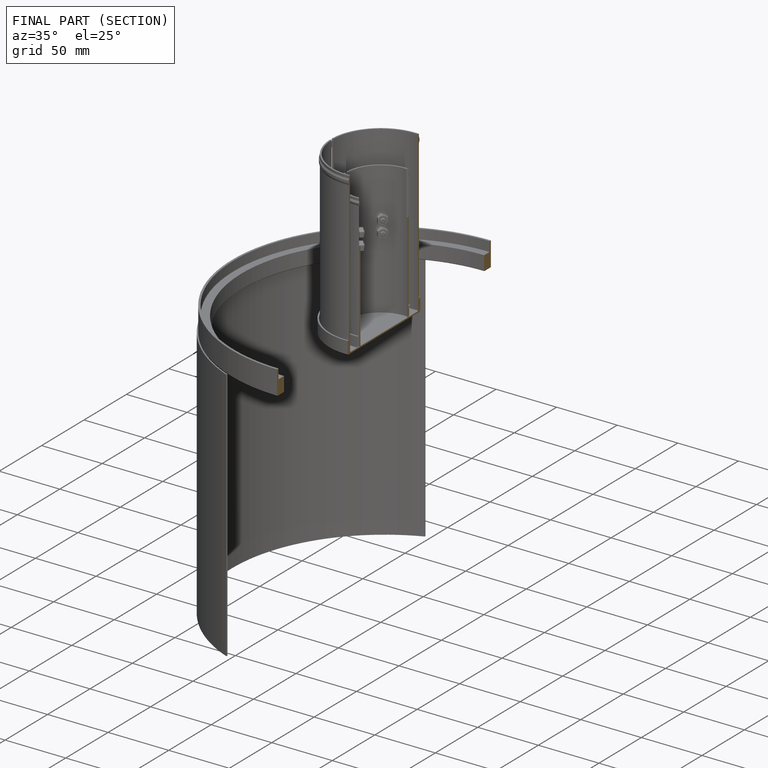
[diagram: finished part — half-section view (interior)]
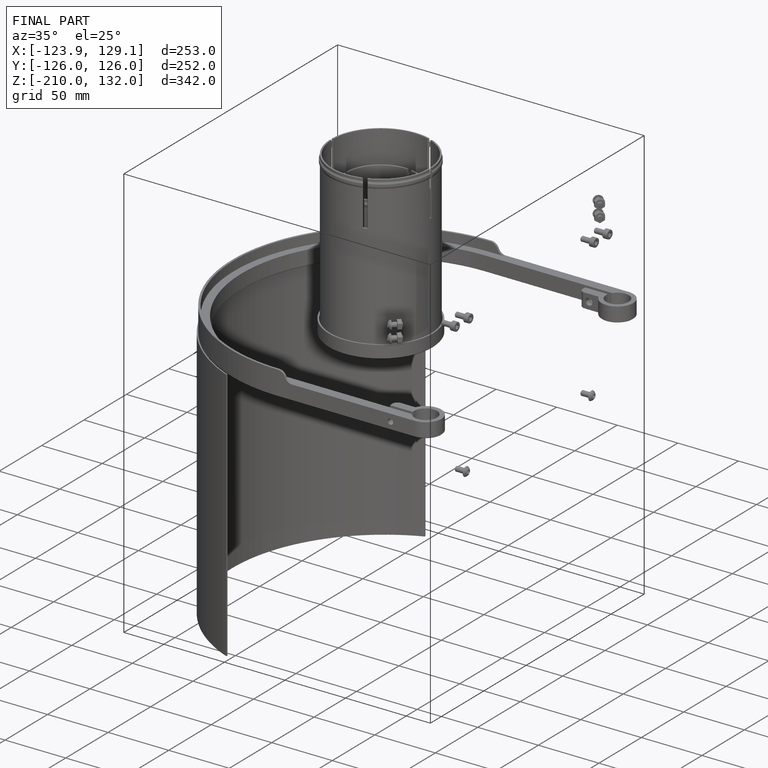
[diagram: finished part — iso view with bounding-box wireframe]
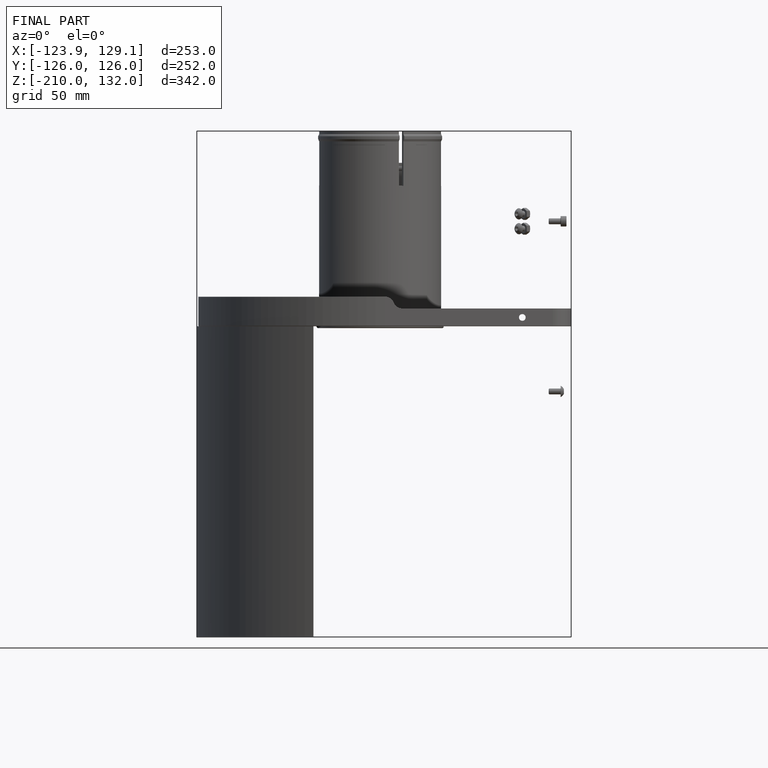
[diagram: finished part — front view with bounding-box wireframe]
